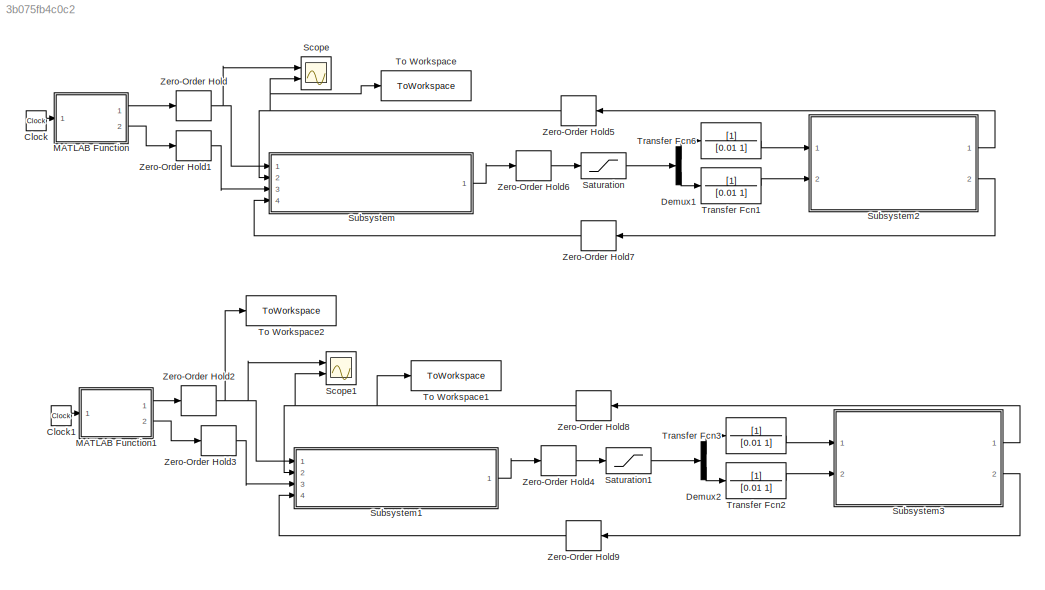
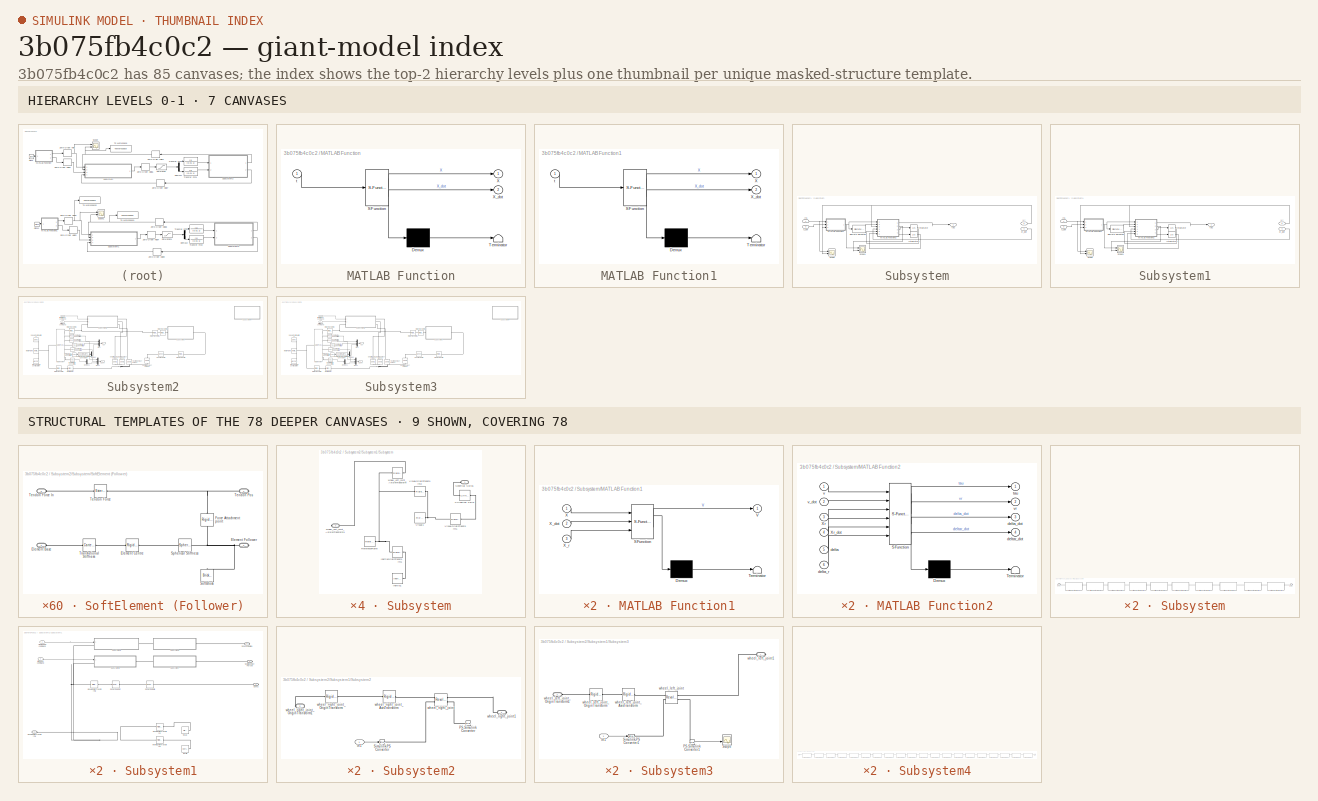
[diagram: thumbnail index - top-2 hierarchy levels (7 canvases) + 9 structural-template representatives of the remaining 78 canvases]
MODEL slx_3b075fb4c0c2
KIND model
CONFIG AbsTol = auto
CONFIG EnableMultiTasking = off
CONFIG FixedStep = 0.001
CONFIG MaxStep = auto
CONFIG MinStep = auto
CONFIG RelTol = 1e-3
CONFIG SampleTimeConstraint = Unconstrained
CONFIG SolverName = VariableStepAuto
CONFIG StartTime = 0.0
CONFIG StopTime = 50
BLOCK [Clock] Clock
BLOCK [Clock] Clock1
BLOCK [Demux] Demux1
  Outputs = 2
  Ports = [1, 2]
BLOCK [Demux] Demux2
  Outputs = 2
  Ports = [1, 2]
BLOCK [SubSystem] MATLAB Function
  ErrorFcn = Stateflow.Translate.translate
  PermitHierarchicalResolution = ExplicitOnly
  Ports = [1, 2]
  RequestExecContextInheritance = off
  SFBlockType = MATLAB Function
  TreatAsAtomicUnit = on
BLOCK [Demux] MATLAB Function/ Demux 
  Outputs = 1
  Ports = [1, 1]
BLOCK [S-Function] MATLAB Function/ SFunction 
  EnableBusSupport = on
  FunctionName = sf_sfun
  PortCounts = [1 3]
  Ports = [1, 3]
  SFcnIsStateOwnerBlock = off
  SFunctionDeploymentMode = off
  Tag = Stateflow S-Function 2
BLOCK [Terminator] MATLAB Function/ Terminator 
BLOCK [Outport] MATLAB Function/X
BLOCK [Outport] MATLAB Function/X_dot
  Port = 2
BLOCK [Inport] MATLAB Function/t
BLOCK [SubSystem] MATLAB Function1
  ErrorFcn = Stateflow.Translate.translate
  PermitHierarchicalResolution = ExplicitOnly
  Ports = [1, 2]
  RequestExecContextInheritance = off
  SFBlockType = MATLAB Function
  TreatAsAtomicUnit = on
BLOCK [Demux] MATLAB Function1/ Demux 
  Outputs = 1
  Ports = [1, 1]
BLOCK [S-Function] MATLAB Function1/ SFunction 
  EnableBusSupport = on
  FunctionName = sf_sfun
  PortCounts = [1 3]
  Ports = [1, 3]
  SFcnIsStateOwnerBlock = off
  SFunctionDeploymentMode = off
  Tag = Stateflow S-Function 4
BLOCK [Terminator] MATLAB Function1/ Terminator 
BLOCK [Outport] MATLAB Function1/X
BLOCK [Outport] MATLAB Function1/X_dot
  Port = 2
BLOCK [Inport] MATLAB Function1/t
BLOCK [Saturate] Saturation
  LowerLimit = -4.8
  UpperLimit = 4.8
BLOCK [Saturate] Saturation1
  LowerLimit = -4.8
  UpperLimit = 4.8
BLOCK [Scope] Scope
  Floating = off
  NumInputPorts = 2
  Ports = [2]
  ScopeSpecificationString = Simulink.scopes.TimeScopeBlockCfg('CurrentConfiguration', extmgr.ConfigurationSet(extmgr.Configuration('Core','General UI',true),extmgr.Configuration('Core','Source UI',true),extmgr.Configuration('Sources','WiredSimulink',true,'DataLoggingVariableName','ScopeData1'),extmgr.Configuration('Visuals','Time Domain',true,'SerializedDisplays',{struct('MinYLimReal','-0.37916','MaxYLimReal','3.41185','YLab...<+1670ch>
BLOCK [Scope] Scope1
  Floating = off
  NumInputPorts = 2
  Ports = [2]
  ScopeSpecificationString = Simulink.scopes.TimeScopeBlockCfg('CurrentConfiguration', extmgr.ConfigurationSet(extmgr.Configuration('Core','General UI',true),extmgr.Configuration('Core','Source UI',true),extmgr.Configuration('Sources','WiredSimulink',true,'DataLoggingVariableName','ScopeData2'),extmgr.Configuration('Visuals','Time Domain',true,'SerializedDisplays',{struct('MinYLimReal','-0.3747','MaxYLimReal','3.37186','YLabe...<+1657ch>
BLOCK [SubSystem] Subsystem
  Ports = [4, 1]
  RequestExecContextInheritance = off
BLOCK [Reference] Subsystem/Discrete Derivative  REF=simulink/Discrete/Discrete Derivative
  NameLocation = right
  Ports = [1, 1]
  SourceBlock = simulink/Discrete/Discrete Derivative
  SourceProductBaseCode = SL
  SourceType = Discrete Derivative
BLOCK [Inport] Subsystem/In1
BLOCK [Integrator] Subsystem/Integrator
  InitialCondition = zeros(2,2)
  Ports = [1, 1]
BLOCK [Integrator] Subsystem/Integrator1
  InitialCondition = zeros(2,2)
  Ports = [1, 1]
BLOCK [SubSystem] Subsystem/MATLAB Function1
  ErrorFcn = Stateflow.Translate.translate
  PermitHierarchicalResolution = ExplicitOnly
  Ports = [3, 1]
  RequestExecContextInheritance = off
  SFBlockType = MATLAB Function
  TreatAsAtomicUnit = on
BLOCK [Demux] Subsystem/MATLAB Function1/ Demux 
  Outputs = 1
  Ports = [1, 1]
BLOCK [S-Function] Subsystem/MATLAB Function1/ SFunction 
  EnableBusSupport = on
  FunctionName = sf_sfun
  PortCounts = [3 2]
  Ports = [3, 2]
  SFcnIsStateOwnerBlock = off
  SFunctionDeploymentMode = off
  Tag = Stateflow S-Function 1
BLOCK [Terminator] Subsystem/MATLAB Function1/ Terminator 
BLOCK [Outport] Subsystem/MATLAB Function1/V
BLOCK [Inport] Subsystem/MATLAB Function1/X
BLOCK [Inport] Subsystem/MATLAB Function1/X_dot
  Port = 2
BLOCK [Inport] Subsystem/MATLAB Function1/X_r
  Port = 3
BLOCK [SubSystem] Subsystem/MATLAB Function2
  ErrorFcn = Stateflow.Translate.translate
  PermitHierarchicalResolution = ExplicitOnly
  Ports = [6, 4]
  RequestExecContextInheritance = off
  SFBlockType = MATLAB Function
  TreatAsAtomicUnit = on
BLOCK [Demux] Subsystem/MATLAB Function2/ Demux 
  Outputs = 1
  Ports = [1, 1]
BLOCK [S-Function] Subsystem/MATLAB Function2/ SFunction 
  EnableBusSupport = on
  FunctionName = sf_sfun
  PortCounts = [6 5]
  Ports = [6, 5]
  SFcnIsStateOwnerBlock = off
  SFunctionDeploymentMode = off
  Tag = Stateflow S-Function 3
BLOCK [Terminator] Subsystem/MATLAB Function2/ Terminator 
BLOCK [Inport] Subsystem/MATLAB Function2/Xr
  Port = 3
BLOCK [Inport] Subsystem/MATLAB Function2/Xr_dot
  Port = 4
BLOCK [Inport] Subsystem/MATLAB Function2/delta
  Port = 5
BLOCK [Outport] Subsystem/MATLAB Function2/delta_dot
  Port = 3
BLOCK [Inport] Subsystem/MATLAB Function2/delta_r
  Port = 6
BLOCK [Outport] Subsystem/MATLAB Function2/deltar_dot
  Port = 4
BLOCK [Outport] Subsystem/MATLAB Function2/tau
BLOCK [Inport] Subsystem/MATLAB Function2/v
BLOCK [Inport] Subsystem/MATLAB Function2/v_dot
  Port = 2
BLOCK [Outport] Subsystem/MATLAB Function2/vr
  Port = 2
BLOCK [Scope] Subsystem/Scope
  Floating = off
  NumInputPorts = 2
  Ports = [2]
  ScopeSpecificationString = Simulink.scopes.TimeScopeBlockCfg('CurrentConfiguration', extmgr.ConfigurationSet(extmgr.Configuration('Core','General UI',true),extmgr.Configuration('Core','Source UI',true),extmgr.Configuration('Sources','WiredSimulink',true),extmgr.Configuration('Visuals','Time Domain',true,'SerializedDisplays',{struct('MinYLimReal','-0.43781','MaxYLimReal','3.65999','YLabelReal','','MinYLimMag','0.00000','MaxY...<+1568ch>
BLOCK [Scope] Subsystem/Scope1
  Floating = off
  NumInputPorts = 2
  Ports = [2]
  ScopeSpecificationString = Simulink.scopes.TimeScopeBlockCfg('CurrentConfiguration', extmgr.ConfigurationSet(extmgr.Configuration('Core','General UI',true),extmgr.Configuration('Core','Source UI',true),extmgr.Configuration('Sources','WiredSimulink',true,'DataLoggingVariableName','ScopeData1'),extmgr.Configuration('Visuals','Time Domain',true,'SerializedDisplays',{struct('MinYLimReal','-0.21859','MaxYLimReal','1.87163','YLab...<+1684ch>
BLOCK [Inport] Subsystem/X_dot
  Port = 3
BLOCK [Inport] Subsystem/X_r
  Port = 2
BLOCK [Inport] Subsystem/Xr_dot
  Port = 4
BLOCK [Outport] Subsystem/tau
BLOCK [SubSystem] Subsystem1
  Ports = [4, 1]
  RequestExecContextInheritance = off
BLOCK [Reference] Subsystem1/Discrete Derivative  REF=simulink/Discrete/Discrete Derivative
  NameLocation = right
  Ports = [1, 1]
  SourceBlock = simulink/Discrete/Discrete Derivative
  SourceProductBaseCode = SL
  SourceType = Discrete Derivative
BLOCK [Inport] Subsystem1/In1
BLOCK [Integrator] Subsystem1/Integrator
  InitialCondition = zeros(2,2)
  Ports = [1, 1]
BLOCK [Integrator] Subsystem1/Integrator1
  InitialCondition = zeros(2,2)
  Ports = [1, 1]
BLOCK [SubSystem] Subsystem1/MATLAB Function1
  ErrorFcn = Stateflow.Translate.translate
  PermitHierarchicalResolution = ExplicitOnly
  Ports = [3, 1]
  RequestExecContextInheritance = off
  SFBlockType = MATLAB Function
  TreatAsAtomicUnit = on
BLOCK [Demux] Subsystem1/MATLAB Function1/ Demux 
  Outputs = 1
  Ports = [1, 1]
BLOCK [S-Function] Subsystem1/MATLAB Function1/ SFunction 
  EnableBusSupport = on
  FunctionName = sf_sfun
  PortCounts = [3 2]
  Ports = [3, 2]
  SFcnIsStateOwnerBlock = off
  SFunctionDeploymentMode = off
  Tag = Stateflow S-Function 5
BLOCK [Terminator] Subsystem1/MATLAB Function1/ Terminator 
BLOCK [Outport] Subsystem1/MATLAB Function1/V
BLOCK [Inport] Subsystem1/MATLAB Function1/X
BLOCK [Inport] Subsystem1/MATLAB Function1/X_dot
  Port = 2
BLOCK [Inport] Subsystem1/MATLAB Function1/X_r
  Port = 3
BLOCK [SubSystem] Subsystem1/MATLAB Function2
  ErrorFcn = Stateflow.Translate.translate
  PermitHierarchicalResolution = ExplicitOnly
  Ports = [6, 4]
  RequestExecContextInheritance = off
  SFBlockType = MATLAB Function
  TreatAsAtomicUnit = on
BLOCK [Demux] Subsystem1/MATLAB Function2/ Demux 
  Outputs = 1
  Ports = [1, 1]
BLOCK [S-Function] Subsystem1/MATLAB Function2/ SFunction 
  EnableBusSupport = on
  FunctionName = sf_sfun
  PortCounts = [6 5]
  Ports = [6, 5]
  SFcnIsStateOwnerBlock = off
  SFunctionDeploymentMode = off
  Tag = Stateflow S-Function 6
BLOCK [Terminator] Subsystem1/MATLAB Function2/ Terminator 
BLOCK [Inport] Subsystem1/MATLAB Function2/Xr
  Port = 3
BLOCK [Inport] Subsystem1/MATLAB Function2/Xr_dot
  Port = 4
BLOCK [Inport] Subsystem1/MATLAB Function2/delta
  Port = 5
BLOCK [Outport] Subsystem1/MATLAB Function2/delta_dot
  Port = 3
BLOCK [Inport] Subsystem1/MATLAB Function2/delta_r
  Port = 6
BLOCK [Outport] Subsystem1/MATLAB Function2/deltar_dot
  Port = 4
BLOCK [Outport] Subsystem1/MATLAB Function2/tau
BLOCK [Inport] Subsystem1/MATLAB Function2/v
BLOCK [Inport] Subsystem1/MATLAB Function2/v_dot
  Port = 2
BLOCK [Outport] Subsystem1/MATLAB Function2/vr
  Port = 2
BLOCK [Scope] Subsystem1/Scope
  Floating = off
  NumInputPorts = 2
  Ports = [2]
  ScopeSpecificationString = Simulink.scopes.TimeScopeBlockCfg('CurrentConfiguration', extmgr.ConfigurationSet(extmgr.Configuration('Core','General UI',true),extmgr.Configuration('Core','Source UI',true),extmgr.Configuration('Sources','WiredSimulink',true),extmgr.Configuration('Visuals','Time Domain',true,'SerializedDisplays',{struct('MinYLimReal','-0.43781','MaxYLimReal','3.65999','YLabelReal','','MinYLimMag','0.00000','MaxY...<+1568ch>
BLOCK [Scope] Subsystem1/Scope1
  Floating = off
  NumInputPorts = 2
  Ports = [2]
  ScopeSpecificationString = Simulink.scopes.TimeScopeBlockCfg('CurrentConfiguration', extmgr.ConfigurationSet(extmgr.Configuration('Core','General UI',true),extmgr.Configuration('Core','Source UI',true),extmgr.Configuration('Sources','WiredSimulink',true,'DataLoggingVariableName','ScopeData1'),extmgr.Configuration('Visuals','Time Domain',true,'SerializedDisplays',{struct('MinYLimReal','-1.16225','MaxYLimReal','1.51886','YLab...<+1684ch>
BLOCK [Inport] Subsystem1/X_dot
  Port = 3
BLOCK [Inport] Subsystem1/X_r
  Port = 2
BLOCK [Inport] Subsystem1/Xr_dot
  Port = 4
BLOCK [Outport] Subsystem1/tau
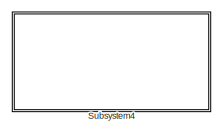
[diagram: Subsystem2 - part 1/2, top right region]
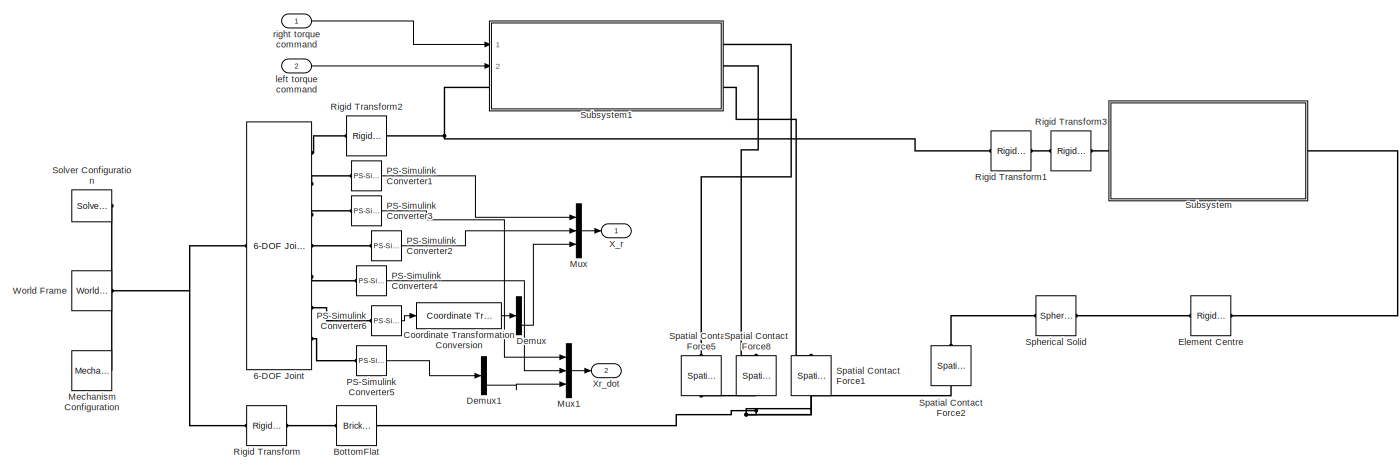
[diagram: Subsystem2 - part 2/2, most of the canvas]
BLOCK [SubSystem] Subsystem2
  Ports = [2, 2]
  RequestExecContextInheritance = off
BLOCK [Reference] Subsystem2/6-DOF Joint  REF=sm_lib/Joints/6-DOF Joint
  NameLocation = top
  Ports = [0, 0, 0, 0, 0, 1, 7]
  SourceBlock = sm_lib/Joints/6-DOF Joint
  SourceProductBaseCode = MS
  SourceType = 6-DOF Joint
BLOCK [Reference] Subsystem2/BottomFlat  REF=sm_lib/Body Elements/Brick Solid
  Ports = [0, 0, 0, 0, 0, 1, 1]
  SourceBlock = sm_lib/Body Elements/Brick Solid
  SourceProductBaseCode = MS
  SourceType = Brick Solid
BLOCK [Reference] Subsystem2/Coordinate Transformation Conversion  REF=robotcorelib/Coordinate Transformation Conversion
  Ports = [1, 1]
  SourceBlock = robotcorelib/Coordinate Transformation Conversion
  SourceProductBaseCode = NV,RO,RR,UV
  SourceType = robotics.slcore.internal.block.CoordinateTransformationConversion
BLOCK [Demux] Subsystem2/Demux
  Outputs = 3
  Ports = [1, 3]
BLOCK [Demux] Subsystem2/Demux1
  Outputs = 3
  Ports = [1, 3]
BLOCK [Reference] Subsystem2/Element Centre  REF=sm_lib/Frames and
Transforms/Rigid
Transform
  Ports = [0, 0, 0, 0, 0, 1, 1]
  SourceBlock = sm_lib/Frames and\nTransforms/Rigid\nTransform
  SourceProductBaseCode = MS
  SourceType = Rigid\nTransform
BLOCK [Reference] Subsystem2/Mechanism Configuration  REF=sm_lib/Utilities/Mechanism
Configuration
  Ports = [0, 0, 0, 0, 0, 0, 1]
  SourceBlock = sm_lib/Utilities/Mechanism\nConfiguration
  SourceProductBaseCode = MS
  SourceType = Mechanism\nConfiguration
BLOCK [Mux] Subsystem2/Mux
  DisplayOption = bar
  Inputs = 3
  Ports = [3, 1]
BLOCK [Mux] Subsystem2/Mux1
  DisplayOption = bar
  Inputs = 3
  Ports = [3, 1]
BLOCK [Reference] Subsystem2/PS-Simulink Converter1  REF=nesl_utility/PS-Simulink
Converter
  Ports = [0, 1, 0, 0, 0, 1]
  SourceBlock = nesl_utility/PS-Simulink\nConverter
  SourceProductBaseCode = PW,SS
  SourceType = PS-Simulink\nConverter
BLOCK [Reference] Subsystem2/PS-Simulink Converter2  REF=nesl_utility/PS-Simulink
Converter
  Ports = [0, 1, 0, 0, 0, 1]
  SourceBlock = nesl_utility/PS-Simulink\nConverter
  SourceProductBaseCode = PW,SS
  SourceType = PS-Simulink\nConverter
BLOCK [Reference] Subsystem2/PS-Simulink Converter3  REF=nesl_utility/PS-Simulink
Converter
  Ports = [0, 1, 0, 0, 0, 1]
  SourceBlock = nesl_utility/PS-Simulink\nConverter
  SourceProductBaseCode = PW,SS
  SourceType = PS-Simulink\nConverter
BLOCK [Reference] Subsystem2/PS-Simulink Converter4  REF=nesl_utility/PS-Simulink
Converter
  Ports = [0, 1, 0, 0, 0, 1]
  SourceBlock = nesl_utility/PS-Simulink\nConverter
  SourceProductBaseCode = PW,SS
  SourceType = PS-Simulink\nConverter
BLOCK [Reference] Subsystem2/PS-Simulink Converter5  REF=nesl_utility/PS-Simulink
Converter
  Ports = [0, 1, 0, 0, 0, 1]
  SourceBlock = nesl_utility/PS-Simulink\nConverter
  SourceProductBaseCode = PW,SS
  SourceType = PS-Simulink\nConverter
BLOCK [Reference] Subsystem2/PS-Simulink Converter6  REF=nesl_utility/PS-Simulink
Converter
  Ports = [0, 1, 0, 0, 0, 1]
  SourceBlock = nesl_utility/PS-Simulink\nConverter
  SourceProductBaseCode = PW,SS
  SourceType = PS-Simulink\nConverter
BLOCK [Reference] Subsystem2/Rigid Transform  REF=sm_lib/Frames and
Transforms/Rigid
Transform
  Ports = [0, 0, 0, 0, 0, 1, 1]
  SourceBlock = sm_lib/Frames and\nTransforms/Rigid\nTransform
  SourceProductBaseCode = MS
  SourceType = Rigid\nTransform
BLOCK [Reference] Subsystem2/Rigid Transform1  REF=sm_lib/Frames and
Transforms/Rigid
Transform
  Ports = [0, 0, 0, 0, 0, 1, 1]
  SourceBlock = sm_lib/Frames and\nTransforms/Rigid\nTransform
  SourceProductBaseCode = MS
  SourceType = Rigid\nTransform
BLOCK [Reference] Subsystem2/Rigid Transform2  REF=sm_lib/Frames and
Transforms/Rigid
Transform
  Ports = [0, 0, 0, 0, 0, 1, 1]
  SourceBlock = sm_lib/Frames and\nTransforms/Rigid\nTransform
  SourceProductBaseCode = MS
  SourceType = Rigid\nTransform
BLOCK [Reference] Subsystem2/Rigid Transform3  REF=sm_lib/Frames and
Transforms/Rigid
Transform
  Ports = [0, 0, 0, 0, 0, 1, 1]
  SourceBlock = sm_lib/Frames and\nTransforms/Rigid\nTransform
  SourceProductBaseCode = MS
  SourceType = Rigid\nTransform
BLOCK [Reference] Subsystem2/Solver Configuration  REF=nesl_utility/Solver
Configuration
  Ports = [0, 0, 0, 0, 0, 0, 1]
  SourceBlock = nesl_utility/Solver\nConfiguration
  SourceProductBaseCode = PW,SS
  SourceType = Solver\nConfiguration
BLOCK [Reference] Subsystem2/Spatial Contact Force1  REF=sm_lib/Forces and
Torques/Spatial
Contact Force
  NameLocation = right
  Ports = [0, 0, 0, 0, 0, 1, 1]
  SourceBlock = sm_lib/Forces and\nTorques/Spatial\nContact Force
  SourceProductBaseCode = MS
  SourceType = Spatial\nContact Force
BLOCK [Reference] Subsystem2/Spatial Contact Force2  REF=sm_lib/Forces and
Torques/Spatial
Contact Force
  NameLocation = right
  Ports = [0, 0, 0, 0, 0, 1, 1]
  SourceBlock = sm_lib/Forces and\nTorques/Spatial\nContact Force
  SourceProductBaseCode = MS
  SourceType = Spatial\nContact Force
BLOCK [Reference] Subsystem2/Spatial Contact Force5  REF=sm_lib/Forces and
Torques/Spatial
Contact Force
  NameLocation = right
  Ports = [0, 0, 0, 0, 0, 1, 1]
  SourceBlock = sm_lib/Forces and\nTorques/Spatial\nContact Force
  SourceProductBaseCode = MS
  SourceType = Spatial\nContact Force
BLOCK [Reference] Subsystem2/Spatial Contact Force8  REF=sm_lib/Forces and
Torques/Spatial
Contact Force
  NameLocation = right
  Ports = [0, 0, 0, 0, 0, 1, 1]
  SourceBlock = sm_lib/Forces and\nTorques/Spatial\nContact Force
  SourceProductBaseCode = MS
  SourceType = Spatial\nContact Force
BLOCK [Reference] Subsystem2/Spherical Solid  REF=sm_lib/Body Elements/Spherical Solid
  Ports = [0, 0, 0, 0, 0, 1, 1]
  SourceBlock = sm_lib/Body Elements/Spherical Solid
  SourceProductBaseCode = MS
  SourceType = Spherical Solid
BLOCK [SubSystem] Subsystem2/Subsystem
  Ports = [0, 0, 0, 0, 0, 1, 1]
  RequestExecContextInheritance = off
BLOCK [PMIOPort] Subsystem2/Subsystem/Body
  Side = Left
BLOCK [SubSystem] Subsystem2/Subsystem/SoftElement (Follower)
  Ports = [0, 0, 0, 0, 0, 2, 2]
  RequestExecContextInheritance = off
BLOCK [PMIOPort] Subsystem2/Subsystem/SoftElement (Follower)/Element Base
  Side = Left
BLOCK [Reference] Subsystem2/Subsystem/SoftElement (Follower)/Element Centre  REF=sm_lib/Frames and
Transforms/Rigid
Transform
  Ports = [0, 0, 0, 0, 0, 1, 1]
  SourceBlock = sm_lib/Frames and\nTransforms/Rigid\nTransform
  SourceProductBaseCode = MS
  SourceType = Rigid\nTransform
BLOCK [PMIOPort] Subsystem2/Subsystem/SoftElement (Follower)/Element Follower
  Port = 2
  Side = Right
BLOCK [Reference] Subsystem2/Subsystem/SoftElement (Follower)/Force Attachment point  REF=sm_lib/Frames and
Transforms/Rigid
Transform
  NameLocation = right
  Ports = [0, 0, 0, 0, 0, 1, 1]
  SourceBlock = sm_lib/Frames and\nTransforms/Rigid\nTransform
  SourceProductBaseCode = MS
  SourceType = Rigid\nTransform
BLOCK [Reference] Subsystem2/Subsystem/SoftElement (Follower)/SoftBlock  REF=sm_lib/Body Elements/Brick Solid
  NameLocation = right
  Ports = [0, 0, 0, 0, 0, 0, 1]
  SourceBlock = sm_lib/Body Elements/Brick Solid
  SourceProductBaseCode = MS
  SourceType = Brick Solid
BLOCK [Reference] Subsystem2/Subsystem/SoftElement (Follower)/Spherical Stiffness  REF=sm_lib/Joints/Spherical
Joint
  Ports = [0, 0, 0, 0, 0, 1, 1]
  SourceBlock = sm_lib/Joints/Spherical\nJoint
  SourceProductBaseCode = MS
  SourceType = Spherical\nJoint
BLOCK [Reference] Subsystem2/Subsystem/SoftElement (Follower)/Tendon Force  REF=sm_lib/Forces and
Torques/External Force
and Torque
  Ports = [0, 0, 0, 0, 0, 1, 1]
  SourceBlock = sm_lib/Forces and\nTorques/External Force\nand Torque
  SourceProductBaseCode = MS
  SourceType = External Force\nand Torque
BLOCK [PMIOPort] Subsystem2/Subsystem/SoftElement (Follower)/Tendon Force In
  Port = 3
  Side = Left
BLOCK [PMIOPort] Subsystem2/Subsystem/SoftElement (Follower)/Tendon Pos
  Port = 4
  Side = Right
BLOCK [Reference] Subsystem2/Subsystem/SoftElement (Follower)/Translational Stiffness  REF=sm_lib/Joints/Cartesian
Joint
  Ports = [0, 0, 0, 0, 0, 1, 1]
  SourceBlock = sm_lib/Joints/Cartesian\nJoint
  SourceProductBaseCode = MS
  SourceType = Cartesian\nJoint
BLOCK [SubSystem] Subsystem2/Subsystem/SoftElement (Follower)1
  Ports = [0, 0, 0, 0, 0, 2, 2]
  RequestExecContextInheritance = off
BLOCK [PMIOPort] Subsystem2/Subsystem/SoftElement (Follower)1/Element Base
  Side = Left
BLOCK [Reference] Subsystem2/Subsystem/SoftElement (Follower)1/Element Centre  REF=sm_lib/Frames and
Transforms/Rigid
Transform
  Ports = [0, 0, 0, 0, 0, 1, 1]
  SourceBlock = sm_lib/Frames and\nTransforms/Rigid\nTransform
  SourceProductBaseCode = MS
  SourceType = Rigid\nTransform
BLOCK [PMIOPort] Subsystem2/Subsystem/SoftElement (Follower)1/Element Follower
  Port = 2
  Side = Right
BLOCK [Reference] Subsystem2/Subsystem/SoftElement (Follower)1/Force Attachment point  REF=sm_lib/Frames and
Transforms/Rigid
Transform
  NameLocation = right
  Ports = [0, 0, 0, 0, 0, 1, 1]
  SourceBlock = sm_lib/Frames and\nTransforms/Rigid\nTransform
  SourceProductBaseCode = MS
  SourceType = Rigid\nTransform
BLOCK [Reference] Subsystem2/Subsystem/SoftElement (Follower)1/SoftBlock  REF=sm_lib/Body Elements/Brick Solid
  NameLocation = right
  Ports = [0, 0, 0, 0, 0, 0, 1]
  SourceBlock = sm_lib/Body Elements/Brick Solid
  SourceProductBaseCode = MS
  SourceType = Brick Solid
BLOCK [Reference] Subsystem2/Subsystem/SoftElement (Follower)1/Spherical Stiffness  REF=sm_lib/Joints/Spherical
Joint
  Ports = [0, 0, 0, 0, 0, 1, 1]
  SourceBlock = sm_lib/Joints/Spherical\nJoint
  SourceProductBaseCode = MS
  SourceType = Spherical\nJoint
BLOCK [Reference] Subsystem2/Subsystem/SoftElement (Follower)1/Tendon Force  REF=sm_lib/Forces and
Torques/External Force
and Torque
  Ports = [0, 0, 0, 0, 0, 1, 1]
  SourceBlock = sm_lib/Forces and\nTorques/External Force\nand Torque
  SourceProductBaseCode = MS
  SourceType = External Force\nand Torque
BLOCK [PMIOPort] Subsystem2/Subsystem/SoftElement (Follower)1/Tendon Force In
  Port = 3
  Side = Left
BLOCK [PMIOPort] Subsystem2/Subsystem/SoftElement (Follower)1/Tendon Pos
  Port = 4
  Side = Right
BLOCK [Reference] Subsystem2/Subsystem/SoftElement (Follower)1/Translational Stiffness  REF=sm_lib/Joints/Cartesian
Joint
  Ports = [0, 0, 0, 0, 0, 1, 1]
  SourceBlock = sm_lib/Joints/Cartesian\nJoint
  SourceProductBaseCode = MS
  SourceType = Cartesian\nJoint
BLOCK [SubSystem] Subsystem2/Subsystem/SoftElement (Follower)2
  Ports = [0, 0, 0, 0, 0, 2, 2]
  RequestExecContextInheritance = off
BLOCK [PMIOPort] Subsystem2/Subsystem/SoftElement (Follower)2/Element Base
  Side = Left
BLOCK [Reference] Subsystem2/Subsystem/SoftElement (Follower)2/Element Centre  REF=sm_lib/Frames and
Transforms/Rigid
Transform
  Ports = [0, 0, 0, 0, 0, 1, 1]
  SourceBlock = sm_lib/Frames and\nTransforms/Rigid\nTransform
  SourceProductBaseCode = MS
  SourceType = Rigid\nTransform
BLOCK [PMIOPort] Subsystem2/Subsystem/SoftElement (Follower)2/Element Follower
  Port = 2
  Side = Right
BLOCK [Reference] Subsystem2/Subsystem/SoftElement (Follower)2/Force Attachment point  REF=sm_lib/Frames and
Transforms/Rigid
Transform
  NameLocation = right
  Ports = [0, 0, 0, 0, 0, 1, 1]
  SourceBlock = sm_lib/Frames and\nTransforms/Rigid\nTransform
  SourceProductBaseCode = MS
  SourceType = Rigid\nTransform
BLOCK [Reference] Subsystem2/Subsystem/SoftElement (Follower)2/SoftBlock  REF=sm_lib/Body Elements/Brick Solid
  NameLocation = right
  Ports = [0, 0, 0, 0, 0, 0, 1]
  SourceBlock = sm_lib/Body Elements/Brick Solid
  SourceProductBaseCode = MS
  SourceType = Brick Solid
BLOCK [Reference] Subsystem2/Subsystem/SoftElement (Follower)2/Spherical Stiffness  REF=sm_lib/Joints/Spherical
Joint
  Ports = [0, 0, 0, 0, 0, 1, 1]
  SourceBlock = sm_lib/Joints/Spherical\nJoint
  SourceProductBaseCode = MS
  SourceType = Spherical\nJoint
BLOCK [Reference] Subsystem2/Subsystem/SoftElement (Follower)2/Tendon Force  REF=sm_lib/Forces and
Torques/External Force
and Torque
  Ports = [0, 0, 0, 0, 0, 1, 1]
  SourceBlock = sm_lib/Forces and\nTorques/External Force\nand Torque
  SourceProductBaseCode = MS
  SourceType = External Force\nand Torque
BLOCK [PMIOPort] Subsystem2/Subsystem/SoftElement (Follower)2/Tendon Force In
  Port = 3
  Side = Left
BLOCK [PMIOPort] Subsystem2/Subsystem/SoftElement (Follower)2/Tendon Pos
  Port = 4
  Side = Right
BLOCK [Reference] Subsystem2/Subsystem/SoftElement (Follower)2/Translational Stiffness  REF=sm_lib/Joints/Cartesian
Joint
  Ports = [0, 0, 0, 0, 0, 1, 1]
  SourceBlock = sm_lib/Joints/Cartesian\nJoint
  SourceProductBaseCode = MS
  SourceType = Cartesian\nJoint
BLOCK [SubSystem] Subsystem2/Subsystem/SoftElement (Follower)3
  Ports = [0, 0, 0, 0, 0, 2, 2]
  RequestExecContextInheritance = off
BLOCK [PMIOPort] Subsystem2/Subsystem/SoftElement (Follower)3/Element Base
  Side = Left
BLOCK [Reference] Subsystem2/Subsystem/SoftElement (Follower)3/Element Centre  REF=sm_lib/Frames and
Transforms/Rigid
Transform
  Ports = [0, 0, 0, 0, 0, 1, 1]
  SourceBlock = sm_lib/Frames and\nTransforms/Rigid\nTransform
  SourceProductBaseCode = MS
  SourceType = Rigid\nTransform
BLOCK [PMIOPort] Subsystem2/Subsystem/SoftElement (Follower)3/Element Follower
  Port = 2
  Side = Right
BLOCK [Reference] Subsystem2/Subsystem/SoftElement (Follower)3/Force Attachment point  REF=sm_lib/Frames and
Transforms/Rigid
Transform
  NameLocation = right
  Ports = [0, 0, 0, 0, 0, 1, 1]
  SourceBlock = sm_lib/Frames and\nTransforms/Rigid\nTransform
  SourceProductBaseCode = MS
  SourceType = Rigid\nTransform
BLOCK [Reference] Subsystem2/Subsystem/SoftElement (Follower)3/SoftBlock  REF=sm_lib/Body Elements/Brick Solid
  NameLocation = right
  Ports = [0, 0, 0, 0, 0, 0, 1]
  SourceBlock = sm_lib/Body Elements/Brick Solid
  SourceProductBaseCode = MS
  SourceType = Brick Solid
BLOCK [Reference] Subsystem2/Subsystem/SoftElement (Follower)3/Spherical Stiffness  REF=sm_lib/Joints/Spherical
Joint
  Ports = [0, 0, 0, 0, 0, 1, 1]
  SourceBlock = sm_lib/Joints/Spherical\nJoint
  SourceProductBaseCode = MS
  SourceType = Spherical\nJoint
BLOCK [Reference] Subsystem2/Subsystem/SoftElement (Follower)3/Tendon Force  REF=sm_lib/Forces and
Torques/External Force
and Torque
  Ports = [0, 0, 0, 0, 0, 1, 1]
  SourceBlock = sm_lib/Forces and\nTorques/External Force\nand Torque
  SourceProductBaseCode = MS
  SourceType = External Force\nand Torque
BLOCK [PMIOPort] Subsystem2/Subsystem/SoftElement (Follower)3/Tendon Force In
  Port = 3
  Side = Left
BLOCK [PMIOPort] Subsystem2/Subsystem/SoftElement (Follower)3/Tendon Pos
  Port = 4
  Side = Right
BLOCK [Reference] Subsystem2/Subsystem/SoftElement (Follower)3/Translational Stiffness  REF=sm_lib/Joints/Cartesian
Joint
  Ports = [0, 0, 0, 0, 0, 1, 1]
  SourceBlock = sm_lib/Joints/Cartesian\nJoint
  SourceProductBaseCode = MS
  SourceType = Cartesian\nJoint
BLOCK [SubSystem] Subsystem2/Subsystem/SoftElement (Follower)4
  Ports = [0, 0, 0, 0, 0, 2, 2]
  RequestExecContextInheritance = off
BLOCK [PMIOPort] Subsystem2/Subsystem/SoftElement (Follower)4/Element Base
  Side = Left
BLOCK [Reference] Subsystem2/Subsystem/SoftElement (Follower)4/Element Centre  REF=sm_lib/Frames and
Transforms/Rigid
Transform
  Ports = [0, 0, 0, 0, 0, 1, 1]
  SourceBlock = sm_lib/Frames and\nTransforms/Rigid\nTransform
  SourceProductBaseCode = MS
  SourceType = Rigid\nTransform
BLOCK [PMIOPort] Subsystem2/Subsystem/SoftElement (Follower)4/Element Follower
  Port = 2
  Side = Right
BLOCK [Reference] Subsystem2/Subsystem/SoftElement (Follower)4/Force Attachment point  REF=sm_lib/Frames and
Transforms/Rigid
Transform
  NameLocation = right
  Ports = [0, 0, 0, 0, 0, 1, 1]
  SourceBlock = sm_lib/Frames and\nTransforms/Rigid\nTransform
  SourceProductBaseCode = MS
  SourceType = Rigid\nTransform
BLOCK [Reference] Subsystem2/Subsystem/SoftElement (Follower)4/SoftBlock  REF=sm_lib/Body Elements/Brick Solid
  NameLocation = right
  Ports = [0, 0, 0, 0, 0, 0, 1]
  SourceBlock = sm_lib/Body Elements/Brick Solid
  SourceProductBaseCode = MS
  SourceType = Brick Solid
BLOCK [Reference] Subsystem2/Subsystem/SoftElement (Follower)4/Spherical Stiffness  REF=sm_lib/Joints/Spherical
Joint
  Ports = [0, 0, 0, 0, 0, 1, 1]
  SourceBlock = sm_lib/Joints/Spherical\nJoint
  SourceProductBaseCode = MS
  SourceType = Spherical\nJoint
BLOCK [Reference] Subsystem2/Subsystem/SoftElement (Follower)4/Tendon Force  REF=sm_lib/Forces and
Torques/External Force
and Torque
  Ports = [0, 0, 0, 0, 0, 1, 1]
  SourceBlock = sm_lib/Forces and\nTorques/External Force\nand Torque
  SourceProductBaseCode = MS
  SourceType = External Force\nand Torque
BLOCK [PMIOPort] Subsystem2/Subsystem/SoftElement (Follower)4/Tendon Force In
  Port = 3
  Side = Left
BLOCK [PMIOPort] Subsystem2/Subsystem/SoftElement (Follower)4/Tendon Pos
  Port = 4
  Side = Right
BLOCK [Reference] Subsystem2/Subsystem/SoftElement (Follower)4/Translational Stiffness  REF=sm_lib/Joints/Cartesian
Joint
  Ports = [0, 0, 0, 0, 0, 1, 1]
  SourceBlock = sm_lib/Joints/Cartesian\nJoint
  SourceProductBaseCode = MS
  SourceType = Cartesian\nJoint
BLOCK [SubSystem] Subsystem2/Subsystem/SoftElement (Follower)5
  Ports = [0, 0, 0, 0, 0, 2, 2]
  RequestExecContextInheritance = off
BLOCK [PMIOPort] Subsystem2/Subsystem/SoftElement (Follower)5/Element Base
  Side = Left
BLOCK [Reference] Subsystem2/Subsystem/SoftElement (Follower)5/Element Centre  REF=sm_lib/Frames and
Transforms/Rigid
Transform
  Ports = [0, 0, 0, 0, 0, 1, 1]
  SourceBlock = sm_lib/Frames and\nTransforms/Rigid\nTransform
  SourceProductBaseCode = MS
  SourceType = Rigid\nTransform
BLOCK [PMIOPort] Subsystem2/Subsystem/SoftElement (Follower)5/Element Follower
  Port = 2
  Side = Right
BLOCK [Reference] Subsystem2/Subsystem/SoftElement (Follower)5/Force Attachment point  REF=sm_lib/Frames and
Transforms/Rigid
Transform
  NameLocation = right
  Ports = [0, 0, 0, 0, 0, 1, 1]
  SourceBlock = sm_lib/Frames and\nTransforms/Rigid\nTransform
  SourceProductBaseCode = MS
  SourceType = Rigid\nTransform
BLOCK [Reference] Subsystem2/Subsystem/SoftElement (Follower)5/SoftBlock  REF=sm_lib/Body Elements/Brick Solid
  NameLocation = right
  Ports = [0, 0, 0, 0, 0, 0, 1]
  SourceBlock = sm_lib/Body Elements/Brick Solid
  SourceProductBaseCode = MS
  SourceType = Brick Solid
BLOCK [Reference] Subsystem2/Subsystem/SoftElement (Follower)5/Spherical Stiffness  REF=sm_lib/Joints/Spherical
Joint
  Ports = [0, 0, 0, 0, 0, 1, 1]
  SourceBlock = sm_lib/Joints/Spherical\nJoint
  SourceProductBaseCode = MS
  SourceType = Spherical\nJoint
BLOCK [Reference] Subsystem2/Subsystem/SoftElement (Follower)5/Tendon Force  REF=sm_lib/Forces and
Torques/External Force
and Torque
  Ports = [0, 0, 0, 0, 0, 1, 1]
  SourceBlock = sm_lib/Forces and\nTorques/External Force\nand Torque
  SourceProductBaseCode = MS
  SourceType = External Force\nand Torque
BLOCK [PMIOPort] Subsystem2/Subsystem/SoftElement (Follower)5/Tendon Force In
  Port = 3
  Side = Left
BLOCK [PMIOPort] Subsystem2/Subsystem/SoftElement (Follower)5/Tendon Pos
  Port = 4
  Side = Right
BLOCK [Reference] Subsystem2/Subsystem/SoftElement (Follower)5/Translational Stiffness  REF=sm_lib/Joints/Cartesian
Joint
  Ports = [0, 0, 0, 0, 0, 1, 1]
  SourceBlock = sm_lib/Joints/Cartesian\nJoint
  SourceProductBaseCode = MS
  SourceType = Cartesian\nJoint
BLOCK [SubSystem] Subsystem2/Subsystem/SoftElement (Follower)6
  Ports = [0, 0, 0, 0, 0, 2, 2]
  RequestExecContextInheritance = off
BLOCK [PMIOPort] Subsystem2/Subsystem/SoftElement (Follower)6/Element Base
  Side = Left
BLOCK [Reference] Subsystem2/Subsystem/SoftElement (Follower)6/Element Centre  REF=sm_lib/Frames and
Transforms/Rigid
Transform
  Ports = [0, 0, 0, 0, 0, 1, 1]
  SourceBlock = sm_lib/Frames and\nTransforms/Rigid\nTransform
  SourceProductBaseCode = MS
  SourceType = Rigid\nTransform
BLOCK [PMIOPort] Subsystem2/Subsystem/SoftElement (Follower)6/Element Follower
  Port = 2
  Side = Right
BLOCK [Reference] Subsystem2/Subsystem/SoftElement (Follower)6/Force Attachment point  REF=sm_lib/Frames and
Transforms/Rigid
Transform
  NameLocation = right
  Ports = [0, 0, 0, 0, 0, 1, 1]
  SourceBlock = sm_lib/Frames and\nTransforms/Rigid\nTransform
  SourceProductBaseCode = MS
  SourceType = Rigid\nTransform
BLOCK [Reference] Subsystem2/Subsystem/SoftElement (Follower)6/SoftBlock  REF=sm_lib/Body Elements/Brick Solid
  NameLocation = right
  Ports = [0, 0, 0, 0, 0, 0, 1]
  SourceBlock = sm_lib/Body Elements/Brick Solid
  SourceProductBaseCode = MS
  SourceType = Brick Solid
BLOCK [Reference] Subsystem2/Subsystem/SoftElement (Follower)6/Spherical Stiffness  REF=sm_lib/Joints/Spherical
Joint
  Ports = [0, 0, 0, 0, 0, 1, 1]
  SourceBlock = sm_lib/Joints/Spherical\nJoint
  SourceProductBaseCode = MS
  SourceType = Spherical\nJoint
BLOCK [Reference] Subsystem2/Subsystem/SoftElement (Follower)6/Tendon Force  REF=sm_lib/Forces and
Torques/External Force
and Torque
  Ports = [0, 0, 0, 0, 0, 1, 1]
  SourceBlock = sm_lib/Forces and\nTorques/External Force\nand Torque
  SourceProductBaseCode = MS
  SourceType = External Force\nand Torque
BLOCK [PMIOPort] Subsystem2/Subsystem/SoftElement (Follower)6/Tendon Force In
  Port = 3
  Side = Left
BLOCK [PMIOPort] Subsystem2/Subsystem/SoftElement (Follower)6/Tendon Pos
  Port = 4
  Side = Right
BLOCK [Reference] Subsystem2/Subsystem/SoftElement (Follower)6/Translational Stiffness  REF=sm_lib/Joints/Cartesian
Joint
  Ports = [0, 0, 0, 0, 0, 1, 1]
  SourceBlock = sm_lib/Joints/Cartesian\nJoint
  SourceProductBaseCode = MS
  SourceType = Cartesian\nJoint
BLOCK [SubSystem] Subsystem2/Subsystem/SoftElement (Follower)7
  Ports = [0, 0, 0, 0, 0, 2, 2]
  RequestExecContextInheritance = off
BLOCK [PMIOPort] Subsystem2/Subsystem/SoftElement (Follower)7/Element Base
  Side = Left
BLOCK [Reference] Subsystem2/Subsystem/SoftElement (Follower)7/Element Centre  REF=sm_lib/Frames and
Transforms/Rigid
Transform
  Ports = [0, 0, 0, 0, 0, 1, 1]
  SourceBlock = sm_lib/Frames and\nTransforms/Rigid\nTransform
  SourceProductBaseCode = MS
  SourceType = Rigid\nTransform
BLOCK [PMIOPort] Subsystem2/Subsystem/SoftElement (Follower)7/Element Follower
  Port = 2
  Side = Right
BLOCK [Reference] Subsystem2/Subsystem/SoftElement (Follower)7/Force Attachment point  REF=sm_lib/Frames and
Transforms/Rigid
Transform
  NameLocation = right
  Ports = [0, 0, 0, 0, 0, 1, 1]
  SourceBlock = sm_lib/Frames and\nTransforms/Rigid\nTransform
  SourceProductBaseCode = MS
  SourceType = Rigid\nTransform
BLOCK [Reference] Subsystem2/Subsystem/SoftElement (Follower)7/SoftBlock  REF=sm_lib/Body Elements/Brick Solid
  NameLocation = right
  Ports = [0, 0, 0, 0, 0, 0, 1]
  SourceBlock = sm_lib/Body Elements/Brick Solid
  SourceProductBaseCode = MS
  SourceType = Brick Solid
BLOCK [Reference] Subsystem2/Subsystem/SoftElement (Follower)7/Spherical Stiffness  REF=sm_lib/Joints/Spherical
Joint
  Ports = [0, 0, 0, 0, 0, 1, 1]
  SourceBlock = sm_lib/Joints/Spherical\nJoint
  SourceProductBaseCode = MS
  SourceType = Spherical\nJoint
BLOCK [Reference] Subsystem2/Subsystem/SoftElement (Follower)7/Tendon Force  REF=sm_lib/Forces and
Torques/External Force
and Torque
  Ports = [0, 0, 0, 0, 0, 1, 1]
  SourceBlock = sm_lib/Forces and\nTorques/External Force\nand Torque
  SourceProductBaseCode = MS
  SourceType = External Force\nand Torque
BLOCK [PMIOPort] Subsystem2/Subsystem/SoftElement (Follower)7/Tendon Force In
  Port = 3
  Side = Left
BLOCK [PMIOPort] Subsystem2/Subsystem/SoftElement (Follower)7/Tendon Pos
  Port = 4
  Side = Right
BLOCK [Reference] Subsystem2/Subsystem/SoftElement (Follower)7/Translational Stiffness  REF=sm_lib/Joints/Cartesian
Joint
  Ports = [0, 0, 0, 0, 0, 1, 1]
  SourceBlock = sm_lib/Joints/Cartesian\nJoint
  SourceProductBaseCode = MS
  SourceType = Cartesian\nJoint
BLOCK [SubSystem] Subsystem2/Subsystem/SoftElement (Follower)8
  Ports = [0, 0, 0, 0, 0, 2, 2]
  RequestExecContextInheritance = off
BLOCK [PMIOPort] Subsystem2/Subsystem/SoftElement (Follower)8/Element Base
  Side = Left
BLOCK [Reference] Subsystem2/Subsystem/SoftElement (Follower)8/Element Centre  REF=sm_lib/Frames and
Transforms/Rigid
Transform
  Ports = [0, 0, 0, 0, 0, 1, 1]
  SourceBlock = sm_lib/Frames and\nTransforms/Rigid\nTransform
  SourceProductBaseCode = MS
  SourceType = Rigid\nTransform
BLOCK [PMIOPort] Subsystem2/Subsystem/SoftElement (Follower)8/Element Follower
  Port = 2
  Side = Right
BLOCK [Reference] Subsystem2/Subsystem/SoftElement (Follower)8/Force Attachment point  REF=sm_lib/Frames and
Transforms/Rigid
Transform
  NameLocation = right
  Ports = [0, 0, 0, 0, 0, 1, 1]
  SourceBlock = sm_lib/Frames and\nTransforms/Rigid\nTransform
  SourceProductBaseCode = MS
  SourceType = Rigid\nTransform
BLOCK [Reference] Subsystem2/Subsystem/SoftElement (Follower)8/SoftBlock  REF=sm_lib/Body Elements/Brick Solid
  NameLocation = right
  Ports = [0, 0, 0, 0, 0, 0, 1]
  SourceBlock = sm_lib/Body Elements/Brick Solid
  SourceProductBaseCode = MS
  SourceType = Brick Solid
BLOCK [Reference] Subsystem2/Subsystem/SoftElement (Follower)8/Spherical Stiffness  REF=sm_lib/Joints/Spherical
Joint
  Ports = [0, 0, 0, 0, 0, 1, 1]
  SourceBlock = sm_lib/Joints/Spherical\nJoint
  SourceProductBaseCode = MS
  SourceType = Spherical\nJoint
BLOCK [Reference] Subsystem2/Subsystem/SoftElement (Follower)8/Tendon Force  REF=sm_lib/Forces and
Torques/External Force
and Torque
  Ports = [0, 0, 0, 0, 0, 1, 1]
  SourceBlock = sm_lib/Forces and\nTorques/External Force\nand Torque
  SourceProductBaseCode = MS
  SourceType = External Force\nand Torque
BLOCK [PMIOPort] Subsystem2/Subsystem/SoftElement (Follower)8/Tendon Force In
  Port = 3
  Side = Left
BLOCK [PMIOPort] Subsystem2/Subsystem/SoftElement (Follower)8/Tendon Pos
  Port = 4
  Side = Right
BLOCK [Reference] Subsystem2/Subsystem/SoftElement (Follower)8/Translational Stiffness  REF=sm_lib/Joints/Cartesian
Joint
  Ports = [0, 0, 0, 0, 0, 1, 1]
  SourceBlock = sm_lib/Joints/Cartesian\nJoint
  SourceProductBaseCode = MS
  SourceType = Cartesian\nJoint
BLOCK [SubSystem] Subsystem2/Subsystem/SoftElement (Follower)9
  Ports = [0, 0, 0, 0, 0, 2, 2]
  RequestExecContextInheritance = off
BLOCK [PMIOPort] Subsystem2/Subsystem/SoftElement (Follower)9/Element Base
  Side = Left
BLOCK [Reference] Subsystem2/Subsystem/SoftElement (Follower)9/Element Centre  REF=sm_lib/Frames and
Transforms/Rigid
Transform
  Ports = [0, 0, 0, 0, 0, 1, 1]
  SourceBlock = sm_lib/Frames and\nTransforms/Rigid\nTransform
  SourceProductBaseCode = MS
  SourceType = Rigid\nTransform
BLOCK [PMIOPort] Subsystem2/Subsystem/SoftElement (Follower)9/Element Follower
  Port = 2
  Side = Right
BLOCK [Reference] Subsystem2/Subsystem/SoftElement (Follower)9/Force Attachment point  REF=sm_lib/Frames and
Transforms/Rigid
Transform
  NameLocation = right
  Ports = [0, 0, 0, 0, 0, 1, 1]
  SourceBlock = sm_lib/Frames and\nTransforms/Rigid\nTransform
  SourceProductBaseCode = MS
  SourceType = Rigid\nTransform
BLOCK [Reference] Subsystem2/Subsystem/SoftElement (Follower)9/SoftBlock  REF=sm_lib/Body Elements/Brick Solid
  NameLocation = right
  Ports = [0, 0, 0, 0, 0, 0, 1]
  SourceBlock = sm_lib/Body Elements/Brick Solid
  SourceProductBaseCode = MS
  SourceType = Brick Solid
BLOCK [Reference] Subsystem2/Subsystem/SoftElement (Follower)9/Spherical Stiffness  REF=sm_lib/Joints/Spherical
Joint
  Ports = [0, 0, 0, 0, 0, 1, 1]
  SourceBlock = sm_lib/Joints/Spherical\nJoint
  SourceProductBaseCode = MS
  SourceType = Spherical\nJoint
BLOCK [Reference] Subsystem2/Subsystem/SoftElement (Follower)9/Tendon Force  REF=sm_lib/Forces and
Torques/External Force
and Torque
  Ports = [0, 0, 0, 0, 0, 1, 1]
  SourceBlock = sm_lib/Forces and\nTorques/External Force\nand Torque
  SourceProductBaseCode = MS
  SourceType = External Force\nand Torque
BLOCK [PMIOPort] Subsystem2/Subsystem/SoftElement (Follower)9/Tendon Force In
  Port = 3
  Side = Left
BLOCK [PMIOPort] Subsystem2/Subsystem/SoftElement (Follower)9/Tendon Pos
  Port = 4
  Side = Right
BLOCK [Reference] Subsystem2/Subsystem/SoftElement (Follower)9/Translational Stiffness  REF=sm_lib/Joints/Cartesian
Joint
  Ports = [0, 0, 0, 0, 0, 1, 1]
  SourceBlock = sm_lib/Joints/Cartesian\nJoint
  SourceProductBaseCode = MS
  SourceType = Cartesian\nJoint
BLOCK [PMIOPort] Subsystem2/Subsystem/body
  Port = 2
  Side = Right
BLOCK [SubSystem] Subsystem2/Subsystem1
  Ports = [2, 0, 0, 0, 0, 1, 3]
  RequestExecContextInheritance = off
BLOCK [PMIOPort] Subsystem2/Subsystem1/Conn2
  Port = 2
  Side = Right
BLOCK [Reference] Subsystem2/Subsystem1/Inertia  REF=sm_lib/Body Elements/Inertia
  Ports = [0, 0, 0, 0, 0, 0, 1]
  SourceBlock = sm_lib/Body Elements/Inertia
  SourceProductBaseCode = MS
  SourceType = Inertia
BLOCK [Reference] Subsystem2/Subsystem1/InertiaOriginTransform  REF=sm_lib/Frames and
Transforms/Rigid
Transform
  Ports = [0, 0, 0, 0, 0, 1, 1]
  SourceBlock = sm_lib/Frames and\nTransforms/Rigid\nTransform
  SourceProductBaseCode = MS
  SourceType = Rigid\nTransform
BLOCK [PMIOPort] Subsystem2/Subsystem1/Spatial Contact Force8
  Port = 3
  Side = Right
BLOCK [Reference] Subsystem2/Subsystem1/Spherical Joint  REF=sm_lib/Joints/Spherical
Joint
  Ports = [0, 0, 0, 0, 0, 1, 1]
  SourceBlock = sm_lib/Joints/Spherical\nJoint
  SourceProductBaseCode = MS
  SourceType = Spherical\nJoint
BLOCK [Reference] Subsystem2/Subsystem1/Spherical Solid  REF=sm_lib/Body Elements/Spherical Solid
  Ports = [0, 0, 0, 0, 0, 1, 1]
  SourceBlock = sm_lib/Body Elements/Spherical Solid
  SourceProductBaseCode = MS
  SourceType = Spherical Solid
BLOCK [PMIOPort] Subsystem2/Subsystem1/Spherical Solid1
  Port = 4
  Side = Right
BLOCK [SubSystem] Subsystem2/Subsystem1/Subsystem
  Ports = [0, 0, 0, 0, 0, 1, 1]
  RequestExecContextInheritance = off
BLOCK [Reference] Subsystem2/Subsystem1/Subsystem/Cylindrical Solid  REF=sm_lib/Body Elements/Cylindrical Solid
  Ports = [0, 0, 0, 0, 0, 1, 1]
  SourceBlock = sm_lib/Body Elements/Cylindrical Solid
  SourceProductBaseCode = MS
  SourceType = Cylindrical Solid
BLOCK [Reference] Subsystem2/Subsystem1/Subsystem/Inertia1  REF=sm_lib/Body Elements/Inertia
  Ports = [0, 0, 0, 0, 0, 0, 1]
  SourceBlock = sm_lib/Body Elements/Inertia
  SourceProductBaseCode = MS
  SourceType = Inertia
BLOCK [Reference] Subsystem2/Subsystem1/Subsystem/InertiaOriginTransform1  REF=sm_lib/Frames and
Transforms/Rigid
Transform
  Ports = [0, 0, 0, 0, 0, 1, 1]
  SourceBlock = sm_lib/Frames and\nTransforms/Rigid\nTransform
  SourceProductBaseCode = MS
  SourceType = Rigid\nTransform
BLOCK [Reference] Subsystem2/Subsystem1/Subsystem/ReferenceFrame  REF=sm_lib/Frames and
Transforms/Reference
Frame
  Ports = [0, 0, 0, 0, 0, 0, 1]
  SourceBlock = sm_lib/Frames and\nTransforms/Reference\nFrame
  SourceProductBaseCode = MS
  SourceType = Reference\nFrame
BLOCK [PMIOPort] Subsystem2/Subsystem1/Subsystem/Spherical Solid1
  Side = Left
BLOCK [Reference] Subsystem2/Subsystem1/Subsystem/Visual1  REF=sm_lib/Body Elements/File Solid
  Commented = on
  Ports = [0, 0, 0, 0, 0, 1, 1]
  SourceBlock = sm_lib/Body Elements/File Solid
  SourceProductBaseCode = MS
  SourceType = File Solid
BLOCK [Reference] Subsystem2/Subsystem1/Subsystem/VisualOriginTransform1  REF=sm_lib/Frames and
Transforms/Rigid
Transform
  Ports = [0, 0, 0, 0, 0, 1, 1]
  SourceBlock = sm_lib/Frames and\nTransforms/Rigid\nTransform
  SourceProductBaseCode = MS
  SourceType = Rigid\nTransform
BLOCK [Reference] Subsystem2/Subsystem1/Subsystem/VisualOriginTransform2  REF=sm_lib/Frames and
Transforms/Rigid
Transform
  Ports = [0, 0, 0, 0, 0, 1, 1]
  SourceBlock = sm_lib/Frames and\nTransforms/Rigid\nTransform
  SourceProductBaseCode = MS
  SourceType = Rigid\nTransform
BLOCK [Reference] Subsystem2/Subsystem1/Subsystem/wheel_left_joint_AxisInvTransform  REF=sm_lib/Frames and
Transforms/Rigid
Transform
  Ports = [0, 0, 0, 0, 0, 1, 1]
  SourceBlock = sm_lib/Frames and\nTransforms/Rigid\nTransform
  SourceProductBaseCode = MS
  SourceType = Rigid\nTransform
BLOCK [PMIOPort] Subsystem2/Subsystem1/Subsystem/wheel_left_joint_AxisInvTransform1
  Port = 2
  Side = Right
BLOCK [SubSystem] Subsystem2/Subsystem1/Subsystem1
  Ports = [0, 0, 0, 0, 0, 1, 1]
  RequestExecContextInheritance = off
BLOCK [Reference] Subsystem2/Subsystem1/Subsystem1/Cylindrical Solid  REF=sm_lib/Body Elements/Cylindrical Solid
  Ports = [0, 0, 0, 0, 0, 1, 1]
  SourceBlock = sm_lib/Body Elements/Cylindrical Solid
  SourceProductBaseCode = MS
  SourceType = Cylindrical Solid
BLOCK [Reference] Subsystem2/Subsystem1/Subsystem1/Inertia1  REF=sm_lib/Body Elements/Inertia
  Ports = [0, 0, 0, 0, 0, 0, 1]
  SourceBlock = sm_lib/Body Elements/Inertia
  SourceProductBaseCode = MS
  SourceType = Inertia
BLOCK [Reference] Subsystem2/Subsystem1/Subsystem1/InertiaOriginTransform1  REF=sm_lib/Frames and
Transforms/Rigid
Transform
  Ports = [0, 0, 0, 0, 0, 1, 1]
  SourceBlock = sm_lib/Frames and\nTransforms/Rigid\nTransform
  SourceProductBaseCode = MS
  SourceType = Rigid\nTransform
BLOCK [Reference] Subsystem2/Subsystem1/Subsystem1/ReferenceFrame  REF=sm_lib/Frames and
Transforms/Reference
Frame
  Ports = [0, 0, 0, 0, 0, 0, 1]
  SourceBlock = sm_lib/Frames and\nTransforms/Reference\nFrame
  SourceProductBaseCode = MS
  SourceType = Reference\nFrame
BLOCK [PMIOPort] Subsystem2/Subsystem1/Subsystem1/Spherical Solid1
  Side = Left
BLOCK [Reference] Subsystem2/Subsystem1/Subsystem1/Visual1  REF=sm_lib/Body Elements/File Solid
  Commented = on
  Ports = [0, 0, 0, 0, 0, 1, 1]
  SourceBlock = sm_lib/Body Elements/File Solid
  SourceProductBaseCode = MS
  SourceType = File Solid
BLOCK [Reference] Subsystem2/Subsystem1/Subsystem1/VisualOriginTransform1  REF=sm_lib/Frames and
Transforms/Rigid
Transform
  Ports = [0, 0, 0, 0, 0, 1, 1]
  SourceBlock = sm_lib/Frames and\nTransforms/Rigid\nTransform
  SourceProductBaseCode = MS
  SourceType = Rigid\nTransform
BLOCK [Reference] Subsystem2/Subsystem1/Subsystem1/VisualOriginTransform2  REF=sm_lib/Frames and
Transforms/Rigid
Transform
  Ports = [0, 0, 0, 0, 0, 1, 1]
  SourceBlock = sm_lib/Frames and\nTransforms/Rigid\nTransform
  SourceProductBaseCode = MS
  SourceType = Rigid\nTransform
BLOCK [Reference] Subsystem2/Subsystem1/Subsystem1/wheel_right_joint_AxisInvTransform  REF=sm_lib/Frames and
Transforms/Rigid
Transform
  Ports = [0, 0, 0, 0, 0, 1, 1]
  SourceBlock = sm_lib/Frames and\nTransforms/Rigid\nTransform
  SourceProductBaseCode = MS
  SourceType = Rigid\nTransform
BLOCK [PMIOPort] Subsystem2/Subsystem1/Subsystem1/wheel_right_joint_AxisInvTransform1
  Port = 2
  Side = Right
BLOCK [SubSystem] Subsystem2/Subsystem1/Subsystem2
  Ports = [1, 0, 0, 0, 0, 1, 1]
  RequestExecContextInheritance = off
BLOCK [Inport] Subsystem2/Subsystem1/Subsystem2/In1
BLOCK [Reference] Subsystem2/Subsystem1/Subsystem2/PS-Simulink Converter  REF=nesl_utility/PS-Simulink
Converter
  Ports = [0, 1, 0, 0, 0, 1]
  SourceBlock = nesl_utility/PS-Simulink\nConverter
  SourceProductBaseCode = PW,SS
  SourceType = PS-Simulink\nConverter
BLOCK [Reference] Subsystem2/Subsystem1/Subsystem2/Simulink-PS Converter  REF=nesl_utility/Simulink-PS
Converter
  Ports = [1, 0, 0, 0, 0, 0, 1]
  SourceBlock = nesl_utility/Simulink-PS\nConverter
  SourceProductBaseCode = PW,SS
  SourceType = Simulink-PS\nConverter
BLOCK [Reference] Subsystem2/Subsystem1/Subsystem2/wheel_right_joint  REF=sm_lib/Joints/Revolute Joint
  Ports = [0, 0, 0, 0, 0, 2, 2]
  SourceBlock = sm_lib/Joints/Revolute Joint
  SourceProductBaseCode = MS
  SourceType = Revolute Joint
BLOCK [PMIOPort] Subsystem2/Subsystem1/Subsystem2/wheel_right_joint1
  Side = Right
BLOCK [Reference] Subsystem2/Subsystem1/Subsystem2/wheel_right_joint_AxisTransform  REF=sm_lib/Frames and
Transforms/Rigid
Transform
  Ports = [0, 0, 0, 0, 0, 1, 1]
  SourceBlock = sm_lib/Frames and\nTransforms/Rigid\nTransform
  SourceProductBaseCode = MS
  SourceType = Rigid\nTransform
BLOCK [Reference] Subsystem2/Subsystem1/Subsystem2/wheel_right_joint_OriginTransform  REF=sm_lib/Frames and
Transforms/Rigid
Transform
  Ports = [0, 0, 0, 0, 0, 1, 1]
  SourceBlock = sm_lib/Frames and\nTransforms/Rigid\nTransform
  SourceProductBaseCode = MS
  SourceType = Rigid\nTransform
BLOCK [PMIOPort] Subsystem2/Subsystem1/Subsystem2/wheel_right_joint_OriginTransform1
  Port = 2
  Side = Left
BLOCK [SubSystem] Subsystem2/Subsystem1/Subsystem3
  Ports = [1, 0, 0, 0, 0, 1, 1]
  RequestExecContextInheritance = off
BLOCK [Inport] Subsystem2/Subsystem1/Subsystem3/In1
BLOCK [Reference] Subsystem2/Subsystem1/Subsystem3/PS-Simulink Converter1  REF=nesl_utility/PS-Simulink
Converter
  Ports = [0, 1, 0, 0, 0, 1]
  SourceBlock = nesl_utility/PS-Simulink\nConverter
  SourceProductBaseCode = PW,SS
  SourceType = PS-Simulink\nConverter
BLOCK [Scope] Subsystem2/Subsystem1/Subsystem3/Scope
  Floating = off
  NumInputPorts = 2
  Ports = [2]
  ScopeSpecificationString = Simulink.scopes.TimeScopeBlockCfg('CurrentConfiguration', extmgr.ConfigurationSet(extmgr.Configuration('Core','General UI',true),extmgr.Configuration('Core','Source UI',true),extmgr.Configuration('Sources','WiredSimulink',true,'DataLoggingVariableName','ScopeData1'),extmgr.Configuration('Visuals','Time Domain',true,'SerializedDisplays',{struct('MinYLimReal','-298.82035','MaxYLimReal','40.34188','Y...<+1475ch>
BLOCK [Reference] Subsystem2/Subsystem1/Subsystem3/Simulink-PS Converter1  REF=nesl_utility/Simulink-PS
Converter
  Ports = [1, 0, 0, 0, 0, 0, 1]
  SourceBlock = nesl_utility/Simulink-PS\nConverter
  SourceProductBaseCode = PW,SS
  SourceType = Simulink-PS\nConverter
BLOCK [Reference] Subsystem2/Subsystem1/Subsystem3/wheel_left_joint  REF=sm_lib/Joints/Revolute Joint
  Ports = [0, 0, 0, 0, 0, 2, 2]
  SourceBlock = sm_lib/Joints/Revolute Joint
  SourceProductBaseCode = MS
  SourceType = Revolute Joint
BLOCK [PMIOPort] Subsystem2/Subsystem1/Subsystem3/wheel_left_joint1
  Side = Right
BLOCK [Reference] Subsystem2/Subsystem1/Subsystem3/wheel_left_joint_AxisTransform  REF=sm_lib/Frames and
Transforms/Rigid
Transform
  Ports = [0, 0, 0, 0, 0, 1, 1]
  SourceBlock = sm_lib/Frames and\nTransforms/Rigid\nTransform
  SourceProductBaseCode = MS
  SourceType = Rigid\nTransform
BLOCK [Reference] Subsystem2/Subsystem1/Subsystem3/wheel_left_joint_OriginTransform  REF=sm_lib/Frames and
Transforms/Rigid
Transform
  Ports = [0, 0, 0, 0, 0, 1, 1]
  SourceBlock = sm_lib/Frames and\nTransforms/Rigid\nTransform
  SourceProductBaseCode = MS
  SourceType = Rigid\nTransform
BLOCK [PMIOPort] Subsystem2/Subsystem1/Subsystem3/wheel_left_joint_OriginTransform1
  Port = 2
  Side = Left
BLOCK [Reference] Subsystem2/Subsystem1/Visual  REF=sm_lib/Body Elements/File Solid
  Ports = [0, 0, 0, 0, 0, 1, 1]
  SourceBlock = sm_lib/Body Elements/File Solid
  SourceProductBaseCode = MS
  SourceType = File Solid
BLOCK [Reference] Subsystem2/Subsystem1/VisualOriginTransform  REF=sm_lib/Frames and
Transforms/Rigid
Transform
  Ports = [0, 0, 0, 0, 0, 1, 1]
  SourceBlock = sm_lib/Frames and\nTransforms/Rigid\nTransform
  SourceProductBaseCode = MS
  SourceType = Rigid\nTransform
BLOCK [PMIOPort] Subsystem2/Subsystem1/VisualOriginTransform1
  Side = Left
BLOCK [Reference] Subsystem2/Subsystem1/VisualOriginTransform2  REF=sm_lib/Frames and
Transforms/Rigid
Transform
  Ports = [0, 0, 0, 0, 0, 1, 1]
  SourceBlock = sm_lib/Frames and\nTransforms/Rigid\nTransform
  SourceProductBaseCode = MS
  SourceType = Rigid\nTransform
BLOCK [Inport] Subsystem2/Subsystem1/left speed command
  Port = 2
BLOCK [Inport] Subsystem2/Subsystem1/right speed command
BLOCK [SubSystem] Subsystem2/Subsystem4
  Commented = on
  Ports = [0, 0, 0, 0, 0, 1, 1]
  RequestExecContextInheritance = off
BLOCK [PMIOPort] Subsystem2/Subsystem4/Body
  Side = Left
BLOCK [SubSystem] Subsystem2/Subsystem4/SoftElement (Follower)
  Ports = [0, 0, 0, 0, 0, 2, 2]
  RequestExecContextInheritance = off
BLOCK [PMIOPort] Subsystem2/Subsystem4/SoftElement (Follower)/Element Base
  Side = Left
BLOCK [Reference] Subsystem2/Subsystem4/SoftElement (Follower)/Element Centre  REF=sm_lib/Frames and
Transforms/Rigid
Transform
  Ports = [0, 0, 0, 0, 0, 1, 1]
  SourceBlock = sm_lib/Frames and\nTransforms/Rigid\nTransform
  SourceProductBaseCode = MS
  SourceType = Rigid\nTransform
BLOCK [PMIOPort] Subsystem2/Subsystem4/SoftElement (Follower)/Element Follower
  Port = 2
  Side = Right
BLOCK [Reference] Subsystem2/Subsystem4/SoftElement (Follower)/Force Attachment point  REF=sm_lib/Frames and
Transforms/Rigid
Transform
  NameLocation = right
  Ports = [0, 0, 0, 0, 0, 1, 1]
  SourceBlock = sm_lib/Frames and\nTransforms/Rigid\nTransform
  SourceProductBaseCode = MS
  SourceType = Rigid\nTransform
BLOCK [Reference] Subsystem2/Subsystem4/SoftElement (Follower)/SoftBlock  REF=sm_lib/Body Elements/Brick Solid
  NameLocation = right
  Ports = [0, 0, 0, 0, 0, 0, 1]
  SourceBlock = sm_lib/Body Elements/Brick Solid
  SourceProductBaseCode = MS
  SourceType = Brick Solid
BLOCK [Reference] Subsystem2/Subsystem4/SoftElement (Follower)/Spherical Stiffness  REF=sm_lib/Joints/Spherical
Joint
  Ports = [0, 0, 0, 0, 0, 1, 1]
  SourceBlock = sm_lib/Joints/Spherical\nJoint
  SourceProductBaseCode = MS
  SourceType = Spherical\nJoint
BLOCK [Reference] Subsystem2/Subsystem4/SoftElement (Follower)/Tendon Force  REF=sm_lib/Forces and
Torques/External Force
and Torque
  Ports = [0, 0, 0, 0, 0, 1, 1]
  SourceBlock = sm_lib/Forces and\nTorques/External Force\nand Torque
  SourceProductBaseCode = MS
  SourceType = External Force\nand Torque
BLOCK [PMIOPort] Subsystem2/Subsystem4/SoftElement (Follower)/Tendon Force In
  Port = 3
  Side = Left
BLOCK [PMIOPort] Subsystem2/Subsystem4/SoftElement (Follower)/Tendon Pos
  Port = 4
  Side = Right
BLOCK [Reference] Subsystem2/Subsystem4/SoftElement (Follower)/Translational Stiffness  REF=sm_lib/Joints/Cartesian
Joint
  Ports = [0, 0, 0, 0, 0, 1, 1]
  SourceBlock = sm_lib/Joints/Cartesian\nJoint
  SourceProductBaseCode = MS
  SourceType = Cartesian\nJoint
BLOCK [SubSystem] Subsystem2/Subsystem4/SoftElement (Follower)1
  Ports = [0, 0, 0, 0, 0, 2, 2]
  RequestExecContextInheritance = off
BLOCK [PMIOPort] Subsystem2/Subsystem4/SoftElement (Follower)1/Element Base
  Side = Left
BLOCK [Reference] Subsystem2/Subsystem4/SoftElement (Follower)1/Element Centre  REF=sm_lib/Frames and
Transforms/Rigid
Transform
  Ports = [0, 0, 0, 0, 0, 1, 1]
  SourceBlock = sm_lib/Frames and\nTransforms/Rigid\nTransform
  SourceProductBaseCode = MS
  SourceType = Rigid\nTransform
BLOCK [PMIOPort] Subsystem2/Subsystem4/SoftElement (Follower)1/Element Follower
  Port = 2
  Side = Right
BLOCK [Reference] Subsystem2/Subsystem4/SoftElement (Follower)1/Force Attachment point  REF=sm_lib/Frames and
Transforms/Rigid
Transform
  NameLocation = right
  Ports = [0, 0, 0, 0, 0, 1, 1]
  SourceBlock = sm_lib/Frames and\nTransforms/Rigid\nTransform
  SourceProductBaseCode = MS
  SourceType = Rigid\nTransform
BLOCK [Reference] Subsystem2/Subsystem4/SoftElement (Follower)1/SoftBlock  REF=sm_lib/Body Elements/Brick Solid
  NameLocation = right
  Ports = [0, 0, 0, 0, 0, 0, 1]
  SourceBlock = sm_lib/Body Elements/Brick Solid
  SourceProductBaseCode = MS
  SourceType = Brick Solid
BLOCK [Reference] Subsystem2/Subsystem4/SoftElement (Follower)1/Spherical Stiffness  REF=sm_lib/Joints/Spherical
Joint
  Ports = [0, 0, 0, 0, 0, 1, 1]
  SourceBlock = sm_lib/Joints/Spherical\nJoint
  SourceProductBaseCode = MS
  SourceType = Spherical\nJoint
BLOCK [Reference] Subsystem2/Subsystem4/SoftElement (Follower)1/Tendon Force  REF=sm_lib/Forces and
Torques/External Force
and Torque
  Ports = [0, 0, 0, 0, 0, 1, 1]
  SourceBlock = sm_lib/Forces and\nTorques/External Force\nand Torque
  SourceProductBaseCode = MS
  SourceType = External Force\nand Torque
BLOCK [PMIOPort] Subsystem2/Subsystem4/SoftElement (Follower)1/Tendon Force In
  Port = 3
  Side = Left
BLOCK [PMIOPort] Subsystem2/Subsystem4/SoftElement (Follower)1/Tendon Pos
  Port = 4
  Side = Right
BLOCK [Reference] Subsystem2/Subsystem4/SoftElement (Follower)1/Translational Stiffness  REF=sm_lib/Joints/Cartesian
Joint
  Ports = [0, 0, 0, 0, 0, 1, 1]
  SourceBlock = sm_lib/Joints/Cartesian\nJoint
  SourceProductBaseCode = MS
  SourceType = Cartesian\nJoint
BLOCK [SubSystem] Subsystem2/Subsystem4/SoftElement (Follower)10
  Ports = [0, 0, 0, 0, 0, 2, 2]
  RequestExecContextInheritance = off
BLOCK [PMIOPort] Subsystem2/Subsystem4/SoftElement (Follower)10/Element Base
  Side = Left
BLOCK [Reference] Subsystem2/Subsystem4/SoftElement (Follower)10/Element Centre  REF=sm_lib/Frames and
Transforms/Rigid
Transform
  Ports = [0, 0, 0, 0, 0, 1, 1]
  SourceBlock = sm_lib/Frames and\nTransforms/Rigid\nTransform
  SourceProductBaseCode = MS
  SourceType = Rigid\nTransform
BLOCK [PMIOPort] Subsystem2/Subsystem4/SoftElement (Follower)10/Element Follower
  Port = 2
  Side = Right
BLOCK [Reference] Subsystem2/Subsystem4/SoftElement (Follower)10/Force Attachment point  REF=sm_lib/Frames and
Transforms/Rigid
Transform
  NameLocation = right
  Ports = [0, 0, 0, 0, 0, 1, 1]
  SourceBlock = sm_lib/Frames and\nTransforms/Rigid\nTransform
  SourceProductBaseCode = MS
  SourceType = Rigid\nTransform
BLOCK [Reference] Subsystem2/Subsystem4/SoftElement (Follower)10/SoftBlock  REF=sm_lib/Body Elements/Brick Solid
  NameLocation = right
  Ports = [0, 0, 0, 0, 0, 0, 1]
  SourceBlock = sm_lib/Body Elements/Brick Solid
  SourceProductBaseCode = MS
  SourceType = Brick Solid
BLOCK [Reference] Subsystem2/Subsystem4/SoftElement (Follower)10/Spherical Stiffness  REF=sm_lib/Joints/Spherical
Joint
  Ports = [0, 0, 0, 0, 0, 1, 1]
  SourceBlock = sm_lib/Joints/Spherical\nJoint
  SourceProductBaseCode = MS
  SourceType = Spherical\nJoint
BLOCK [Reference] Subsystem2/Subsystem4/SoftElement (Follower)10/Tendon Force  REF=sm_lib/Forces and
Torques/External Force
and Torque
  Ports = [0, 0, 0, 0, 0, 1, 1]
  SourceBlock = sm_lib/Forces and\nTorques/External Force\nand Torque
  SourceProductBaseCode = MS
  SourceType = External Force\nand Torque
BLOCK [PMIOPort] Subsystem2/Subsystem4/SoftElement (Follower)10/Tendon Force In
  Port = 3
  Side = Left
BLOCK [PMIOPort] Subsystem2/Subsystem4/SoftElement (Follower)10/Tendon Pos
  Port = 4
  Side = Right
BLOCK [Reference] Subsystem2/Subsystem4/SoftElement (Follower)10/Translational Stiffness  REF=sm_lib/Joints/Cartesian
Joint
  Ports = [0, 0, 0, 0, 0, 1, 1]
  SourceBlock = sm_lib/Joints/Cartesian\nJoint
  SourceProductBaseCode = MS
  SourceType = Cartesian\nJoint
BLOCK [SubSystem] Subsystem2/Subsystem4/SoftElement (Follower)11
  Ports = [0, 0, 0, 0, 0, 2, 2]
  RequestExecContextInheritance = off
BLOCK [PMIOPort] Subsystem2/Subsystem4/SoftElement (Follower)11/Element Base
  Side = Left
BLOCK [Reference] Subsystem2/Subsystem4/SoftElement (Follower)11/Element Centre  REF=sm_lib/Frames and
Transforms/Rigid
Transform
  Ports = [0, 0, 0, 0, 0, 1, 1]
  SourceBlock = sm_lib/Frames and\nTransforms/Rigid\nTransform
  SourceProductBaseCode = MS
  SourceType = Rigid\nTransform
BLOCK [PMIOPort] Subsystem2/Subsystem4/SoftElement (Follower)11/Element Follower
  Port = 2
  Side = Right
BLOCK [Reference] Subsystem2/Subsystem4/SoftElement (Follower)11/Force Attachment point  REF=sm_lib/Frames and
Transforms/Rigid
Transform
  NameLocation = right
  Ports = [0, 0, 0, 0, 0, 1, 1]
  SourceBlock = sm_lib/Frames and\nTransforms/Rigid\nTransform
  SourceProductBaseCode = MS
  SourceType = Rigid\nTransform
BLOCK [Reference] Subsystem2/Subsystem4/SoftElement (Follower)11/SoftBlock  REF=sm_lib/Body Elements/Brick Solid
  NameLocation = right
  Ports = [0, 0, 0, 0, 0, 0, 1]
  SourceBlock = sm_lib/Body Elements/Brick Solid
  SourceProductBaseCode = MS
  SourceType = Brick Solid
BLOCK [Reference] Subsystem2/Subsystem4/SoftElement (Follower)11/Spherical Stiffness  REF=sm_lib/Joints/Spherical
Joint
  Ports = [0, 0, 0, 0, 0, 1, 1]
  SourceBlock = sm_lib/Joints/Spherical\nJoint
  SourceProductBaseCode = MS
  SourceType = Spherical\nJoint
BLOCK [Reference] Subsystem2/Subsystem4/SoftElement (Follower)11/Tendon Force  REF=sm_lib/Forces and
Torques/External Force
and Torque
  Ports = [0, 0, 0, 0, 0, 1, 1]
  SourceBlock = sm_lib/Forces and\nTorques/External Force\nand Torque
  SourceProductBaseCode = MS
  SourceType = External Force\nand Torque
BLOCK [PMIOPort] Subsystem2/Subsystem4/SoftElement (Follower)11/Tendon Force In
  Port = 3
  Side = Left
BLOCK [PMIOPort] Subsystem2/Subsystem4/SoftElement (Follower)11/Tendon Pos
  Port = 4
  Side = Right
BLOCK [Reference] Subsystem2/Subsystem4/SoftElement (Follower)11/Translational Stiffness  REF=sm_lib/Joints/Cartesian
Joint
  Ports = [0, 0, 0, 0, 0, 1, 1]
  SourceBlock = sm_lib/Joints/Cartesian\nJoint
  SourceProductBaseCode = MS
  SourceType = Cartesian\nJoint
BLOCK [SubSystem] Subsystem2/Subsystem4/SoftElement (Follower)12
  Ports = [0, 0, 0, 0, 0, 2, 2]
  RequestExecContextInheritance = off
BLOCK [PMIOPort] Subsystem2/Subsystem4/SoftElement (Follower)12/Element Base
  Side = Left
BLOCK [Reference] Subsystem2/Subsystem4/SoftElement (Follower)12/Element Centre  REF=sm_lib/Frames and
Transforms/Rigid
Transform
  Ports = [0, 0, 0, 0, 0, 1, 1]
  SourceBlock = sm_lib/Frames and\nTransforms/Rigid\nTransform
  SourceProductBaseCode = MS
  SourceType = Rigid\nTransform
BLOCK [PMIOPort] Subsystem2/Subsystem4/SoftElement (Follower)12/Element Follower
  Port = 2
  Side = Right
BLOCK [Reference] Subsystem2/Subsystem4/SoftElement (Follower)12/Force Attachment point  REF=sm_lib/Frames and
Transforms/Rigid
Transform
  NameLocation = right
  Ports = [0, 0, 0, 0, 0, 1, 1]
  SourceBlock = sm_lib/Frames and\nTransforms/Rigid\nTransform
  SourceProductBaseCode = MS
  SourceType = Rigid\nTransform
BLOCK [Reference] Subsystem2/Subsystem4/SoftElement (Follower)12/SoftBlock  REF=sm_lib/Body Elements/Brick Solid
  NameLocation = right
  Ports = [0, 0, 0, 0, 0, 0, 1]
  SourceBlock = sm_lib/Body Elements/Brick Solid
  SourceProductBaseCode = MS
  SourceType = Brick Solid
BLOCK [Reference] Subsystem2/Subsystem4/SoftElement (Follower)12/Spherical Stiffness  REF=sm_lib/Joints/Spherical
Joint
  Ports = [0, 0, 0, 0, 0, 1, 1]
  SourceBlock = sm_lib/Joints/Spherical\nJoint
  SourceProductBaseCode = MS
  SourceType = Spherical\nJoint
BLOCK [Reference] Subsystem2/Subsystem4/SoftElement (Follower)12/Tendon Force  REF=sm_lib/Forces and
Torques/External Force
and Torque
  Ports = [0, 0, 0, 0, 0, 1, 1]
  SourceBlock = sm_lib/Forces and\nTorques/External Force\nand Torque
  SourceProductBaseCode = MS
  SourceType = External Force\nand Torque
BLOCK [PMIOPort] Subsystem2/Subsystem4/SoftElement (Follower)12/Tendon Force In
  Port = 3
  Side = Left
BLOCK [PMIOPort] Subsystem2/Subsystem4/SoftElement (Follower)12/Tendon Pos
  Port = 4
  Side = Right
BLOCK [Reference] Subsystem2/Subsystem4/SoftElement (Follower)12/Translational Stiffness  REF=sm_lib/Joints/Cartesian
Joint
  Ports = [0, 0, 0, 0, 0, 1, 1]
  SourceBlock = sm_lib/Joints/Cartesian\nJoint
  SourceProductBaseCode = MS
  SourceType = Cartesian\nJoint
BLOCK [SubSystem] Subsystem2/Subsystem4/SoftElement (Follower)13
  Ports = [0, 0, 0, 0, 0, 2, 2]
  RequestExecContextInheritance = off
BLOCK [PMIOPort] Subsystem2/Subsystem4/SoftElement (Follower)13/Element Base
  Side = Left
BLOCK [Reference] Subsystem2/Subsystem4/SoftElement (Follower)13/Element Centre  REF=sm_lib/Frames and
Transforms/Rigid
Transform
  Ports = [0, 0, 0, 0, 0, 1, 1]
  SourceBlock = sm_lib/Frames and\nTransforms/Rigid\nTransform
  SourceProductBaseCode = MS
  SourceType = Rigid\nTransform
BLOCK [PMIOPort] Subsystem2/Subsystem4/SoftElement (Follower)13/Element Follower
  Port = 2
  Side = Right
BLOCK [Reference] Subsystem2/Subsystem4/SoftElement (Follower)13/Force Attachment point  REF=sm_lib/Frames and
Transforms/Rigid
Transform
  NameLocation = right
  Ports = [0, 0, 0, 0, 0, 1, 1]
  SourceBlock = sm_lib/Frames and\nTransforms/Rigid\nTransform
  SourceProductBaseCode = MS
  SourceType = Rigid\nTransform
BLOCK [Reference] Subsystem2/Subsystem4/SoftElement (Follower)13/SoftBlock  REF=sm_lib/Body Elements/Brick Solid
  NameLocation = right
  Ports = [0, 0, 0, 0, 0, 0, 1]
  SourceBlock = sm_lib/Body Elements/Brick Solid
  SourceProductBaseCode = MS
  SourceType = Brick Solid
BLOCK [Reference] Subsystem2/Subsystem4/SoftElement (Follower)13/Spherical Stiffness  REF=sm_lib/Joints/Spherical
Joint
  Ports = [0, 0, 0, 0, 0, 1, 1]
  SourceBlock = sm_lib/Joints/Spherical\nJoint
  SourceProductBaseCode = MS
  SourceType = Spherical\nJoint
BLOCK [Reference] Subsystem2/Subsystem4/SoftElement (Follower)13/Tendon Force  REF=sm_lib/Forces and
Torques/External Force
and Torque
  Ports = [0, 0, 0, 0, 0, 1, 1]
  SourceBlock = sm_lib/Forces and\nTorques/External Force\nand Torque
  SourceProductBaseCode = MS
  SourceType = External Force\nand Torque
BLOCK [PMIOPort] Subsystem2/Subsystem4/SoftElement (Follower)13/Tendon Force In
  Port = 3
  Side = Left
BLOCK [PMIOPort] Subsystem2/Subsystem4/SoftElement (Follower)13/Tendon Pos
  Port = 4
  Side = Right
BLOCK [Reference] Subsystem2/Subsystem4/SoftElement (Follower)13/Translational Stiffness  REF=sm_lib/Joints/Cartesian
Joint
  Ports = [0, 0, 0, 0, 0, 1, 1]
  SourceBlock = sm_lib/Joints/Cartesian\nJoint
  SourceProductBaseCode = MS
  SourceType = Cartesian\nJoint
BLOCK [SubSystem] Subsystem2/Subsystem4/SoftElement (Follower)14
  Ports = [0, 0, 0, 0, 0, 2, 2]
  RequestExecContextInheritance = off
BLOCK [PMIOPort] Subsystem2/Subsystem4/SoftElement (Follower)14/Element Base
  Side = Left
BLOCK [Reference] Subsystem2/Subsystem4/SoftElement (Follower)14/Element Centre  REF=sm_lib/Frames and
Transforms/Rigid
Transform
  Ports = [0, 0, 0, 0, 0, 1, 1]
  SourceBlock = sm_lib/Frames and\nTransforms/Rigid\nTransform
  SourceProductBaseCode = MS
  SourceType = Rigid\nTransform
BLOCK [PMIOPort] Subsystem2/Subsystem4/SoftElement (Follower)14/Element Follower
  Port = 2
  Side = Right
BLOCK [Reference] Subsystem2/Subsystem4/SoftElement (Follower)14/Force Attachment point  REF=sm_lib/Frames and
Transforms/Rigid
Transform
  NameLocation = right
  Ports = [0, 0, 0, 0, 0, 1, 1]
  SourceBlock = sm_lib/Frames and\nTransforms/Rigid\nTransform
  SourceProductBaseCode = MS
  SourceType = Rigid\nTransform
BLOCK [Reference] Subsystem2/Subsystem4/SoftElement (Follower)14/SoftBlock  REF=sm_lib/Body Elements/Brick Solid
  NameLocation = right
  Ports = [0, 0, 0, 0, 0, 0, 1]
  SourceBlock = sm_lib/Body Elements/Brick Solid
  SourceProductBaseCode = MS
  SourceType = Brick Solid
BLOCK [Reference] Subsystem2/Subsystem4/SoftElement (Follower)14/Spherical Stiffness  REF=sm_lib/Joints/Spherical
Joint
  Ports = [0, 0, 0, 0, 0, 1, 1]
  SourceBlock = sm_lib/Joints/Spherical\nJoint
  SourceProductBaseCode = MS
  SourceType = Spherical\nJoint
BLOCK [Reference] Subsystem2/Subsystem4/SoftElement (Follower)14/Tendon Force  REF=sm_lib/Forces and
Torques/External Force
and Torque
  Ports = [0, 0, 0, 0, 0, 1, 1]
  SourceBlock = sm_lib/Forces and\nTorques/External Force\nand Torque
  SourceProductBaseCode = MS
  SourceType = External Force\nand Torque
BLOCK [PMIOPort] Subsystem2/Subsystem4/SoftElement (Follower)14/Tendon Force In
  Port = 3
  Side = Left
BLOCK [PMIOPort] Subsystem2/Subsystem4/SoftElement (Follower)14/Tendon Pos
  Port = 4
  Side = Right
BLOCK [Reference] Subsystem2/Subsystem4/SoftElement (Follower)14/Translational Stiffness  REF=sm_lib/Joints/Cartesian
Joint
  Ports = [0, 0, 0, 0, 0, 1, 1]
  SourceBlock = sm_lib/Joints/Cartesian\nJoint
  SourceProductBaseCode = MS
  SourceType = Cartesian\nJoint
BLOCK [SubSystem] Subsystem2/Subsystem4/SoftElement (Follower)15
  Ports = [0, 0, 0, 0, 0, 2, 2]
  RequestExecContextInheritance = off
BLOCK [PMIOPort] Subsystem2/Subsystem4/SoftElement (Follower)15/Element Base
  Side = Left
BLOCK [Reference] Subsystem2/Subsystem4/SoftElement (Follower)15/Element Centre  REF=sm_lib/Frames and
Transforms/Rigid
Transform
  Ports = [0, 0, 0, 0, 0, 1, 1]
  SourceBlock = sm_lib/Frames and\nTransforms/Rigid\nTransform
  SourceProductBaseCode = MS
  SourceType = Rigid\nTransform
BLOCK [PMIOPort] Subsystem2/Subsystem4/SoftElement (Follower)15/Element Follower
  Port = 2
  Side = Right
BLOCK [Reference] Subsystem2/Subsystem4/SoftElement (Follower)15/Force Attachment point  REF=sm_lib/Frames and
Transforms/Rigid
Transform
  NameLocation = right
  Ports = [0, 0, 0, 0, 0, 1, 1]
  SourceBlock = sm_lib/Frames and\nTransforms/Rigid\nTransform
  SourceProductBaseCode = MS
  SourceType = Rigid\nTransform
BLOCK [Reference] Subsystem2/Subsystem4/SoftElement (Follower)15/SoftBlock  REF=sm_lib/Body Elements/Brick Solid
  NameLocation = right
  Ports = [0, 0, 0, 0, 0, 0, 1]
  SourceBlock = sm_lib/Body Elements/Brick Solid
  SourceProductBaseCode = MS
  SourceType = Brick Solid
BLOCK [Reference] Subsystem2/Subsystem4/SoftElement (Follower)15/Spherical Stiffness  REF=sm_lib/Joints/Spherical
Joint
  Ports = [0, 0, 0, 0, 0, 1, 1]
  SourceBlock = sm_lib/Joints/Spherical\nJoint
  SourceProductBaseCode = MS
  SourceType = Spherical\nJoint
BLOCK [Reference] Subsystem2/Subsystem4/SoftElement (Follower)15/Tendon Force  REF=sm_lib/Forces and
Torques/External Force
and Torque
  Ports = [0, 0, 0, 0, 0, 1, 1]
  SourceBlock = sm_lib/Forces and\nTorques/External Force\nand Torque
  SourceProductBaseCode = MS
  SourceType = External Force\nand Torque
BLOCK [PMIOPort] Subsystem2/Subsystem4/SoftElement (Follower)15/Tendon Force In
  Port = 3
  Side = Left
BLOCK [PMIOPort] Subsystem2/Subsystem4/SoftElement (Follower)15/Tendon Pos
  Port = 4
  Side = Right
BLOCK [Reference] Subsystem2/Subsystem4/SoftElement (Follower)15/Translational Stiffness  REF=sm_lib/Joints/Cartesian
Joint
  Ports = [0, 0, 0, 0, 0, 1, 1]
  SourceBlock = sm_lib/Joints/Cartesian\nJoint
  SourceProductBaseCode = MS
  SourceType = Cartesian\nJoint
BLOCK [SubSystem] Subsystem2/Subsystem4/SoftElement (Follower)16
  Ports = [0, 0, 0, 0, 0, 2, 2]
  RequestExecContextInheritance = off
BLOCK [PMIOPort] Subsystem2/Subsystem4/SoftElement (Follower)16/Element Base
  Side = Left
BLOCK [Reference] Subsystem2/Subsystem4/SoftElement (Follower)16/Element Centre  REF=sm_lib/Frames and
Transforms/Rigid
Transform
  Ports = [0, 0, 0, 0, 0, 1, 1]
  SourceBlock = sm_lib/Frames and\nTransforms/Rigid\nTransform
  SourceProductBaseCode = MS
  SourceType = Rigid\nTransform
BLOCK [PMIOPort] Subsystem2/Subsystem4/SoftElement (Follower)16/Element Follower
  Port = 2
  Side = Right
BLOCK [Reference] Subsystem2/Subsystem4/SoftElement (Follower)16/Force Attachment point  REF=sm_lib/Frames and
Transforms/Rigid
Transform
  NameLocation = right
  Ports = [0, 0, 0, 0, 0, 1, 1]
  SourceBlock = sm_lib/Frames and\nTransforms/Rigid\nTransform
  SourceProductBaseCode = MS
  SourceType = Rigid\nTransform
BLOCK [Reference] Subsystem2/Subsystem4/SoftElement (Follower)16/SoftBlock  REF=sm_lib/Body Elements/Brick Solid
  NameLocation = right
  Ports = [0, 0, 0, 0, 0, 0, 1]
  SourceBlock = sm_lib/Body Elements/Brick Solid
  SourceProductBaseCode = MS
  SourceType = Brick Solid
BLOCK [Reference] Subsystem2/Subsystem4/SoftElement (Follower)16/Spherical Stiffness  REF=sm_lib/Joints/Spherical
Joint
  Ports = [0, 0, 0, 0, 0, 1, 1]
  SourceBlock = sm_lib/Joints/Spherical\nJoint
  SourceProductBaseCode = MS
  SourceType = Spherical\nJoint
BLOCK [Reference] Subsystem2/Subsystem4/SoftElement (Follower)16/Tendon Force  REF=sm_lib/Forces and
Torques/External Force
and Torque
  Ports = [0, 0, 0, 0, 0, 1, 1]
  SourceBlock = sm_lib/Forces and\nTorques/External Force\nand Torque
  SourceProductBaseCode = MS
  SourceType = External Force\nand Torque
BLOCK [PMIOPort] Subsystem2/Subsystem4/SoftElement (Follower)16/Tendon Force In
  Port = 3
  Side = Left
BLOCK [PMIOPort] Subsystem2/Subsystem4/SoftElement (Follower)16/Tendon Pos
  Port = 4
  Side = Right
BLOCK [Reference] Subsystem2/Subsystem4/SoftElement (Follower)16/Translational Stiffness  REF=sm_lib/Joints/Cartesian
Joint
  Ports = [0, 0, 0, 0, 0, 1, 1]
  SourceBlock = sm_lib/Joints/Cartesian\nJoint
  SourceProductBaseCode = MS
  SourceType = Cartesian\nJoint
BLOCK [SubSystem] Subsystem2/Subsystem4/SoftElement (Follower)17
  Ports = [0, 0, 0, 0, 0, 2, 2]
  RequestExecContextInheritance = off
BLOCK [PMIOPort] Subsystem2/Subsystem4/SoftElement (Follower)17/Element Base
  Side = Left
BLOCK [Reference] Subsystem2/Subsystem4/SoftElement (Follower)17/Element Centre  REF=sm_lib/Frames and
Transforms/Rigid
Transform
  Ports = [0, 0, 0, 0, 0, 1, 1]
  SourceBlock = sm_lib/Frames and\nTransforms/Rigid\nTransform
  SourceProductBaseCode = MS
  SourceType = Rigid\nTransform
BLOCK [PMIOPort] Subsystem2/Subsystem4/SoftElement (Follower)17/Element Follower
  Port = 2
  Side = Right
BLOCK [Reference] Subsystem2/Subsystem4/SoftElement (Follower)17/Force Attachment point  REF=sm_lib/Frames and
Transforms/Rigid
Transform
  NameLocation = right
  Ports = [0, 0, 0, 0, 0, 1, 1]
  SourceBlock = sm_lib/Frames and\nTransforms/Rigid\nTransform
  SourceProductBaseCode = MS
  SourceType = Rigid\nTransform
BLOCK [Reference] Subsystem2/Subsystem4/SoftElement (Follower)17/SoftBlock  REF=sm_lib/Body Elements/Brick Solid
  NameLocation = right
  Ports = [0, 0, 0, 0, 0, 0, 1]
  SourceBlock = sm_lib/Body Elements/Brick Solid
  SourceProductBaseCode = MS
  SourceType = Brick Solid
BLOCK [Reference] Subsystem2/Subsystem4/SoftElement (Follower)17/Spherical Stiffness  REF=sm_lib/Joints/Spherical
Joint
  Ports = [0, 0, 0, 0, 0, 1, 1]
  SourceBlock = sm_lib/Joints/Spherical\nJoint
  SourceProductBaseCode = MS
  SourceType = Spherical\nJoint
BLOCK [Reference] Subsystem2/Subsystem4/SoftElement (Follower)17/Tendon Force  REF=sm_lib/Forces and
Torques/External Force
and Torque
  Ports = [0, 0, 0, 0, 0, 1, 1]
  SourceBlock = sm_lib/Forces and\nTorques/External Force\nand Torque
  SourceProductBaseCode = MS
  SourceType = External Force\nand Torque
BLOCK [PMIOPort] Subsystem2/Subsystem4/SoftElement (Follower)17/Tendon Force In
  Port = 3
  Side = Left
BLOCK [PMIOPort] Subsystem2/Subsystem4/SoftElement (Follower)17/Tendon Pos
  Port = 4
  Side = Right
BLOCK [Reference] Subsystem2/Subsystem4/SoftElement (Follower)17/Translational Stiffness  REF=sm_lib/Joints/Cartesian
Joint
  Ports = [0, 0, 0, 0, 0, 1, 1]
  SourceBlock = sm_lib/Joints/Cartesian\nJoint
  SourceProductBaseCode = MS
  SourceType = Cartesian\nJoint
BLOCK [SubSystem] Subsystem2/Subsystem4/SoftElement (Follower)18
  Ports = [0, 0, 0, 0, 0, 2, 2]
  RequestExecContextInheritance = off
BLOCK [PMIOPort] Subsystem2/Subsystem4/SoftElement (Follower)18/Element Base
  Side = Left
BLOCK [Reference] Subsystem2/Subsystem4/SoftElement (Follower)18/Element Centre  REF=sm_lib/Frames and
Transforms/Rigid
Transform
  Ports = [0, 0, 0, 0, 0, 1, 1]
  SourceBlock = sm_lib/Frames and\nTransforms/Rigid\nTransform
  SourceProductBaseCode = MS
  SourceType = Rigid\nTransform
BLOCK [PMIOPort] Subsystem2/Subsystem4/SoftElement (Follower)18/Element Follower
  Port = 2
  Side = Right
BLOCK [Reference] Subsystem2/Subsystem4/SoftElement (Follower)18/Force Attachment point  REF=sm_lib/Frames and
Transforms/Rigid
Transform
  NameLocation = right
  Ports = [0, 0, 0, 0, 0, 1, 1]
  SourceBlock = sm_lib/Frames and\nTransforms/Rigid\nTransform
  SourceProductBaseCode = MS
  SourceType = Rigid\nTransform
BLOCK [Reference] Subsystem2/Subsystem4/SoftElement (Follower)18/SoftBlock  REF=sm_lib/Body Elements/Brick Solid
  NameLocation = right
  Ports = [0, 0, 0, 0, 0, 0, 1]
  SourceBlock = sm_lib/Body Elements/Brick Solid
  SourceProductBaseCode = MS
  SourceType = Brick Solid
BLOCK [Reference] Subsystem2/Subsystem4/SoftElement (Follower)18/Spherical Stiffness  REF=sm_lib/Joints/Spherical
Joint
  Ports = [0, 0, 0, 0, 0, 1, 1]
  SourceBlock = sm_lib/Joints/Spherical\nJoint
  SourceProductBaseCode = MS
  SourceType = Spherical\nJoint
BLOCK [Reference] Subsystem2/Subsystem4/SoftElement (Follower)18/Tendon Force  REF=sm_lib/Forces and
Torques/External Force
and Torque
  Ports = [0, 0, 0, 0, 0, 1, 1]
  SourceBlock = sm_lib/Forces and\nTorques/External Force\nand Torque
  SourceProductBaseCode = MS
  SourceType = External Force\nand Torque
BLOCK [PMIOPort] Subsystem2/Subsystem4/SoftElement (Follower)18/Tendon Force In
  Port = 3
  Side = Left
BLOCK [PMIOPort] Subsystem2/Subsystem4/SoftElement (Follower)18/Tendon Pos
  Port = 4
  Side = Right
BLOCK [Reference] Subsystem2/Subsystem4/SoftElement (Follower)18/Translational Stiffness  REF=sm_lib/Joints/Cartesian
Joint
  Ports = [0, 0, 0, 0, 0, 1, 1]
  SourceBlock = sm_lib/Joints/Cartesian\nJoint
  SourceProductBaseCode = MS
  SourceType = Cartesian\nJoint
BLOCK [SubSystem] Subsystem2/Subsystem4/SoftElement (Follower)19
  Ports = [0, 0, 0, 0, 0, 2, 2]
  RequestExecContextInheritance = off
BLOCK [PMIOPort] Subsystem2/Subsystem4/SoftElement (Follower)19/Element Base
  Side = Left
BLOCK [Reference] Subsystem2/Subsystem4/SoftElement (Follower)19/Element Centre  REF=sm_lib/Frames and
Transforms/Rigid
Transform
  Ports = [0, 0, 0, 0, 0, 1, 1]
  SourceBlock = sm_lib/Frames and\nTransforms/Rigid\nTransform
  SourceProductBaseCode = MS
  SourceType = Rigid\nTransform
BLOCK [PMIOPort] Subsystem2/Subsystem4/SoftElement (Follower)19/Element Follower
  Port = 2
  Side = Right
BLOCK [Reference] Subsystem2/Subsystem4/SoftElement (Follower)19/Force Attachment point  REF=sm_lib/Frames and
Transforms/Rigid
Transform
  NameLocation = right
  Ports = [0, 0, 0, 0, 0, 1, 1]
  SourceBlock = sm_lib/Frames and\nTransforms/Rigid\nTransform
  SourceProductBaseCode = MS
  SourceType = Rigid\nTransform
BLOCK [Reference] Subsystem2/Subsystem4/SoftElement (Follower)19/SoftBlock  REF=sm_lib/Body Elements/Brick Solid
  NameLocation = right
  Ports = [0, 0, 0, 0, 0, 0, 1]
  SourceBlock = sm_lib/Body Elements/Brick Solid
  SourceProductBaseCode = MS
  SourceType = Brick Solid
BLOCK [Reference] Subsystem2/Subsystem4/SoftElement (Follower)19/Spherical Stiffness  REF=sm_lib/Joints/Spherical
Joint
  Ports = [0, 0, 0, 0, 0, 1, 1]
  SourceBlock = sm_lib/Joints/Spherical\nJoint
  SourceProductBaseCode = MS
  SourceType = Spherical\nJoint
BLOCK [Reference] Subsystem2/Subsystem4/SoftElement (Follower)19/Tendon Force  REF=sm_lib/Forces and
Torques/External Force
and Torque
  Ports = [0, 0, 0, 0, 0, 1, 1]
  SourceBlock = sm_lib/Forces and\nTorques/External Force\nand Torque
  SourceProductBaseCode = MS
  SourceType = External Force\nand Torque
BLOCK [PMIOPort] Subsystem2/Subsystem4/SoftElement (Follower)19/Tendon Force In
  Port = 3
  Side = Left
BLOCK [PMIOPort] Subsystem2/Subsystem4/SoftElement (Follower)19/Tendon Pos
  Port = 4
  Side = Right
BLOCK [Reference] Subsystem2/Subsystem4/SoftElement (Follower)19/Translational Stiffness  REF=sm_lib/Joints/Cartesian
Joint
  Ports = [0, 0, 0, 0, 0, 1, 1]
  SourceBlock = sm_lib/Joints/Cartesian\nJoint
  SourceProductBaseCode = MS
  SourceType = Cartesian\nJoint
BLOCK [SubSystem] Subsystem2/Subsystem4/SoftElement (Follower)2
  Ports = [0, 0, 0, 0, 0, 2, 2]
  RequestExecContextInheritance = off
BLOCK [PMIOPort] Subsystem2/Subsystem4/SoftElement (Follower)2/Element Base
  Side = Left
BLOCK [Reference] Subsystem2/Subsystem4/SoftElement (Follower)2/Element Centre  REF=sm_lib/Frames and
Transforms/Rigid
Transform
  Ports = [0, 0, 0, 0, 0, 1, 1]
  SourceBlock = sm_lib/Frames and\nTransforms/Rigid\nTransform
  SourceProductBaseCode = MS
  SourceType = Rigid\nTransform
BLOCK [PMIOPort] Subsystem2/Subsystem4/SoftElement (Follower)2/Element Follower
  Port = 2
  Side = Right
BLOCK [Reference] Subsystem2/Subsystem4/SoftElement (Follower)2/Force Attachment point  REF=sm_lib/Frames and
Transforms/Rigid
Transform
  NameLocation = right
  Ports = [0, 0, 0, 0, 0, 1, 1]
  SourceBlock = sm_lib/Frames and\nTransforms/Rigid\nTransform
  SourceProductBaseCode = MS
  SourceType = Rigid\nTransform
BLOCK [Reference] Subsystem2/Subsystem4/SoftElement (Follower)2/SoftBlock  REF=sm_lib/Body Elements/Brick Solid
  NameLocation = right
  Ports = [0, 0, 0, 0, 0, 0, 1]
  SourceBlock = sm_lib/Body Elements/Brick Solid
  SourceProductBaseCode = MS
  SourceType = Brick Solid
BLOCK [Reference] Subsystem2/Subsystem4/SoftElement (Follower)2/Spherical Stiffness  REF=sm_lib/Joints/Spherical
Joint
  Ports = [0, 0, 0, 0, 0, 1, 1]
  SourceBlock = sm_lib/Joints/Spherical\nJoint
  SourceProductBaseCode = MS
  SourceType = Spherical\nJoint
BLOCK [Reference] Subsystem2/Subsystem4/SoftElement (Follower)2/Tendon Force  REF=sm_lib/Forces and
Torques/External Force
and Torque
  Ports = [0, 0, 0, 0, 0, 1, 1]
  SourceBlock = sm_lib/Forces and\nTorques/External Force\nand Torque
  SourceProductBaseCode = MS
  SourceType = External Force\nand Torque
BLOCK [PMIOPort] Subsystem2/Subsystem4/SoftElement (Follower)2/Tendon Force In
  Port = 3
  Side = Left
BLOCK [PMIOPort] Subsystem2/Subsystem4/SoftElement (Follower)2/Tendon Pos
  Port = 4
  Side = Right
BLOCK [Reference] Subsystem2/Subsystem4/SoftElement (Follower)2/Translational Stiffness  REF=sm_lib/Joints/Cartesian
Joint
  Ports = [0, 0, 0, 0, 0, 1, 1]
  SourceBlock = sm_lib/Joints/Cartesian\nJoint
  SourceProductBaseCode = MS
  SourceType = Cartesian\nJoint
BLOCK [SubSystem] Subsystem2/Subsystem4/SoftElement (Follower)3
  Ports = [0, 0, 0, 0, 0, 2, 2]
  RequestExecContextInheritance = off
BLOCK [PMIOPort] Subsystem2/Subsystem4/SoftElement (Follower)3/Element Base
  Side = Left
BLOCK [Reference] Subsystem2/Subsystem4/SoftElement (Follower)3/Element Centre  REF=sm_lib/Frames and
Transforms/Rigid
Transform
  Ports = [0, 0, 0, 0, 0, 1, 1]
  SourceBlock = sm_lib/Frames and\nTransforms/Rigid\nTransform
  SourceProductBaseCode = MS
  SourceType = Rigid\nTransform
BLOCK [PMIOPort] Subsystem2/Subsystem4/SoftElement (Follower)3/Element Follower
  Port = 2
  Side = Right
BLOCK [Reference] Subsystem2/Subsystem4/SoftElement (Follower)3/Force Attachment point  REF=sm_lib/Frames and
Transforms/Rigid
Transform
  NameLocation = right
  Ports = [0, 0, 0, 0, 0, 1, 1]
  SourceBlock = sm_lib/Frames and\nTransforms/Rigid\nTransform
  SourceProductBaseCode = MS
  SourceType = Rigid\nTransform
BLOCK [Reference] Subsystem2/Subsystem4/SoftElement (Follower)3/SoftBlock  REF=sm_lib/Body Elements/Brick Solid
  NameLocation = right
  Ports = [0, 0, 0, 0, 0, 0, 1]
  SourceBlock = sm_lib/Body Elements/Brick Solid
  SourceProductBaseCode = MS
  SourceType = Brick Solid
BLOCK [Reference] Subsystem2/Subsystem4/SoftElement (Follower)3/Spherical Stiffness  REF=sm_lib/Joints/Spherical
Joint
  Ports = [0, 0, 0, 0, 0, 1, 1]
  SourceBlock = sm_lib/Joints/Spherical\nJoint
  SourceProductBaseCode = MS
  SourceType = Spherical\nJoint
BLOCK [Reference] Subsystem2/Subsystem4/SoftElement (Follower)3/Tendon Force  REF=sm_lib/Forces and
Torques/External Force
and Torque
  Ports = [0, 0, 0, 0, 0, 1, 1]
  SourceBlock = sm_lib/Forces and\nTorques/External Force\nand Torque
  SourceProductBaseCode = MS
  SourceType = External Force\nand Torque
BLOCK [PMIOPort] Subsystem2/Subsystem4/SoftElement (Follower)3/Tendon Force In
  Port = 3
  Side = Left
BLOCK [PMIOPort] Subsystem2/Subsystem4/SoftElement (Follower)3/Tendon Pos
  Port = 4
  Side = Right
BLOCK [Reference] Subsystem2/Subsystem4/SoftElement (Follower)3/Translational Stiffness  REF=sm_lib/Joints/Cartesian
Joint
  Ports = [0, 0, 0, 0, 0, 1, 1]
  SourceBlock = sm_lib/Joints/Cartesian\nJoint
  SourceProductBaseCode = MS
  SourceType = Cartesian\nJoint
BLOCK [SubSystem] Subsystem2/Subsystem4/SoftElement (Follower)4
  Ports = [0, 0, 0, 0, 0, 2, 2]
  RequestExecContextInheritance = off
BLOCK [PMIOPort] Subsystem2/Subsystem4/SoftElement (Follower)4/Element Base
  Side = Left
BLOCK [Reference] Subsystem2/Subsystem4/SoftElement (Follower)4/Element Centre  REF=sm_lib/Frames and
Transforms/Rigid
Transform
  Ports = [0, 0, 0, 0, 0, 1, 1]
  SourceBlock = sm_lib/Frames and\nTransforms/Rigid\nTransform
  SourceProductBaseCode = MS
  SourceType = Rigid\nTransform
BLOCK [PMIOPort] Subsystem2/Subsystem4/SoftElement (Follower)4/Element Follower
  Port = 2
  Side = Right
BLOCK [Reference] Subsystem2/Subsystem4/SoftElement (Follower)4/Force Attachment point  REF=sm_lib/Frames and
Transforms/Rigid
Transform
  NameLocation = right
  Ports = [0, 0, 0, 0, 0, 1, 1]
  SourceBlock = sm_lib/Frames and\nTransforms/Rigid\nTransform
  SourceProductBaseCode = MS
  SourceType = Rigid\nTransform
BLOCK [Reference] Subsystem2/Subsystem4/SoftElement (Follower)4/SoftBlock  REF=sm_lib/Body Elements/Brick Solid
  NameLocation = right
  Ports = [0, 0, 0, 0, 0, 0, 1]
  SourceBlock = sm_lib/Body Elements/Brick Solid
  SourceProductBaseCode = MS
  SourceType = Brick Solid
BLOCK [Reference] Subsystem2/Subsystem4/SoftElement (Follower)4/Spherical Stiffness  REF=sm_lib/Joints/Spherical
Joint
  Ports = [0, 0, 0, 0, 0, 1, 1]
  SourceBlock = sm_lib/Joints/Spherical\nJoint
  SourceProductBaseCode = MS
  SourceType = Spherical\nJoint
BLOCK [Reference] Subsystem2/Subsystem4/SoftElement (Follower)4/Tendon Force  REF=sm_lib/Forces and
Torques/External Force
and Torque
  Ports = [0, 0, 0, 0, 0, 1, 1]
  SourceBlock = sm_lib/Forces and\nTorques/External Force\nand Torque
  SourceProductBaseCode = MS
  SourceType = External Force\nand Torque
BLOCK [PMIOPort] Subsystem2/Subsystem4/SoftElement (Follower)4/Tendon Force In
  Port = 3
  Side = Left
BLOCK [PMIOPort] Subsystem2/Subsystem4/SoftElement (Follower)4/Tendon Pos
  Port = 4
  Side = Right
BLOCK [Reference] Subsystem2/Subsystem4/SoftElement (Follower)4/Translational Stiffness  REF=sm_lib/Joints/Cartesian
Joint
  Ports = [0, 0, 0, 0, 0, 1, 1]
  SourceBlock = sm_lib/Joints/Cartesian\nJoint
  SourceProductBaseCode = MS
  SourceType = Cartesian\nJoint
BLOCK [SubSystem] Subsystem2/Subsystem4/SoftElement (Follower)5
  Ports = [0, 0, 0, 0, 0, 2, 2]
  RequestExecContextInheritance = off
BLOCK [PMIOPort] Subsystem2/Subsystem4/SoftElement (Follower)5/Element Base
  Side = Left
BLOCK [Reference] Subsystem2/Subsystem4/SoftElement (Follower)5/Element Centre  REF=sm_lib/Frames and
Transforms/Rigid
Transform
  Ports = [0, 0, 0, 0, 0, 1, 1]
  SourceBlock = sm_lib/Frames and\nTransforms/Rigid\nTransform
  SourceProductBaseCode = MS
  SourceType = Rigid\nTransform
BLOCK [PMIOPort] Subsystem2/Subsystem4/SoftElement (Follower)5/Element Follower
  Port = 2
  Side = Right
BLOCK [Reference] Subsystem2/Subsystem4/SoftElement (Follower)5/Force Attachment point  REF=sm_lib/Frames and
Transforms/Rigid
Transform
  NameLocation = right
  Ports = [0, 0, 0, 0, 0, 1, 1]
  SourceBlock = sm_lib/Frames and\nTransforms/Rigid\nTransform
  SourceProductBaseCode = MS
  SourceType = Rigid\nTransform
BLOCK [Reference] Subsystem2/Subsystem4/SoftElement (Follower)5/SoftBlock  REF=sm_lib/Body Elements/Brick Solid
  NameLocation = right
  Ports = [0, 0, 0, 0, 0, 0, 1]
  SourceBlock = sm_lib/Body Elements/Brick Solid
  SourceProductBaseCode = MS
  SourceType = Brick Solid
BLOCK [Reference] Subsystem2/Subsystem4/SoftElement (Follower)5/Spherical Stiffness  REF=sm_lib/Joints/Spherical
Joint
  Ports = [0, 0, 0, 0, 0, 1, 1]
  SourceBlock = sm_lib/Joints/Spherical\nJoint
  SourceProductBaseCode = MS
  SourceType = Spherical\nJoint
BLOCK [Reference] Subsystem2/Subsystem4/SoftElement (Follower)5/Tendon Force  REF=sm_lib/Forces and
Torques/External Force
and Torque
  Ports = [0, 0, 0, 0, 0, 1, 1]
  SourceBlock = sm_lib/Forces and\nTorques/External Force\nand Torque
  SourceProductBaseCode = MS
  SourceType = External Force\nand Torque
BLOCK [PMIOPort] Subsystem2/Subsystem4/SoftElement (Follower)5/Tendon Force In
  Port = 3
  Side = Left
BLOCK [PMIOPort] Subsystem2/Subsystem4/SoftElement (Follower)5/Tendon Pos
  Port = 4
  Side = Right
BLOCK [Reference] Subsystem2/Subsystem4/SoftElement (Follower)5/Translational Stiffness  REF=sm_lib/Joints/Cartesian
Joint
  Ports = [0, 0, 0, 0, 0, 1, 1]
  SourceBlock = sm_lib/Joints/Cartesian\nJoint
  SourceProductBaseCode = MS
  SourceType = Cartesian\nJoint
BLOCK [SubSystem] Subsystem2/Subsystem4/SoftElement (Follower)6
  Ports = [0, 0, 0, 0, 0, 2, 2]
  RequestExecContextInheritance = off
BLOCK [PMIOPort] Subsystem2/Subsystem4/SoftElement (Follower)6/Element Base
  Side = Left
BLOCK [Reference] Subsystem2/Subsystem4/SoftElement (Follower)6/Element Centre  REF=sm_lib/Frames and
Transforms/Rigid
Transform
  Ports = [0, 0, 0, 0, 0, 1, 1]
  SourceBlock = sm_lib/Frames and\nTransforms/Rigid\nTransform
  SourceProductBaseCode = MS
  SourceType = Rigid\nTransform
BLOCK [PMIOPort] Subsystem2/Subsystem4/SoftElement (Follower)6/Element Follower
  Port = 2
  Side = Right
BLOCK [Reference] Subsystem2/Subsystem4/SoftElement (Follower)6/Force Attachment point  REF=sm_lib/Frames and
Transforms/Rigid
Transform
  NameLocation = right
  Ports = [0, 0, 0, 0, 0, 1, 1]
  SourceBlock = sm_lib/Frames and\nTransforms/Rigid\nTransform
  SourceProductBaseCode = MS
  SourceType = Rigid\nTransform
BLOCK [Reference] Subsystem2/Subsystem4/SoftElement (Follower)6/SoftBlock  REF=sm_lib/Body Elements/Brick Solid
  NameLocation = right
  Ports = [0, 0, 0, 0, 0, 0, 1]
  SourceBlock = sm_lib/Body Elements/Brick Solid
  SourceProductBaseCode = MS
  SourceType = Brick Solid
BLOCK [Reference] Subsystem2/Subsystem4/SoftElement (Follower)6/Spherical Stiffness  REF=sm_lib/Joints/Spherical
Joint
  Ports = [0, 0, 0, 0, 0, 1, 1]
  SourceBlock = sm_lib/Joints/Spherical\nJoint
  SourceProductBaseCode = MS
  SourceType = Spherical\nJoint
BLOCK [Reference] Subsystem2/Subsystem4/SoftElement (Follower)6/Tendon Force  REF=sm_lib/Forces and
Torques/External Force
and Torque
  Ports = [0, 0, 0, 0, 0, 1, 1]
  SourceBlock = sm_lib/Forces and\nTorques/External Force\nand Torque
  SourceProductBaseCode = MS
  SourceType = External Force\nand Torque
BLOCK [PMIOPort] Subsystem2/Subsystem4/SoftElement (Follower)6/Tendon Force In
  Port = 3
  Side = Left
BLOCK [PMIOPort] Subsystem2/Subsystem4/SoftElement (Follower)6/Tendon Pos
  Port = 4
  Side = Right
BLOCK [Reference] Subsystem2/Subsystem4/SoftElement (Follower)6/Translational Stiffness  REF=sm_lib/Joints/Cartesian
Joint
  Ports = [0, 0, 0, 0, 0, 1, 1]
  SourceBlock = sm_lib/Joints/Cartesian\nJoint
  SourceProductBaseCode = MS
  SourceType = Cartesian\nJoint
BLOCK [SubSystem] Subsystem2/Subsystem4/SoftElement (Follower)7
  Ports = [0, 0, 0, 0, 0, 2, 2]
  RequestExecContextInheritance = off
BLOCK [PMIOPort] Subsystem2/Subsystem4/SoftElement (Follower)7/Element Base
  Side = Left
BLOCK [Reference] Subsystem2/Subsystem4/SoftElement (Follower)7/Element Centre  REF=sm_lib/Frames and
Transforms/Rigid
Transform
  Ports = [0, 0, 0, 0, 0, 1, 1]
  SourceBlock = sm_lib/Frames and\nTransforms/Rigid\nTransform
  SourceProductBaseCode = MS
  SourceType = Rigid\nTransform
BLOCK [PMIOPort] Subsystem2/Subsystem4/SoftElement (Follower)7/Element Follower
  Port = 2
  Side = Right
BLOCK [Reference] Subsystem2/Subsystem4/SoftElement (Follower)7/Force Attachment point  REF=sm_lib/Frames and
Transforms/Rigid
Transform
  NameLocation = right
  Ports = [0, 0, 0, 0, 0, 1, 1]
  SourceBlock = sm_lib/Frames and\nTransforms/Rigid\nTransform
  SourceProductBaseCode = MS
  SourceType = Rigid\nTransform
BLOCK [Reference] Subsystem2/Subsystem4/SoftElement (Follower)7/SoftBlock  REF=sm_lib/Body Elements/Brick Solid
  NameLocation = right
  Ports = [0, 0, 0, 0, 0, 0, 1]
  SourceBlock = sm_lib/Body Elements/Brick Solid
  SourceProductBaseCode = MS
  SourceType = Brick Solid
BLOCK [Reference] Subsystem2/Subsystem4/SoftElement (Follower)7/Spherical Stiffness  REF=sm_lib/Joints/Spherical
Joint
  Ports = [0, 0, 0, 0, 0, 1, 1]
  SourceBlock = sm_lib/Joints/Spherical\nJoint
  SourceProductBaseCode = MS
  SourceType = Spherical\nJoint
BLOCK [Reference] Subsystem2/Subsystem4/SoftElement (Follower)7/Tendon Force  REF=sm_lib/Forces and
Torques/External Force
and Torque
  Ports = [0, 0, 0, 0, 0, 1, 1]
  SourceBlock = sm_lib/Forces and\nTorques/External Force\nand Torque
  SourceProductBaseCode = MS
  SourceType = External Force\nand Torque
BLOCK [PMIOPort] Subsystem2/Subsystem4/SoftElement (Follower)7/Tendon Force In
  Port = 3
  Side = Left
BLOCK [PMIOPort] Subsystem2/Subsystem4/SoftElement (Follower)7/Tendon Pos
  Port = 4
  Side = Right
BLOCK [Reference] Subsystem2/Subsystem4/SoftElement (Follower)7/Translational Stiffness  REF=sm_lib/Joints/Cartesian
Joint
  Ports = [0, 0, 0, 0, 0, 1, 1]
  SourceBlock = sm_lib/Joints/Cartesian\nJoint
  SourceProductBaseCode = MS
  SourceType = Cartesian\nJoint
BLOCK [SubSystem] Subsystem2/Subsystem4/SoftElement (Follower)8
  Ports = [0, 0, 0, 0, 0, 2, 2]
  RequestExecContextInheritance = off
BLOCK [PMIOPort] Subsystem2/Subsystem4/SoftElement (Follower)8/Element Base
  Side = Left
BLOCK [Reference] Subsystem2/Subsystem4/SoftElement (Follower)8/Element Centre  REF=sm_lib/Frames and
Transforms/Rigid
Transform
  Ports = [0, 0, 0, 0, 0, 1, 1]
  SourceBlock = sm_lib/Frames and\nTransforms/Rigid\nTransform
  SourceProductBaseCode = MS
  SourceType = Rigid\nTransform
BLOCK [PMIOPort] Subsystem2/Subsystem4/SoftElement (Follower)8/Element Follower
  Port = 2
  Side = Right
BLOCK [Reference] Subsystem2/Subsystem4/SoftElement (Follower)8/Force Attachment point  REF=sm_lib/Frames and
Transforms/Rigid
Transform
  NameLocation = right
  Ports = [0, 0, 0, 0, 0, 1, 1]
  SourceBlock = sm_lib/Frames and\nTransforms/Rigid\nTransform
  SourceProductBaseCode = MS
  SourceType = Rigid\nTransform
BLOCK [Reference] Subsystem2/Subsystem4/SoftElement (Follower)8/SoftBlock  REF=sm_lib/Body Elements/Brick Solid
  NameLocation = right
  Ports = [0, 0, 0, 0, 0, 0, 1]
  SourceBlock = sm_lib/Body Elements/Brick Solid
  SourceProductBaseCode = MS
  SourceType = Brick Solid
BLOCK [Reference] Subsystem2/Subsystem4/SoftElement (Follower)8/Spherical Stiffness  REF=sm_lib/Joints/Spherical
Joint
  Ports = [0, 0, 0, 0, 0, 1, 1]
  SourceBlock = sm_lib/Joints/Spherical\nJoint
  SourceProductBaseCode = MS
  SourceType = Spherical\nJoint
BLOCK [Reference] Subsystem2/Subsystem4/SoftElement (Follower)8/Tendon Force  REF=sm_lib/Forces and
Torques/External Force
and Torque
  Ports = [0, 0, 0, 0, 0, 1, 1]
  SourceBlock = sm_lib/Forces and\nTorques/External Force\nand Torque
  SourceProductBaseCode = MS
  SourceType = External Force\nand Torque
BLOCK [PMIOPort] Subsystem2/Subsystem4/SoftElement (Follower)8/Tendon Force In
  Port = 3
  Side = Left
BLOCK [PMIOPort] Subsystem2/Subsystem4/SoftElement (Follower)8/Tendon Pos
  Port = 4
  Side = Right
BLOCK [Reference] Subsystem2/Subsystem4/SoftElement (Follower)8/Translational Stiffness  REF=sm_lib/Joints/Cartesian
Joint
  Ports = [0, 0, 0, 0, 0, 1, 1]
  SourceBlock = sm_lib/Joints/Cartesian\nJoint
  SourceProductBaseCode = MS
  SourceType = Cartesian\nJoint
BLOCK [SubSystem] Subsystem2/Subsystem4/SoftElement (Follower)9
  Ports = [0, 0, 0, 0, 0, 2, 2]
  RequestExecContextInheritance = off
BLOCK [PMIOPort] Subsystem2/Subsystem4/SoftElement (Follower)9/Element Base
  Side = Left
BLOCK [Reference] Subsystem2/Subsystem4/SoftElement (Follower)9/Element Centre  REF=sm_lib/Frames and
Transforms/Rigid
Transform
  Ports = [0, 0, 0, 0, 0, 1, 1]
  SourceBlock = sm_lib/Frames and\nTransforms/Rigid\nTransform
  SourceProductBaseCode = MS
  SourceType = Rigid\nTransform
BLOCK [PMIOPort] Subsystem2/Subsystem4/SoftElement (Follower)9/Element Follower
  Port = 2
  Side = Right
BLOCK [Reference] Subsystem2/Subsystem4/SoftElement (Follower)9/Force Attachment point  REF=sm_lib/Frames and
Transforms/Rigid
Transform
  NameLocation = right
  Ports = [0, 0, 0, 0, 0, 1, 1]
  SourceBlock = sm_lib/Frames and\nTransforms/Rigid\nTransform
  SourceProductBaseCode = MS
  SourceType = Rigid\nTransform
BLOCK [Reference] Subsystem2/Subsystem4/SoftElement (Follower)9/SoftBlock  REF=sm_lib/Body Elements/Brick Solid
  NameLocation = right
  Ports = [0, 0, 0, 0, 0, 0, 1]
  SourceBlock = sm_lib/Body Elements/Brick Solid
  SourceProductBaseCode = MS
  SourceType = Brick Solid
BLOCK [Reference] Subsystem2/Subsystem4/SoftElement (Follower)9/Spherical Stiffness  REF=sm_lib/Joints/Spherical
Joint
  Ports = [0, 0, 0, 0, 0, 1, 1]
  SourceBlock = sm_lib/Joints/Spherical\nJoint
  SourceProductBaseCode = MS
  SourceType = Spherical\nJoint
BLOCK [Reference] Subsystem2/Subsystem4/SoftElement (Follower)9/Tendon Force  REF=sm_lib/Forces and
Torques/External Force
and Torque
  Ports = [0, 0, 0, 0, 0, 1, 1]
  SourceBlock = sm_lib/Forces and\nTorques/External Force\nand Torque
  SourceProductBaseCode = MS
  SourceType = External Force\nand Torque
BLOCK [PMIOPort] Subsystem2/Subsystem4/SoftElement (Follower)9/Tendon Force In
  Port = 3
  Side = Left
BLOCK [PMIOPort] Subsystem2/Subsystem4/SoftElement (Follower)9/Tendon Pos
  Port = 4
  Side = Right
BLOCK [Reference] Subsystem2/Subsystem4/SoftElement (Follower)9/Translational Stiffness  REF=sm_lib/Joints/Cartesian
Joint
  Ports = [0, 0, 0, 0, 0, 1, 1]
  SourceBlock = sm_lib/Joints/Cartesian\nJoint
  SourceProductBaseCode = MS
  SourceType = Cartesian\nJoint
BLOCK [PMIOPort] Subsystem2/Subsystem4/body
  Port = 2
  Side = Right
BLOCK [Reference] Subsystem2/World Frame  REF=sm_lib/Frames and
Transforms/World Frame
  Ports = [0, 0, 0, 0, 0, 0, 1]
  SourceBlock = sm_lib/Frames and\nTransforms/World Frame
  SourceProductBaseCode = MS
  SourceType = World Frame
BLOCK [Outport] Subsystem2/X_r
BLOCK [Outport] Subsystem2/Xr_dot
  Port = 2
BLOCK [Inport] Subsystem2/left torque command
  Port = 2
BLOCK [Inport] Subsystem2/right torque command
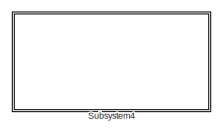
[diagram: Subsystem3 - part 1/2, top right region]
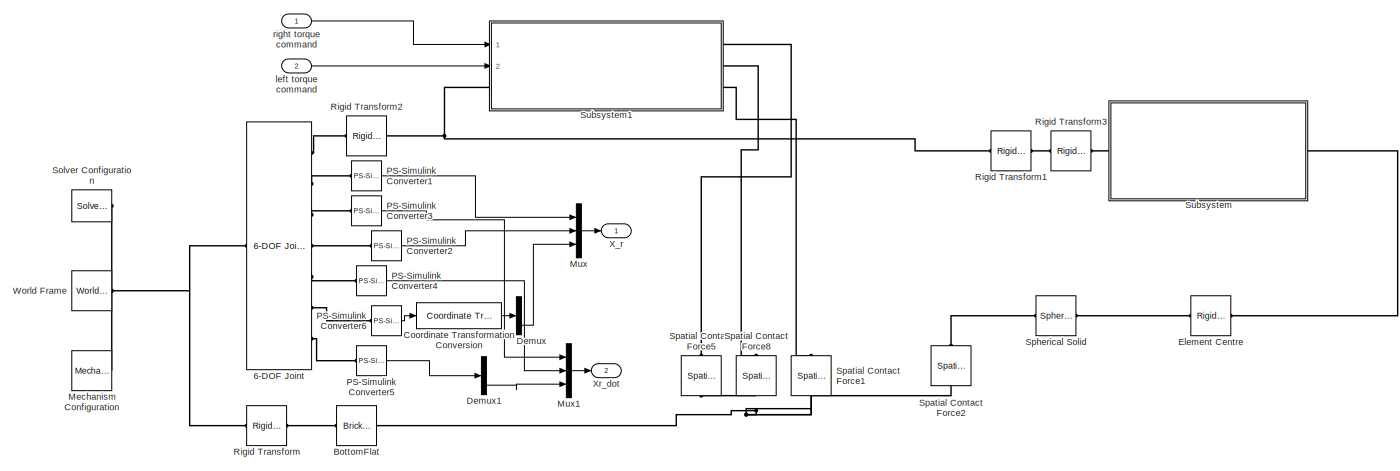
[diagram: Subsystem3 - part 2/2, most of the canvas]
BLOCK [SubSystem] Subsystem3
  Ports = [2, 2]
  RequestExecContextInheritance = off
BLOCK [Reference] Subsystem3/6-DOF Joint  REF=sm_lib/Joints/6-DOF Joint
  NameLocation = top
  Ports = [0, 0, 0, 0, 0, 1, 7]
  SourceBlock = sm_lib/Joints/6-DOF Joint
  SourceProductBaseCode = MS
  SourceType = 6-DOF Joint
BLOCK [Reference] Subsystem3/BottomFlat  REF=sm_lib/Body Elements/Brick Solid
  Ports = [0, 0, 0, 0, 0, 1, 1]
  SourceBlock = sm_lib/Body Elements/Brick Solid
  SourceProductBaseCode = MS
  SourceType = Brick Solid
BLOCK [Reference] Subsystem3/Coordinate Transformation Conversion  REF=robotcorelib/Coordinate Transformation Conversion
  Ports = [1, 1]
  SourceBlock = robotcorelib/Coordinate Transformation Conversion
  SourceProductBaseCode = NV,RO,RR,UV
  SourceType = robotics.slcore.internal.block.CoordinateTransformationConversion
BLOCK [Demux] Subsystem3/Demux
  Outputs = 3
  Ports = [1, 3]
BLOCK [Demux] Subsystem3/Demux1
  Outputs = 3
  Ports = [1, 3]
BLOCK [Reference] Subsystem3/Element Centre  REF=sm_lib/Frames and
Transforms/Rigid
Transform
  Ports = [0, 0, 0, 0, 0, 1, 1]
  SourceBlock = sm_lib/Frames and\nTransforms/Rigid\nTransform
  SourceProductBaseCode = MS
  SourceType = Rigid\nTransform
BLOCK [Reference] Subsystem3/Mechanism Configuration  REF=sm_lib/Utilities/Mechanism
Configuration
  Ports = [0, 0, 0, 0, 0, 0, 1]
  SourceBlock = sm_lib/Utilities/Mechanism\nConfiguration
  SourceProductBaseCode = MS
  SourceType = Mechanism\nConfiguration
BLOCK [Mux] Subsystem3/Mux
  DisplayOption = bar
  Inputs = 3
  Ports = [3, 1]
BLOCK [Mux] Subsystem3/Mux1
  DisplayOption = bar
  Inputs = 3
  Ports = [3, 1]
BLOCK [Reference] Subsystem3/PS-Simulink Converter1  REF=nesl_utility/PS-Simulink
Converter
  Ports = [0, 1, 0, 0, 0, 1]
  SourceBlock = nesl_utility/PS-Simulink\nConverter
  SourceProductBaseCode = PW,SS
  SourceType = PS-Simulink\nConverter
BLOCK [Reference] Subsystem3/PS-Simulink Converter2  REF=nesl_utility/PS-Simulink
Converter
  Ports = [0, 1, 0, 0, 0, 1]
  SourceBlock = nesl_utility/PS-Simulink\nConverter
  SourceProductBaseCode = PW,SS
  SourceType = PS-Simulink\nConverter
BLOCK [Reference] Subsystem3/PS-Simulink Converter3  REF=nesl_utility/PS-Simulink
Converter
  Ports = [0, 1, 0, 0, 0, 1]
  SourceBlock = nesl_utility/PS-Simulink\nConverter
  SourceProductBaseCode = PW,SS
  SourceType = PS-Simulink\nConverter
BLOCK [Reference] Subsystem3/PS-Simulink Converter4  REF=nesl_utility/PS-Simulink
Converter
  Ports = [0, 1, 0, 0, 0, 1]
  SourceBlock = nesl_utility/PS-Simulink\nConverter
  SourceProductBaseCode = PW,SS
  SourceType = PS-Simulink\nConverter
BLOCK [Reference] Subsystem3/PS-Simulink Converter5  REF=nesl_utility/PS-Simulink
Converter
  Ports = [0, 1, 0, 0, 0, 1]
  SourceBlock = nesl_utility/PS-Simulink\nConverter
  SourceProductBaseCode = PW,SS
  SourceType = PS-Simulink\nConverter
BLOCK [Reference] Subsystem3/PS-Simulink Converter6  REF=nesl_utility/PS-Simulink
Converter
  Ports = [0, 1, 0, 0, 0, 1]
  SourceBlock = nesl_utility/PS-Simulink\nConverter
  SourceProductBaseCode = PW,SS
  SourceType = PS-Simulink\nConverter
BLOCK [Reference] Subsystem3/Rigid Transform  REF=sm_lib/Frames and
Transforms/Rigid
Transform
  Ports = [0, 0, 0, 0, 0, 1, 1]
  SourceBlock = sm_lib/Frames and\nTransforms/Rigid\nTransform
  SourceProductBaseCode = MS
  SourceType = Rigid\nTransform
BLOCK [Reference] Subsystem3/Rigid Transform1  REF=sm_lib/Frames and
Transforms/Rigid
Transform
  Ports = [0, 0, 0, 0, 0, 1, 1]
  SourceBlock = sm_lib/Frames and\nTransforms/Rigid\nTransform
  SourceProductBaseCode = MS
  SourceType = Rigid\nTransform
BLOCK [Reference] Subsystem3/Rigid Transform2  REF=sm_lib/Frames and
Transforms/Rigid
Transform
  Ports = [0, 0, 0, 0, 0, 1, 1]
  SourceBlock = sm_lib/Frames and\nTransforms/Rigid\nTransform
  SourceProductBaseCode = MS
  SourceType = Rigid\nTransform
BLOCK [Reference] Subsystem3/Rigid Transform3  REF=sm_lib/Frames and
Transforms/Rigid
Transform
  Ports = [0, 0, 0, 0, 0, 1, 1]
  SourceBlock = sm_lib/Frames and\nTransforms/Rigid\nTransform
  SourceProductBaseCode = MS
  SourceType = Rigid\nTransform
BLOCK [Reference] Subsystem3/Solver Configuration  REF=nesl_utility/Solver
Configuration
  Ports = [0, 0, 0, 0, 0, 0, 1]
  SourceBlock = nesl_utility/Solver\nConfiguration
  SourceProductBaseCode = PW,SS
  SourceType = Solver\nConfiguration
BLOCK [Reference] Subsystem3/Spatial Contact Force1  REF=sm_lib/Forces and
Torques/Spatial
Contact Force
  NameLocation = right
  Ports = [0, 0, 0, 0, 0, 1, 1]
  SourceBlock = sm_lib/Forces and\nTorques/Spatial\nContact Force
  SourceProductBaseCode = MS
  SourceType = Spatial\nContact Force
BLOCK [Reference] Subsystem3/Spatial Contact Force2  REF=sm_lib/Forces and
Torques/Spatial
Contact Force
  NameLocation = right
  Ports = [0, 0, 0, 0, 0, 1, 1]
  SourceBlock = sm_lib/Forces and\nTorques/Spatial\nContact Force
  SourceProductBaseCode = MS
  SourceType = Spatial\nContact Force
BLOCK [Reference] Subsystem3/Spatial Contact Force5  REF=sm_lib/Forces and
Torques/Spatial
Contact Force
  NameLocation = right
  Ports = [0, 0, 0, 0, 0, 1, 1]
  SourceBlock = sm_lib/Forces and\nTorques/Spatial\nContact Force
  SourceProductBaseCode = MS
  SourceType = Spatial\nContact Force
BLOCK [Reference] Subsystem3/Spatial Contact Force8  REF=sm_lib/Forces and
Torques/Spatial
Contact Force
  NameLocation = right
  Ports = [0, 0, 0, 0, 0, 1, 1]
  SourceBlock = sm_lib/Forces and\nTorques/Spatial\nContact Force
  SourceProductBaseCode = MS
  SourceType = Spatial\nContact Force
BLOCK [Reference] Subsystem3/Spherical Solid  REF=sm_lib/Body Elements/Spherical Solid
  Ports = [0, 0, 0, 0, 0, 1, 1]
  SourceBlock = sm_lib/Body Elements/Spherical Solid
  SourceProductBaseCode = MS
  SourceType = Spherical Solid
BLOCK [SubSystem] Subsystem3/Subsystem
  Ports = [0, 0, 0, 0, 0, 1, 1]
  RequestExecContextInheritance = off
BLOCK [PMIOPort] Subsystem3/Subsystem/Body
  Side = Left
BLOCK [SubSystem] Subsystem3/Subsystem/SoftElement (Follower)
  Ports = [0, 0, 0, 0, 0, 2, 2]
  RequestExecContextInheritance = off
BLOCK [PMIOPort] Subsystem3/Subsystem/SoftElement (Follower)/Element Base
  Side = Left
BLOCK [Reference] Subsystem3/Subsystem/SoftElement (Follower)/Element Centre  REF=sm_lib/Frames and
Transforms/Rigid
Transform
  Ports = [0, 0, 0, 0, 0, 1, 1]
  SourceBlock = sm_lib/Frames and\nTransforms/Rigid\nTransform
  SourceProductBaseCode = MS
  SourceType = Rigid\nTransform
BLOCK [PMIOPort] Subsystem3/Subsystem/SoftElement (Follower)/Element Follower
  Port = 2
  Side = Right
BLOCK [Reference] Subsystem3/Subsystem/SoftElement (Follower)/Force Attachment point  REF=sm_lib/Frames and
Transforms/Rigid
Transform
  NameLocation = right
  Ports = [0, 0, 0, 0, 0, 1, 1]
  SourceBlock = sm_lib/Frames and\nTransforms/Rigid\nTransform
  SourceProductBaseCode = MS
  SourceType = Rigid\nTransform
BLOCK [Reference] Subsystem3/Subsystem/SoftElement (Follower)/SoftBlock  REF=sm_lib/Body Elements/Brick Solid
  NameLocation = right
  Ports = [0, 0, 0, 0, 0, 0, 1]
  SourceBlock = sm_lib/Body Elements/Brick Solid
  SourceProductBaseCode = MS
  SourceType = Brick Solid
BLOCK [Reference] Subsystem3/Subsystem/SoftElement (Follower)/Spherical Stiffness  REF=sm_lib/Joints/Spherical
Joint
  Ports = [0, 0, 0, 0, 0, 1, 1]
  SourceBlock = sm_lib/Joints/Spherical\nJoint
  SourceProductBaseCode = MS
  SourceType = Spherical\nJoint
BLOCK [Reference] Subsystem3/Subsystem/SoftElement (Follower)/Tendon Force  REF=sm_lib/Forces and
Torques/External Force
and Torque
  Ports = [0, 0, 0, 0, 0, 1, 1]
  SourceBlock = sm_lib/Forces and\nTorques/External Force\nand Torque
  SourceProductBaseCode = MS
  SourceType = External Force\nand Torque
BLOCK [PMIOPort] Subsystem3/Subsystem/SoftElement (Follower)/Tendon Force In
  Port = 3
  Side = Left
BLOCK [PMIOPort] Subsystem3/Subsystem/SoftElement (Follower)/Tendon Pos
  Port = 4
  Side = Right
BLOCK [Reference] Subsystem3/Subsystem/SoftElement (Follower)/Translational Stiffness  REF=sm_lib/Joints/Cartesian
Joint
  Ports = [0, 0, 0, 0, 0, 1, 1]
  SourceBlock = sm_lib/Joints/Cartesian\nJoint
  SourceProductBaseCode = MS
  SourceType = Cartesian\nJoint
BLOCK [SubSystem] Subsystem3/Subsystem/SoftElement (Follower)1
  Ports = [0, 0, 0, 0, 0, 2, 2]
  RequestExecContextInheritance = off
BLOCK [PMIOPort] Subsystem3/Subsystem/SoftElement (Follower)1/Element Base
  Side = Left
BLOCK [Reference] Subsystem3/Subsystem/SoftElement (Follower)1/Element Centre  REF=sm_lib/Frames and
Transforms/Rigid
Transform
  Ports = [0, 0, 0, 0, 0, 1, 1]
  SourceBlock = sm_lib/Frames and\nTransforms/Rigid\nTransform
  SourceProductBaseCode = MS
  SourceType = Rigid\nTransform
BLOCK [PMIOPort] Subsystem3/Subsystem/SoftElement (Follower)1/Element Follower
  Port = 2
  Side = Right
BLOCK [Reference] Subsystem3/Subsystem/SoftElement (Follower)1/Force Attachment point  REF=sm_lib/Frames and
Transforms/Rigid
Transform
  NameLocation = right
  Ports = [0, 0, 0, 0, 0, 1, 1]
  SourceBlock = sm_lib/Frames and\nTransforms/Rigid\nTransform
  SourceProductBaseCode = MS
  SourceType = Rigid\nTransform
BLOCK [Reference] Subsystem3/Subsystem/SoftElement (Follower)1/SoftBlock  REF=sm_lib/Body Elements/Brick Solid
  NameLocation = right
  Ports = [0, 0, 0, 0, 0, 0, 1]
  SourceBlock = sm_lib/Body Elements/Brick Solid
  SourceProductBaseCode = MS
  SourceType = Brick Solid
BLOCK [Reference] Subsystem3/Subsystem/SoftElement (Follower)1/Spherical Stiffness  REF=sm_lib/Joints/Spherical
Joint
  Ports = [0, 0, 0, 0, 0, 1, 1]
  SourceBlock = sm_lib/Joints/Spherical\nJoint
  SourceProductBaseCode = MS
  SourceType = Spherical\nJoint
BLOCK [Reference] Subsystem3/Subsystem/SoftElement (Follower)1/Tendon Force  REF=sm_lib/Forces and
Torques/External Force
and Torque
  Ports = [0, 0, 0, 0, 0, 1, 1]
  SourceBlock = sm_lib/Forces and\nTorques/External Force\nand Torque
  SourceProductBaseCode = MS
  SourceType = External Force\nand Torque
BLOCK [PMIOPort] Subsystem3/Subsystem/SoftElement (Follower)1/Tendon Force In
  Port = 3
  Side = Left
BLOCK [PMIOPort] Subsystem3/Subsystem/SoftElement (Follower)1/Tendon Pos
  Port = 4
  Side = Right
BLOCK [Reference] Subsystem3/Subsystem/SoftElement (Follower)1/Translational Stiffness  REF=sm_lib/Joints/Cartesian
Joint
  Ports = [0, 0, 0, 0, 0, 1, 1]
  SourceBlock = sm_lib/Joints/Cartesian\nJoint
  SourceProductBaseCode = MS
  SourceType = Cartesian\nJoint
BLOCK [SubSystem] Subsystem3/Subsystem/SoftElement (Follower)2
  Ports = [0, 0, 0, 0, 0, 2, 2]
  RequestExecContextInheritance = off
BLOCK [PMIOPort] Subsystem3/Subsystem/SoftElement (Follower)2/Element Base
  Side = Left
BLOCK [Reference] Subsystem3/Subsystem/SoftElement (Follower)2/Element Centre  REF=sm_lib/Frames and
Transforms/Rigid
Transform
  Ports = [0, 0, 0, 0, 0, 1, 1]
  SourceBlock = sm_lib/Frames and\nTransforms/Rigid\nTransform
  SourceProductBaseCode = MS
  SourceType = Rigid\nTransform
BLOCK [PMIOPort] Subsystem3/Subsystem/SoftElement (Follower)2/Element Follower
  Port = 2
  Side = Right
BLOCK [Reference] Subsystem3/Subsystem/SoftElement (Follower)2/Force Attachment point  REF=sm_lib/Frames and
Transforms/Rigid
Transform
  NameLocation = right
  Ports = [0, 0, 0, 0, 0, 1, 1]
  SourceBlock = sm_lib/Frames and\nTransforms/Rigid\nTransform
  SourceProductBaseCode = MS
  SourceType = Rigid\nTransform
BLOCK [Reference] Subsystem3/Subsystem/SoftElement (Follower)2/SoftBlock  REF=sm_lib/Body Elements/Brick Solid
  NameLocation = right
  Ports = [0, 0, 0, 0, 0, 0, 1]
  SourceBlock = sm_lib/Body Elements/Brick Solid
  SourceProductBaseCode = MS
  SourceType = Brick Solid
BLOCK [Reference] Subsystem3/Subsystem/SoftElement (Follower)2/Spherical Stiffness  REF=sm_lib/Joints/Spherical
Joint
  Ports = [0, 0, 0, 0, 0, 1, 1]
  SourceBlock = sm_lib/Joints/Spherical\nJoint
  SourceProductBaseCode = MS
  SourceType = Spherical\nJoint
BLOCK [Reference] Subsystem3/Subsystem/SoftElement (Follower)2/Tendon Force  REF=sm_lib/Forces and
Torques/External Force
and Torque
  Ports = [0, 0, 0, 0, 0, 1, 1]
  SourceBlock = sm_lib/Forces and\nTorques/External Force\nand Torque
  SourceProductBaseCode = MS
  SourceType = External Force\nand Torque
BLOCK [PMIOPort] Subsystem3/Subsystem/SoftElement (Follower)2/Tendon Force In
  Port = 3
  Side = Left
BLOCK [PMIOPort] Subsystem3/Subsystem/SoftElement (Follower)2/Tendon Pos
  Port = 4
  Side = Right
BLOCK [Reference] Subsystem3/Subsystem/SoftElement (Follower)2/Translational Stiffness  REF=sm_lib/Joints/Cartesian
Joint
  Ports = [0, 0, 0, 0, 0, 1, 1]
  SourceBlock = sm_lib/Joints/Cartesian\nJoint
  SourceProductBaseCode = MS
  SourceType = Cartesian\nJoint
BLOCK [SubSystem] Subsystem3/Subsystem/SoftElement (Follower)3
  Ports = [0, 0, 0, 0, 0, 2, 2]
  RequestExecContextInheritance = off
BLOCK [PMIOPort] Subsystem3/Subsystem/SoftElement (Follower)3/Element Base
  Side = Left
BLOCK [Reference] Subsystem3/Subsystem/SoftElement (Follower)3/Element Centre  REF=sm_lib/Frames and
Transforms/Rigid
Transform
  Ports = [0, 0, 0, 0, 0, 1, 1]
  SourceBlock = sm_lib/Frames and\nTransforms/Rigid\nTransform
  SourceProductBaseCode = MS
  SourceType = Rigid\nTransform
BLOCK [PMIOPort] Subsystem3/Subsystem/SoftElement (Follower)3/Element Follower
  Port = 2
  Side = Right
BLOCK [Reference] Subsystem3/Subsystem/SoftElement (Follower)3/Force Attachment point  REF=sm_lib/Frames and
Transforms/Rigid
Transform
  NameLocation = right
  Ports = [0, 0, 0, 0, 0, 1, 1]
  SourceBlock = sm_lib/Frames and\nTransforms/Rigid\nTransform
  SourceProductBaseCode = MS
  SourceType = Rigid\nTransform
BLOCK [Reference] Subsystem3/Subsystem/SoftElement (Follower)3/SoftBlock  REF=sm_lib/Body Elements/Brick Solid
  NameLocation = right
  Ports = [0, 0, 0, 0, 0, 0, 1]
  SourceBlock = sm_lib/Body Elements/Brick Solid
  SourceProductBaseCode = MS
  SourceType = Brick Solid
BLOCK [Reference] Subsystem3/Subsystem/SoftElement (Follower)3/Spherical Stiffness  REF=sm_lib/Joints/Spherical
Joint
  Ports = [0, 0, 0, 0, 0, 1, 1]
  SourceBlock = sm_lib/Joints/Spherical\nJoint
  SourceProductBaseCode = MS
  SourceType = Spherical\nJoint
BLOCK [Reference] Subsystem3/Subsystem/SoftElement (Follower)3/Tendon Force  REF=sm_lib/Forces and
Torques/External Force
and Torque
  Ports = [0, 0, 0, 0, 0, 1, 1]
  SourceBlock = sm_lib/Forces and\nTorques/External Force\nand Torque
  SourceProductBaseCode = MS
  SourceType = External Force\nand Torque
BLOCK [PMIOPort] Subsystem3/Subsystem/SoftElement (Follower)3/Tendon Force In
  Port = 3
  Side = Left
BLOCK [PMIOPort] Subsystem3/Subsystem/SoftElement (Follower)3/Tendon Pos
  Port = 4
  Side = Right
BLOCK [Reference] Subsystem3/Subsystem/SoftElement (Follower)3/Translational Stiffness  REF=sm_lib/Joints/Cartesian
Joint
  Ports = [0, 0, 0, 0, 0, 1, 1]
  SourceBlock = sm_lib/Joints/Cartesian\nJoint
  SourceProductBaseCode = MS
  SourceType = Cartesian\nJoint
BLOCK [SubSystem] Subsystem3/Subsystem/SoftElement (Follower)4
  Ports = [0, 0, 0, 0, 0, 2, 2]
  RequestExecContextInheritance = off
BLOCK [PMIOPort] Subsystem3/Subsystem/SoftElement (Follower)4/Element Base
  Side = Left
BLOCK [Reference] Subsystem3/Subsystem/SoftElement (Follower)4/Element Centre  REF=sm_lib/Frames and
Transforms/Rigid
Transform
  Ports = [0, 0, 0, 0, 0, 1, 1]
  SourceBlock = sm_lib/Frames and\nTransforms/Rigid\nTransform
  SourceProductBaseCode = MS
  SourceType = Rigid\nTransform
BLOCK [PMIOPort] Subsystem3/Subsystem/SoftElement (Follower)4/Element Follower
  Port = 2
  Side = Right
BLOCK [Reference] Subsystem3/Subsystem/SoftElement (Follower)4/Force Attachment point  REF=sm_lib/Frames and
Transforms/Rigid
Transform
  NameLocation = right
  Ports = [0, 0, 0, 0, 0, 1, 1]
  SourceBlock = sm_lib/Frames and\nTransforms/Rigid\nTransform
  SourceProductBaseCode = MS
  SourceType = Rigid\nTransform
BLOCK [Reference] Subsystem3/Subsystem/SoftElement (Follower)4/SoftBlock  REF=sm_lib/Body Elements/Brick Solid
  NameLocation = right
  Ports = [0, 0, 0, 0, 0, 0, 1]
  SourceBlock = sm_lib/Body Elements/Brick Solid
  SourceProductBaseCode = MS
  SourceType = Brick Solid
BLOCK [Reference] Subsystem3/Subsystem/SoftElement (Follower)4/Spherical Stiffness  REF=sm_lib/Joints/Spherical
Joint
  Ports = [0, 0, 0, 0, 0, 1, 1]
  SourceBlock = sm_lib/Joints/Spherical\nJoint
  SourceProductBaseCode = MS
  SourceType = Spherical\nJoint
BLOCK [Reference] Subsystem3/Subsystem/SoftElement (Follower)4/Tendon Force  REF=sm_lib/Forces and
Torques/External Force
and Torque
  Ports = [0, 0, 0, 0, 0, 1, 1]
  SourceBlock = sm_lib/Forces and\nTorques/External Force\nand Torque
  SourceProductBaseCode = MS
  SourceType = External Force\nand Torque
BLOCK [PMIOPort] Subsystem3/Subsystem/SoftElement (Follower)4/Tendon Force In
  Port = 3
  Side = Left
BLOCK [PMIOPort] Subsystem3/Subsystem/SoftElement (Follower)4/Tendon Pos
  Port = 4
  Side = Right
BLOCK [Reference] Subsystem3/Subsystem/SoftElement (Follower)4/Translational Stiffness  REF=sm_lib/Joints/Cartesian
Joint
  Ports = [0, 0, 0, 0, 0, 1, 1]
  SourceBlock = sm_lib/Joints/Cartesian\nJoint
  SourceProductBaseCode = MS
  SourceType = Cartesian\nJoint
BLOCK [SubSystem] Subsystem3/Subsystem/SoftElement (Follower)5
  Ports = [0, 0, 0, 0, 0, 2, 2]
  RequestExecContextInheritance = off
BLOCK [PMIOPort] Subsystem3/Subsystem/SoftElement (Follower)5/Element Base
  Side = Left
BLOCK [Reference] Subsystem3/Subsystem/SoftElement (Follower)5/Element Centre  REF=sm_lib/Frames and
Transforms/Rigid
Transform
  Ports = [0, 0, 0, 0, 0, 1, 1]
  SourceBlock = sm_lib/Frames and\nTransforms/Rigid\nTransform
  SourceProductBaseCode = MS
  SourceType = Rigid\nTransform
BLOCK [PMIOPort] Subsystem3/Subsystem/SoftElement (Follower)5/Element Follower
  Port = 2
  Side = Right
BLOCK [Reference] Subsystem3/Subsystem/SoftElement (Follower)5/Force Attachment point  REF=sm_lib/Frames and
Transforms/Rigid
Transform
  NameLocation = right
  Ports = [0, 0, 0, 0, 0, 1, 1]
  SourceBlock = sm_lib/Frames and\nTransforms/Rigid\nTransform
  SourceProductBaseCode = MS
  SourceType = Rigid\nTransform
BLOCK [Reference] Subsystem3/Subsystem/SoftElement (Follower)5/SoftBlock  REF=sm_lib/Body Elements/Brick Solid
  NameLocation = right
  Ports = [0, 0, 0, 0, 0, 0, 1]
  SourceBlock = sm_lib/Body Elements/Brick Solid
  SourceProductBaseCode = MS
  SourceType = Brick Solid
BLOCK [Reference] Subsystem3/Subsystem/SoftElement (Follower)5/Spherical Stiffness  REF=sm_lib/Joints/Spherical
Joint
  Ports = [0, 0, 0, 0, 0, 1, 1]
  SourceBlock = sm_lib/Joints/Spherical\nJoint
  SourceProductBaseCode = MS
  SourceType = Spherical\nJoint
BLOCK [Reference] Subsystem3/Subsystem/SoftElement (Follower)5/Tendon Force  REF=sm_lib/Forces and
Torques/External Force
and Torque
  Ports = [0, 0, 0, 0, 0, 1, 1]
  SourceBlock = sm_lib/Forces and\nTorques/External Force\nand Torque
  SourceProductBaseCode = MS
  SourceType = External Force\nand Torque
BLOCK [PMIOPort] Subsystem3/Subsystem/SoftElement (Follower)5/Tendon Force In
  Port = 3
  Side = Left
BLOCK [PMIOPort] Subsystem3/Subsystem/SoftElement (Follower)5/Tendon Pos
  Port = 4
  Side = Right
BLOCK [Reference] Subsystem3/Subsystem/SoftElement (Follower)5/Translational Stiffness  REF=sm_lib/Joints/Cartesian
Joint
  Ports = [0, 0, 0, 0, 0, 1, 1]
  SourceBlock = sm_lib/Joints/Cartesian\nJoint
  SourceProductBaseCode = MS
  SourceType = Cartesian\nJoint
BLOCK [SubSystem] Subsystem3/Subsystem/SoftElement (Follower)6
  Ports = [0, 0, 0, 0, 0, 2, 2]
  RequestExecContextInheritance = off
BLOCK [PMIOPort] Subsystem3/Subsystem/SoftElement (Follower)6/Element Base
  Side = Left
BLOCK [Reference] Subsystem3/Subsystem/SoftElement (Follower)6/Element Centre  REF=sm_lib/Frames and
Transforms/Rigid
Transform
  Ports = [0, 0, 0, 0, 0, 1, 1]
  SourceBlock = sm_lib/Frames and\nTransforms/Rigid\nTransform
  SourceProductBaseCode = MS
  SourceType = Rigid\nTransform
BLOCK [PMIOPort] Subsystem3/Subsystem/SoftElement (Follower)6/Element Follower
  Port = 2
  Side = Right
BLOCK [Reference] Subsystem3/Subsystem/SoftElement (Follower)6/Force Attachment point  REF=sm_lib/Frames and
Transforms/Rigid
Transform
  NameLocation = right
  Ports = [0, 0, 0, 0, 0, 1, 1]
  SourceBlock = sm_lib/Frames and\nTransforms/Rigid\nTransform
  SourceProductBaseCode = MS
  SourceType = Rigid\nTransform
BLOCK [Reference] Subsystem3/Subsystem/SoftElement (Follower)6/SoftBlock  REF=sm_lib/Body Elements/Brick Solid
  NameLocation = right
  Ports = [0, 0, 0, 0, 0, 0, 1]
  SourceBlock = sm_lib/Body Elements/Brick Solid
  SourceProductBaseCode = MS
  SourceType = Brick Solid
BLOCK [Reference] Subsystem3/Subsystem/SoftElement (Follower)6/Spherical Stiffness  REF=sm_lib/Joints/Spherical
Joint
  Ports = [0, 0, 0, 0, 0, 1, 1]
  SourceBlock = sm_lib/Joints/Spherical\nJoint
  SourceProductBaseCode = MS
  SourceType = Spherical\nJoint
BLOCK [Reference] Subsystem3/Subsystem/SoftElement (Follower)6/Tendon Force  REF=sm_lib/Forces and
Torques/External Force
and Torque
  Ports = [0, 0, 0, 0, 0, 1, 1]
  SourceBlock = sm_lib/Forces and\nTorques/External Force\nand Torque
  SourceProductBaseCode = MS
  SourceType = External Force\nand Torque
BLOCK [PMIOPort] Subsystem3/Subsystem/SoftElement (Follower)6/Tendon Force In
  Port = 3
  Side = Left
BLOCK [PMIOPort] Subsystem3/Subsystem/SoftElement (Follower)6/Tendon Pos
  Port = 4
  Side = Right
BLOCK [Reference] Subsystem3/Subsystem/SoftElement (Follower)6/Translational Stiffness  REF=sm_lib/Joints/Cartesian
Joint
  Ports = [0, 0, 0, 0, 0, 1, 1]
  SourceBlock = sm_lib/Joints/Cartesian\nJoint
  SourceProductBaseCode = MS
  SourceType = Cartesian\nJoint
BLOCK [SubSystem] Subsystem3/Subsystem/SoftElement (Follower)7
  Ports = [0, 0, 0, 0, 0, 2, 2]
  RequestExecContextInheritance = off
BLOCK [PMIOPort] Subsystem3/Subsystem/SoftElement (Follower)7/Element Base
  Side = Left
BLOCK [Reference] Subsystem3/Subsystem/SoftElement (Follower)7/Element Centre  REF=sm_lib/Frames and
Transforms/Rigid
Transform
  Ports = [0, 0, 0, 0, 0, 1, 1]
  SourceBlock = sm_lib/Frames and\nTransforms/Rigid\nTransform
  SourceProductBaseCode = MS
  SourceType = Rigid\nTransform
BLOCK [PMIOPort] Subsystem3/Subsystem/SoftElement (Follower)7/Element Follower
  Port = 2
  Side = Right
BLOCK [Reference] Subsystem3/Subsystem/SoftElement (Follower)7/Force Attachment point  REF=sm_lib/Frames and
Transforms/Rigid
Transform
  NameLocation = right
  Ports = [0, 0, 0, 0, 0, 1, 1]
  SourceBlock = sm_lib/Frames and\nTransforms/Rigid\nTransform
  SourceProductBaseCode = MS
  SourceType = Rigid\nTransform
BLOCK [Reference] Subsystem3/Subsystem/SoftElement (Follower)7/SoftBlock  REF=sm_lib/Body Elements/Brick Solid
  NameLocation = right
  Ports = [0, 0, 0, 0, 0, 0, 1]
  SourceBlock = sm_lib/Body Elements/Brick Solid
  SourceProductBaseCode = MS
  SourceType = Brick Solid
BLOCK [Reference] Subsystem3/Subsystem/SoftElement (Follower)7/Spherical Stiffness  REF=sm_lib/Joints/Spherical
Joint
  Ports = [0, 0, 0, 0, 0, 1, 1]
  SourceBlock = sm_lib/Joints/Spherical\nJoint
  SourceProductBaseCode = MS
  SourceType = Spherical\nJoint
BLOCK [Reference] Subsystem3/Subsystem/SoftElement (Follower)7/Tendon Force  REF=sm_lib/Forces and
Torques/External Force
and Torque
  Ports = [0, 0, 0, 0, 0, 1, 1]
  SourceBlock = sm_lib/Forces and\nTorques/External Force\nand Torque
  SourceProductBaseCode = MS
  SourceType = External Force\nand Torque
BLOCK [PMIOPort] Subsystem3/Subsystem/SoftElement (Follower)7/Tendon Force In
  Port = 3
  Side = Left
BLOCK [PMIOPort] Subsystem3/Subsystem/SoftElement (Follower)7/Tendon Pos
  Port = 4
  Side = Right
BLOCK [Reference] Subsystem3/Subsystem/SoftElement (Follower)7/Translational Stiffness  REF=sm_lib/Joints/Cartesian
Joint
  Ports = [0, 0, 0, 0, 0, 1, 1]
  SourceBlock = sm_lib/Joints/Cartesian\nJoint
  SourceProductBaseCode = MS
  SourceType = Cartesian\nJoint
BLOCK [SubSystem] Subsystem3/Subsystem/SoftElement (Follower)8
  Ports = [0, 0, 0, 0, 0, 2, 2]
  RequestExecContextInheritance = off
BLOCK [PMIOPort] Subsystem3/Subsystem/SoftElement (Follower)8/Element Base
  Side = Left
BLOCK [Reference] Subsystem3/Subsystem/SoftElement (Follower)8/Element Centre  REF=sm_lib/Frames and
Transforms/Rigid
Transform
  Ports = [0, 0, 0, 0, 0, 1, 1]
  SourceBlock = sm_lib/Frames and\nTransforms/Rigid\nTransform
  SourceProductBaseCode = MS
  SourceType = Rigid\nTransform
BLOCK [PMIOPort] Subsystem3/Subsystem/SoftElement (Follower)8/Element Follower
  Port = 2
  Side = Right
BLOCK [Reference] Subsystem3/Subsystem/SoftElement (Follower)8/Force Attachment point  REF=sm_lib/Frames and
Transforms/Rigid
Transform
  NameLocation = right
  Ports = [0, 0, 0, 0, 0, 1, 1]
  SourceBlock = sm_lib/Frames and\nTransforms/Rigid\nTransform
  SourceProductBaseCode = MS
  SourceType = Rigid\nTransform
BLOCK [Reference] Subsystem3/Subsystem/SoftElement (Follower)8/SoftBlock  REF=sm_lib/Body Elements/Brick Solid
  NameLocation = right
  Ports = [0, 0, 0, 0, 0, 0, 1]
  SourceBlock = sm_lib/Body Elements/Brick Solid
  SourceProductBaseCode = MS
  SourceType = Brick Solid
BLOCK [Reference] Subsystem3/Subsystem/SoftElement (Follower)8/Spherical Stiffness  REF=sm_lib/Joints/Spherical
Joint
  Ports = [0, 0, 0, 0, 0, 1, 1]
  SourceBlock = sm_lib/Joints/Spherical\nJoint
  SourceProductBaseCode = MS
  SourceType = Spherical\nJoint
BLOCK [Reference] Subsystem3/Subsystem/SoftElement (Follower)8/Tendon Force  REF=sm_lib/Forces and
Torques/External Force
and Torque
  Ports = [0, 0, 0, 0, 0, 1, 1]
  SourceBlock = sm_lib/Forces and\nTorques/External Force\nand Torque
  SourceProductBaseCode = MS
  SourceType = External Force\nand Torque
BLOCK [PMIOPort] Subsystem3/Subsystem/SoftElement (Follower)8/Tendon Force In
  Port = 3
  Side = Left
BLOCK [PMIOPort] Subsystem3/Subsystem/SoftElement (Follower)8/Tendon Pos
  Port = 4
  Side = Right
BLOCK [Reference] Subsystem3/Subsystem/SoftElement (Follower)8/Translational Stiffness  REF=sm_lib/Joints/Cartesian
Joint
  Ports = [0, 0, 0, 0, 0, 1, 1]
  SourceBlock = sm_lib/Joints/Cartesian\nJoint
  SourceProductBaseCode = MS
  SourceType = Cartesian\nJoint
BLOCK [SubSystem] Subsystem3/Subsystem/SoftElement (Follower)9
  Ports = [0, 0, 0, 0, 0, 2, 2]
  RequestExecContextInheritance = off
BLOCK [PMIOPort] Subsystem3/Subsystem/SoftElement (Follower)9/Element Base
  Side = Left
BLOCK [Reference] Subsystem3/Subsystem/SoftElement (Follower)9/Element Centre  REF=sm_lib/Frames and
Transforms/Rigid
Transform
  Ports = [0, 0, 0, 0, 0, 1, 1]
  SourceBlock = sm_lib/Frames and\nTransforms/Rigid\nTransform
  SourceProductBaseCode = MS
  SourceType = Rigid\nTransform
BLOCK [PMIOPort] Subsystem3/Subsystem/SoftElement (Follower)9/Element Follower
  Port = 2
  Side = Right
BLOCK [Reference] Subsystem3/Subsystem/SoftElement (Follower)9/Force Attachment point  REF=sm_lib/Frames and
Transforms/Rigid
Transform
  NameLocation = right
  Ports = [0, 0, 0, 0, 0, 1, 1]
  SourceBlock = sm_lib/Frames and\nTransforms/Rigid\nTransform
  SourceProductBaseCode = MS
  SourceType = Rigid\nTransform
BLOCK [Reference] Subsystem3/Subsystem/SoftElement (Follower)9/SoftBlock  REF=sm_lib/Body Elements/Brick Solid
  NameLocation = right
  Ports = [0, 0, 0, 0, 0, 0, 1]
  SourceBlock = sm_lib/Body Elements/Brick Solid
  SourceProductBaseCode = MS
  SourceType = Brick Solid
BLOCK [Reference] Subsystem3/Subsystem/SoftElement (Follower)9/Spherical Stiffness  REF=sm_lib/Joints/Spherical
Joint
  Ports = [0, 0, 0, 0, 0, 1, 1]
  SourceBlock = sm_lib/Joints/Spherical\nJoint
  SourceProductBaseCode = MS
  SourceType = Spherical\nJoint
BLOCK [Reference] Subsystem3/Subsystem/SoftElement (Follower)9/Tendon Force  REF=sm_lib/Forces and
Torques/External Force
and Torque
  Ports = [0, 0, 0, 0, 0, 1, 1]
  SourceBlock = sm_lib/Forces and\nTorques/External Force\nand Torque
  SourceProductBaseCode = MS
  SourceType = External Force\nand Torque
BLOCK [PMIOPort] Subsystem3/Subsystem/SoftElement (Follower)9/Tendon Force In
  Port = 3
  Side = Left
BLOCK [PMIOPort] Subsystem3/Subsystem/SoftElement (Follower)9/Tendon Pos
  Port = 4
  Side = Right
BLOCK [Reference] Subsystem3/Subsystem/SoftElement (Follower)9/Translational Stiffness  REF=sm_lib/Joints/Cartesian
Joint
  Ports = [0, 0, 0, 0, 0, 1, 1]
  SourceBlock = sm_lib/Joints/Cartesian\nJoint
  SourceProductBaseCode = MS
  SourceType = Cartesian\nJoint
BLOCK [PMIOPort] Subsystem3/Subsystem/body
  Port = 2
  Side = Right
BLOCK [SubSystem] Subsystem3/Subsystem1
  Ports = [2, 0, 0, 0, 0, 1, 3]
  RequestExecContextInheritance = off
BLOCK [PMIOPort] Subsystem3/Subsystem1/Conn2
  Port = 2
  Side = Right
BLOCK [Reference] Subsystem3/Subsystem1/Inertia  REF=sm_lib/Body Elements/Inertia
  Ports = [0, 0, 0, 0, 0, 0, 1]
  SourceBlock = sm_lib/Body Elements/Inertia
  SourceProductBaseCode = MS
  SourceType = Inertia
BLOCK [Reference] Subsystem3/Subsystem1/InertiaOriginTransform  REF=sm_lib/Frames and
Transforms/Rigid
Transform
  Ports = [0, 0, 0, 0, 0, 1, 1]
  SourceBlock = sm_lib/Frames and\nTransforms/Rigid\nTransform
  SourceProductBaseCode = MS
  SourceType = Rigid\nTransform
BLOCK [PMIOPort] Subsystem3/Subsystem1/Spatial Contact Force8
  Port = 3
  Side = Right
BLOCK [Reference] Subsystem3/Subsystem1/Spherical Joint  REF=sm_lib/Joints/Spherical
Joint
  Ports = [0, 0, 0, 0, 0, 1, 1]
  SourceBlock = sm_lib/Joints/Spherical\nJoint
  SourceProductBaseCode = MS
  SourceType = Spherical\nJoint
BLOCK [Reference] Subsystem3/Subsystem1/Spherical Solid  REF=sm_lib/Body Elements/Spherical Solid
  Ports = [0, 0, 0, 0, 0, 1, 1]
  SourceBlock = sm_lib/Body Elements/Spherical Solid
  SourceProductBaseCode = MS
  SourceType = Spherical Solid
BLOCK [PMIOPort] Subsystem3/Subsystem1/Spherical Solid1
  Port = 4
  Side = Right
BLOCK [SubSystem] Subsystem3/Subsystem1/Subsystem
  Ports = [0, 0, 0, 0, 0, 1, 1]
  RequestExecContextInheritance = off
BLOCK [Reference] Subsystem3/Subsystem1/Subsystem/Cylindrical Solid  REF=sm_lib/Body Elements/Cylindrical Solid
  Ports = [0, 0, 0, 0, 0, 1, 1]
  SourceBlock = sm_lib/Body Elements/Cylindrical Solid
  SourceProductBaseCode = MS
  SourceType = Cylindrical Solid
BLOCK [Reference] Subsystem3/Subsystem1/Subsystem/Inertia1  REF=sm_lib/Body Elements/Inertia
  Ports = [0, 0, 0, 0, 0, 0, 1]
  SourceBlock = sm_lib/Body Elements/Inertia
  SourceProductBaseCode = MS
  SourceType = Inertia
BLOCK [Reference] Subsystem3/Subsystem1/Subsystem/InertiaOriginTransform1  REF=sm_lib/Frames and
Transforms/Rigid
Transform
  Ports = [0, 0, 0, 0, 0, 1, 1]
  SourceBlock = sm_lib/Frames and\nTransforms/Rigid\nTransform
  SourceProductBaseCode = MS
  SourceType = Rigid\nTransform
BLOCK [Reference] Subsystem3/Subsystem1/Subsystem/ReferenceFrame  REF=sm_lib/Frames and
Transforms/Reference
Frame
  Ports = [0, 0, 0, 0, 0, 0, 1]
  SourceBlock = sm_lib/Frames and\nTransforms/Reference\nFrame
  SourceProductBaseCode = MS
  SourceType = Reference\nFrame
BLOCK [PMIOPort] Subsystem3/Subsystem1/Subsystem/Spherical Solid1
  Side = Left
BLOCK [Reference] Subsystem3/Subsystem1/Subsystem/Visual1  REF=sm_lib/Body Elements/File Solid
  Commented = on
  Ports = [0, 0, 0, 0, 0, 1, 1]
  SourceBlock = sm_lib/Body Elements/File Solid
  SourceProductBaseCode = MS
  SourceType = File Solid
BLOCK [Reference] Subsystem3/Subsystem1/Subsystem/VisualOriginTransform1  REF=sm_lib/Frames and
Transforms/Rigid
Transform
  Ports = [0, 0, 0, 0, 0, 1, 1]
  SourceBlock = sm_lib/Frames and\nTransforms/Rigid\nTransform
  SourceProductBaseCode = MS
  SourceType = Rigid\nTransform
BLOCK [Reference] Subsystem3/Subsystem1/Subsystem/VisualOriginTransform2  REF=sm_lib/Frames and
Transforms/Rigid
Transform
  Ports = [0, 0, 0, 0, 0, 1, 1]
  SourceBlock = sm_lib/Frames and\nTransforms/Rigid\nTransform
  SourceProductBaseCode = MS
  SourceType = Rigid\nTransform
BLOCK [Reference] Subsystem3/Subsystem1/Subsystem/wheel_left_joint_AxisInvTransform  REF=sm_lib/Frames and
Transforms/Rigid
Transform
  Ports = [0, 0, 0, 0, 0, 1, 1]
  SourceBlock = sm_lib/Frames and\nTransforms/Rigid\nTransform
  SourceProductBaseCode = MS
  SourceType = Rigid\nTransform
BLOCK [PMIOPort] Subsystem3/Subsystem1/Subsystem/wheel_left_joint_AxisInvTransform1
  Port = 2
  Side = Right
BLOCK [SubSystem] Subsystem3/Subsystem1/Subsystem1
  Ports = [0, 0, 0, 0, 0, 1, 1]
  RequestExecContextInheritance = off
BLOCK [Reference] Subsystem3/Subsystem1/Subsystem1/Cylindrical Solid  REF=sm_lib/Body Elements/Cylindrical Solid
  Ports = [0, 0, 0, 0, 0, 1, 1]
  SourceBlock = sm_lib/Body Elements/Cylindrical Solid
  SourceProductBaseCode = MS
  SourceType = Cylindrical Solid
BLOCK [Reference] Subsystem3/Subsystem1/Subsystem1/Inertia1  REF=sm_lib/Body Elements/Inertia
  Ports = [0, 0, 0, 0, 0, 0, 1]
  SourceBlock = sm_lib/Body Elements/Inertia
  SourceProductBaseCode = MS
  SourceType = Inertia
BLOCK [Reference] Subsystem3/Subsystem1/Subsystem1/InertiaOriginTransform1  REF=sm_lib/Frames and
Transforms/Rigid
Transform
  Ports = [0, 0, 0, 0, 0, 1, 1]
  SourceBlock = sm_lib/Frames and\nTransforms/Rigid\nTransform
  SourceProductBaseCode = MS
  SourceType = Rigid\nTransform
BLOCK [Reference] Subsystem3/Subsystem1/Subsystem1/ReferenceFrame  REF=sm_lib/Frames and
Transforms/Reference
Frame
  Ports = [0, 0, 0, 0, 0, 0, 1]
  SourceBlock = sm_lib/Frames and\nTransforms/Reference\nFrame
  SourceProductBaseCode = MS
  SourceType = Reference\nFrame
BLOCK [PMIOPort] Subsystem3/Subsystem1/Subsystem1/Spherical Solid1
  Side = Left
BLOCK [Reference] Subsystem3/Subsystem1/Subsystem1/Visual1  REF=sm_lib/Body Elements/File Solid
  Commented = on
  Ports = [0, 0, 0, 0, 0, 1, 1]
  SourceBlock = sm_lib/Body Elements/File Solid
  SourceProductBaseCode = MS
  SourceType = File Solid
BLOCK [Reference] Subsystem3/Subsystem1/Subsystem1/VisualOriginTransform1  REF=sm_lib/Frames and
Transforms/Rigid
Transform
  Ports = [0, 0, 0, 0, 0, 1, 1]
  SourceBlock = sm_lib/Frames and\nTransforms/Rigid\nTransform
  SourceProductBaseCode = MS
  SourceType = Rigid\nTransform
BLOCK [Reference] Subsystem3/Subsystem1/Subsystem1/VisualOriginTransform2  REF=sm_lib/Frames and
Transforms/Rigid
Transform
  Ports = [0, 0, 0, 0, 0, 1, 1]
  SourceBlock = sm_lib/Frames and\nTransforms/Rigid\nTransform
  SourceProductBaseCode = MS
  SourceType = Rigid\nTransform
BLOCK [Reference] Subsystem3/Subsystem1/Subsystem1/wheel_right_joint_AxisInvTransform  REF=sm_lib/Frames and
Transforms/Rigid
Transform
  Ports = [0, 0, 0, 0, 0, 1, 1]
  SourceBlock = sm_lib/Frames and\nTransforms/Rigid\nTransform
  SourceProductBaseCode = MS
  SourceType = Rigid\nTransform
BLOCK [PMIOPort] Subsystem3/Subsystem1/Subsystem1/wheel_right_joint_AxisInvTransform1
  Port = 2
  Side = Right
BLOCK [SubSystem] Subsystem3/Subsystem1/Subsystem2
  Ports = [1, 0, 0, 0, 0, 1, 1]
  RequestExecContextInheritance = off
BLOCK [Inport] Subsystem3/Subsystem1/Subsystem2/In1
BLOCK [Reference] Subsystem3/Subsystem1/Subsystem2/PS-Simulink Converter  REF=nesl_utility/PS-Simulink
Converter
  Ports = [0, 1, 0, 0, 0, 1]
  SourceBlock = nesl_utility/PS-Simulink\nConverter
  SourceProductBaseCode = PW,SS
  SourceType = PS-Simulink\nConverter
BLOCK [Reference] Subsystem3/Subsystem1/Subsystem2/Simulink-PS Converter  REF=nesl_utility/Simulink-PS
Converter
  Ports = [1, 0, 0, 0, 0, 0, 1]
  SourceBlock = nesl_utility/Simulink-PS\nConverter
  SourceProductBaseCode = PW,SS
  SourceType = Simulink-PS\nConverter
BLOCK [Reference] Subsystem3/Subsystem1/Subsystem2/wheel_right_joint  REF=sm_lib/Joints/Revolute Joint
  Ports = [0, 0, 0, 0, 0, 2, 2]
  SourceBlock = sm_lib/Joints/Revolute Joint
  SourceProductBaseCode = MS
  SourceType = Revolute Joint
BLOCK [PMIOPort] Subsystem3/Subsystem1/Subsystem2/wheel_right_joint1
  Side = Right
BLOCK [Reference] Subsystem3/Subsystem1/Subsystem2/wheel_right_joint_AxisTransform  REF=sm_lib/Frames and
Transforms/Rigid
Transform
  Ports = [0, 0, 0, 0, 0, 1, 1]
  SourceBlock = sm_lib/Frames and\nTransforms/Rigid\nTransform
  SourceProductBaseCode = MS
  SourceType = Rigid\nTransform
BLOCK [Reference] Subsystem3/Subsystem1/Subsystem2/wheel_right_joint_OriginTransform  REF=sm_lib/Frames and
Transforms/Rigid
Transform
  Ports = [0, 0, 0, 0, 0, 1, 1]
  SourceBlock = sm_lib/Frames and\nTransforms/Rigid\nTransform
  SourceProductBaseCode = MS
  SourceType = Rigid\nTransform
BLOCK [PMIOPort] Subsystem3/Subsystem1/Subsystem2/wheel_right_joint_OriginTransform1
  Port = 2
  Side = Left
BLOCK [SubSystem] Subsystem3/Subsystem1/Subsystem3
  Ports = [1, 0, 0, 0, 0, 1, 1]
  RequestExecContextInheritance = off
BLOCK [Inport] Subsystem3/Subsystem1/Subsystem3/In1
BLOCK [Reference] Subsystem3/Subsystem1/Subsystem3/PS-Simulink Converter1  REF=nesl_utility/PS-Simulink
Converter
  Ports = [0, 1, 0, 0, 0, 1]
  SourceBlock = nesl_utility/PS-Simulink\nConverter
  SourceProductBaseCode = PW,SS
  SourceType = PS-Simulink\nConverter
BLOCK [Scope] Subsystem3/Subsystem1/Subsystem3/Scope
  Floating = off
  NumInputPorts = 2
  Ports = [2]
  ScopeSpecificationString = Simulink.scopes.TimeScopeBlockCfg('CurrentConfiguration', extmgr.ConfigurationSet(extmgr.Configuration('Core','General UI',true),extmgr.Configuration('Core','Source UI',true),extmgr.Configuration('Sources','WiredSimulink',true,'DataLoggingVariableName','ScopeData1'),extmgr.Configuration('Visuals','Time Domain',true,'SerializedDisplays',{struct('MinYLimReal','-298.82035','MaxYLimReal','40.34188','Y...<+1475ch>
BLOCK [Reference] Subsystem3/Subsystem1/Subsystem3/Simulink-PS Converter1  REF=nesl_utility/Simulink-PS
Converter
  Ports = [1, 0, 0, 0, 0, 0, 1]
  SourceBlock = nesl_utility/Simulink-PS\nConverter
  SourceProductBaseCode = PW,SS
  SourceType = Simulink-PS\nConverter
BLOCK [Reference] Subsystem3/Subsystem1/Subsystem3/wheel_left_joint  REF=sm_lib/Joints/Revolute Joint
  Ports = [0, 0, 0, 0, 0, 2, 2]
  SourceBlock = sm_lib/Joints/Revolute Joint
  SourceProductBaseCode = MS
  SourceType = Revolute Joint
BLOCK [PMIOPort] Subsystem3/Subsystem1/Subsystem3/wheel_left_joint1
  Side = Right
BLOCK [Reference] Subsystem3/Subsystem1/Subsystem3/wheel_left_joint_AxisTransform  REF=sm_lib/Frames and
Transforms/Rigid
Transform
  Ports = [0, 0, 0, 0, 0, 1, 1]
  SourceBlock = sm_lib/Frames and\nTransforms/Rigid\nTransform
  SourceProductBaseCode = MS
  SourceType = Rigid\nTransform
BLOCK [Reference] Subsystem3/Subsystem1/Subsystem3/wheel_left_joint_OriginTransform  REF=sm_lib/Frames and
Transforms/Rigid
Transform
  Ports = [0, 0, 0, 0, 0, 1, 1]
  SourceBlock = sm_lib/Frames and\nTransforms/Rigid\nTransform
  SourceProductBaseCode = MS
  SourceType = Rigid\nTransform
BLOCK [PMIOPort] Subsystem3/Subsystem1/Subsystem3/wheel_left_joint_OriginTransform1
  Port = 2
  Side = Left
BLOCK [Reference] Subsystem3/Subsystem1/Visual  REF=sm_lib/Body Elements/File Solid
  Ports = [0, 0, 0, 0, 0, 1, 1]
  SourceBlock = sm_lib/Body Elements/File Solid
  SourceProductBaseCode = MS
  SourceType = File Solid
BLOCK [Reference] Subsystem3/Subsystem1/VisualOriginTransform  REF=sm_lib/Frames and
Transforms/Rigid
Transform
  Ports = [0, 0, 0, 0, 0, 1, 1]
  SourceBlock = sm_lib/Frames and\nTransforms/Rigid\nTransform
  SourceProductBaseCode = MS
  SourceType = Rigid\nTransform
BLOCK [PMIOPort] Subsystem3/Subsystem1/VisualOriginTransform1
  Side = Left
BLOCK [Reference] Subsystem3/Subsystem1/VisualOriginTransform2  REF=sm_lib/Frames and
Transforms/Rigid
Transform
  Ports = [0, 0, 0, 0, 0, 1, 1]
  SourceBlock = sm_lib/Frames and\nTransforms/Rigid\nTransform
  SourceProductBaseCode = MS
  SourceType = Rigid\nTransform
BLOCK [Inport] Subsystem3/Subsystem1/left speed command
  Port = 2
BLOCK [Inport] Subsystem3/Subsystem1/right speed command
BLOCK [SubSystem] Subsystem3/Subsystem4
  Commented = on
  Ports = [0, 0, 0, 0, 0, 1, 1]
  RequestExecContextInheritance = off
BLOCK [PMIOPort] Subsystem3/Subsystem4/Body
  Side = Left
BLOCK [SubSystem] Subsystem3/Subsystem4/SoftElement (Follower)
  Ports = [0, 0, 0, 0, 0, 2, 2]
  RequestExecContextInheritance = off
BLOCK [PMIOPort] Subsystem3/Subsystem4/SoftElement (Follower)/Element Base
  Side = Left
BLOCK [Reference] Subsystem3/Subsystem4/SoftElement (Follower)/Element Centre  REF=sm_lib/Frames and
Transforms/Rigid
Transform
  Ports = [0, 0, 0, 0, 0, 1, 1]
  SourceBlock = sm_lib/Frames and\nTransforms/Rigid\nTransform
  SourceProductBaseCode = MS
  SourceType = Rigid\nTransform
BLOCK [PMIOPort] Subsystem3/Subsystem4/SoftElement (Follower)/Element Follower
  Port = 2
  Side = Right
BLOCK [Reference] Subsystem3/Subsystem4/SoftElement (Follower)/Force Attachment point  REF=sm_lib/Frames and
Transforms/Rigid
Transform
  NameLocation = right
  Ports = [0, 0, 0, 0, 0, 1, 1]
  SourceBlock = sm_lib/Frames and\nTransforms/Rigid\nTransform
  SourceProductBaseCode = MS
  SourceType = Rigid\nTransform
BLOCK [Reference] Subsystem3/Subsystem4/SoftElement (Follower)/SoftBlock  REF=sm_lib/Body Elements/Brick Solid
  NameLocation = right
  Ports = [0, 0, 0, 0, 0, 0, 1]
  SourceBlock = sm_lib/Body Elements/Brick Solid
  SourceProductBaseCode = MS
  SourceType = Brick Solid
BLOCK [Reference] Subsystem3/Subsystem4/SoftElement (Follower)/Spherical Stiffness  REF=sm_lib/Joints/Spherical
Joint
  Ports = [0, 0, 0, 0, 0, 1, 1]
  SourceBlock = sm_lib/Joints/Spherical\nJoint
  SourceProductBaseCode = MS
  SourceType = Spherical\nJoint
BLOCK [Reference] Subsystem3/Subsystem4/SoftElement (Follower)/Tendon Force  REF=sm_lib/Forces and
Torques/External Force
and Torque
  Ports = [0, 0, 0, 0, 0, 1, 1]
  SourceBlock = sm_lib/Forces and\nTorques/External Force\nand Torque
  SourceProductBaseCode = MS
  SourceType = External Force\nand Torque
BLOCK [PMIOPort] Subsystem3/Subsystem4/SoftElement (Follower)/Tendon Force In
  Port = 3
  Side = Left
BLOCK [PMIOPort] Subsystem3/Subsystem4/SoftElement (Follower)/Tendon Pos
  Port = 4
  Side = Right
BLOCK [Reference] Subsystem3/Subsystem4/SoftElement (Follower)/Translational Stiffness  REF=sm_lib/Joints/Cartesian
Joint
  Ports = [0, 0, 0, 0, 0, 1, 1]
  SourceBlock = sm_lib/Joints/Cartesian\nJoint
  SourceProductBaseCode = MS
  SourceType = Cartesian\nJoint
BLOCK [SubSystem] Subsystem3/Subsystem4/SoftElement (Follower)1
  Ports = [0, 0, 0, 0, 0, 2, 2]
  RequestExecContextInheritance = off
BLOCK [PMIOPort] Subsystem3/Subsystem4/SoftElement (Follower)1/Element Base
  Side = Left
BLOCK [Reference] Subsystem3/Subsystem4/SoftElement (Follower)1/Element Centre  REF=sm_lib/Frames and
Transforms/Rigid
Transform
  Ports = [0, 0, 0, 0, 0, 1, 1]
  SourceBlock = sm_lib/Frames and\nTransforms/Rigid\nTransform
  SourceProductBaseCode = MS
  SourceType = Rigid\nTransform
BLOCK [PMIOPort] Subsystem3/Subsystem4/SoftElement (Follower)1/Element Follower
  Port = 2
  Side = Right
BLOCK [Reference] Subsystem3/Subsystem4/SoftElement (Follower)1/Force Attachment point  REF=sm_lib/Frames and
Transforms/Rigid
Transform
  NameLocation = right
  Ports = [0, 0, 0, 0, 0, 1, 1]
  SourceBlock = sm_lib/Frames and\nTransforms/Rigid\nTransform
  SourceProductBaseCode = MS
  SourceType = Rigid\nTransform
BLOCK [Reference] Subsystem3/Subsystem4/SoftElement (Follower)1/SoftBlock  REF=sm_lib/Body Elements/Brick Solid
  NameLocation = right
  Ports = [0, 0, 0, 0, 0, 0, 1]
  SourceBlock = sm_lib/Body Elements/Brick Solid
  SourceProductBaseCode = MS
  SourceType = Brick Solid
BLOCK [Reference] Subsystem3/Subsystem4/SoftElement (Follower)1/Spherical Stiffness  REF=sm_lib/Joints/Spherical
Joint
  Ports = [0, 0, 0, 0, 0, 1, 1]
  SourceBlock = sm_lib/Joints/Spherical\nJoint
  SourceProductBaseCode = MS
  SourceType = Spherical\nJoint
BLOCK [Reference] Subsystem3/Subsystem4/SoftElement (Follower)1/Tendon Force  REF=sm_lib/Forces and
Torques/External Force
and Torque
  Ports = [0, 0, 0, 0, 0, 1, 1]
  SourceBlock = sm_lib/Forces and\nTorques/External Force\nand Torque
  SourceProductBaseCode = MS
  SourceType = External Force\nand Torque
BLOCK [PMIOPort] Subsystem3/Subsystem4/SoftElement (Follower)1/Tendon Force In
  Port = 3
  Side = Left
BLOCK [PMIOPort] Subsystem3/Subsystem4/SoftElement (Follower)1/Tendon Pos
  Port = 4
  Side = Right
BLOCK [Reference] Subsystem3/Subsystem4/SoftElement (Follower)1/Translational Stiffness  REF=sm_lib/Joints/Cartesian
Joint
  Ports = [0, 0, 0, 0, 0, 1, 1]
  SourceBlock = sm_lib/Joints/Cartesian\nJoint
  SourceProductBaseCode = MS
  SourceType = Cartesian\nJoint
BLOCK [SubSystem] Subsystem3/Subsystem4/SoftElement (Follower)10
  Ports = [0, 0, 0, 0, 0, 2, 2]
  RequestExecContextInheritance = off
BLOCK [PMIOPort] Subsystem3/Subsystem4/SoftElement (Follower)10/Element Base
  Side = Left
BLOCK [Reference] Subsystem3/Subsystem4/SoftElement (Follower)10/Element Centre  REF=sm_lib/Frames and
Transforms/Rigid
Transform
  Ports = [0, 0, 0, 0, 0, 1, 1]
  SourceBlock = sm_lib/Frames and\nTransforms/Rigid\nTransform
  SourceProductBaseCode = MS
  SourceType = Rigid\nTransform
BLOCK [PMIOPort] Subsystem3/Subsystem4/SoftElement (Follower)10/Element Follower
  Port = 2
  Side = Right
BLOCK [Reference] Subsystem3/Subsystem4/SoftElement (Follower)10/Force Attachment point  REF=sm_lib/Frames and
Transforms/Rigid
Transform
  NameLocation = right
  Ports = [0, 0, 0, 0, 0, 1, 1]
  SourceBlock = sm_lib/Frames and\nTransforms/Rigid\nTransform
  SourceProductBaseCode = MS
  SourceType = Rigid\nTransform
BLOCK [Reference] Subsystem3/Subsystem4/SoftElement (Follower)10/SoftBlock  REF=sm_lib/Body Elements/Brick Solid
  NameLocation = right
  Ports = [0, 0, 0, 0, 0, 0, 1]
  SourceBlock = sm_lib/Body Elements/Brick Solid
  SourceProductBaseCode = MS
  SourceType = Brick Solid
BLOCK [Reference] Subsystem3/Subsystem4/SoftElement (Follower)10/Spherical Stiffness  REF=sm_lib/Joints/Spherical
Joint
  Ports = [0, 0, 0, 0, 0, 1, 1]
  SourceBlock = sm_lib/Joints/Spherical\nJoint
  SourceProductBaseCode = MS
  SourceType = Spherical\nJoint
BLOCK [Reference] Subsystem3/Subsystem4/SoftElement (Follower)10/Tendon Force  REF=sm_lib/Forces and
Torques/External Force
and Torque
  Ports = [0, 0, 0, 0, 0, 1, 1]
  SourceBlock = sm_lib/Forces and\nTorques/External Force\nand Torque
  SourceProductBaseCode = MS
  SourceType = External Force\nand Torque
BLOCK [PMIOPort] Subsystem3/Subsystem4/SoftElement (Follower)10/Tendon Force In
  Port = 3
  Side = Left
BLOCK [PMIOPort] Subsystem3/Subsystem4/SoftElement (Follower)10/Tendon Pos
  Port = 4
  Side = Right
BLOCK [Reference] Subsystem3/Subsystem4/SoftElement (Follower)10/Translational Stiffness  REF=sm_lib/Joints/Cartesian
Joint
  Ports = [0, 0, 0, 0, 0, 1, 1]
  SourceBlock = sm_lib/Joints/Cartesian\nJoint
  SourceProductBaseCode = MS
  SourceType = Cartesian\nJoint
BLOCK [SubSystem] Subsystem3/Subsystem4/SoftElement (Follower)11
  Ports = [0, 0, 0, 0, 0, 2, 2]
  RequestExecContextInheritance = off
BLOCK [PMIOPort] Subsystem3/Subsystem4/SoftElement (Follower)11/Element Base
  Side = Left
BLOCK [Reference] Subsystem3/Subsystem4/SoftElement (Follower)11/Element Centre  REF=sm_lib/Frames and
Transforms/Rigid
Transform
  Ports = [0, 0, 0, 0, 0, 1, 1]
  SourceBlock = sm_lib/Frames and\nTransforms/Rigid\nTransform
  SourceProductBaseCode = MS
  SourceType = Rigid\nTransform
BLOCK [PMIOPort] Subsystem3/Subsystem4/SoftElement (Follower)11/Element Follower
  Port = 2
  Side = Right
BLOCK [Reference] Subsystem3/Subsystem4/SoftElement (Follower)11/Force Attachment point  REF=sm_lib/Frames and
Transforms/Rigid
Transform
  NameLocation = right
  Ports = [0, 0, 0, 0, 0, 1, 1]
  SourceBlock = sm_lib/Frames and\nTransforms/Rigid\nTransform
  SourceProductBaseCode = MS
  SourceType = Rigid\nTransform
BLOCK [Reference] Subsystem3/Subsystem4/SoftElement (Follower)11/SoftBlock  REF=sm_lib/Body Elements/Brick Solid
  NameLocation = right
  Ports = [0, 0, 0, 0, 0, 0, 1]
  SourceBlock = sm_lib/Body Elements/Brick Solid
  SourceProductBaseCode = MS
  SourceType = Brick Solid
BLOCK [Reference] Subsystem3/Subsystem4/SoftElement (Follower)11/Spherical Stiffness  REF=sm_lib/Joints/Spherical
Joint
  Ports = [0, 0, 0, 0, 0, 1, 1]
  SourceBlock = sm_lib/Joints/Spherical\nJoint
  SourceProductBaseCode = MS
  SourceType = Spherical\nJoint
BLOCK [Reference] Subsystem3/Subsystem4/SoftElement (Follower)11/Tendon Force  REF=sm_lib/Forces and
Torques/External Force
and Torque
  Ports = [0, 0, 0, 0, 0, 1, 1]
  SourceBlock = sm_lib/Forces and\nTorques/External Force\nand Torque
  SourceProductBaseCode = MS
  SourceType = External Force\nand Torque
BLOCK [PMIOPort] Subsystem3/Subsystem4/SoftElement (Follower)11/Tendon Force In
  Port = 3
  Side = Left
BLOCK [PMIOPort] Subsystem3/Subsystem4/SoftElement (Follower)11/Tendon Pos
  Port = 4
  Side = Right
BLOCK [Reference] Subsystem3/Subsystem4/SoftElement (Follower)11/Translational Stiffness  REF=sm_lib/Joints/Cartesian
Joint
  Ports = [0, 0, 0, 0, 0, 1, 1]
  SourceBlock = sm_lib/Joints/Cartesian\nJoint
  SourceProductBaseCode = MS
  SourceType = Cartesian\nJoint
BLOCK [SubSystem] Subsystem3/Subsystem4/SoftElement (Follower)12
  Ports = [0, 0, 0, 0, 0, 2, 2]
  RequestExecContextInheritance = off
BLOCK [PMIOPort] Subsystem3/Subsystem4/SoftElement (Follower)12/Element Base
  Side = Left
BLOCK [Reference] Subsystem3/Subsystem4/SoftElement (Follower)12/Element Centre  REF=sm_lib/Frames and
Transforms/Rigid
Transform
  Ports = [0, 0, 0, 0, 0, 1, 1]
  SourceBlock = sm_lib/Frames and\nTransforms/Rigid\nTransform
  SourceProductBaseCode = MS
  SourceType = Rigid\nTransform
BLOCK [PMIOPort] Subsystem3/Subsystem4/SoftElement (Follower)12/Element Follower
  Port = 2
  Side = Right
BLOCK [Reference] Subsystem3/Subsystem4/SoftElement (Follower)12/Force Attachment point  REF=sm_lib/Frames and
Transforms/Rigid
Transform
  NameLocation = right
  Ports = [0, 0, 0, 0, 0, 1, 1]
  SourceBlock = sm_lib/Frames and\nTransforms/Rigid\nTransform
  SourceProductBaseCode = MS
  SourceType = Rigid\nTransform
BLOCK [Reference] Subsystem3/Subsystem4/SoftElement (Follower)12/SoftBlock  REF=sm_lib/Body Elements/Brick Solid
  NameLocation = right
  Ports = [0, 0, 0, 0, 0, 0, 1]
  SourceBlock = sm_lib/Body Elements/Brick Solid
  SourceProductBaseCode = MS
  SourceType = Brick Solid
BLOCK [Reference] Subsystem3/Subsystem4/SoftElement (Follower)12/Spherical Stiffness  REF=sm_lib/Joints/Spherical
Joint
  Ports = [0, 0, 0, 0, 0, 1, 1]
  SourceBlock = sm_lib/Joints/Spherical\nJoint
  SourceProductBaseCode = MS
  SourceType = Spherical\nJoint
BLOCK [Reference] Subsystem3/Subsystem4/SoftElement (Follower)12/Tendon Force  REF=sm_lib/Forces and
Torques/External Force
and Torque
  Ports = [0, 0, 0, 0, 0, 1, 1]
  SourceBlock = sm_lib/Forces and\nTorques/External Force\nand Torque
  SourceProductBaseCode = MS
  SourceType = External Force\nand Torque
BLOCK [PMIOPort] Subsystem3/Subsystem4/SoftElement (Follower)12/Tendon Force In
  Port = 3
  Side = Left
BLOCK [PMIOPort] Subsystem3/Subsystem4/SoftElement (Follower)12/Tendon Pos
  Port = 4
  Side = Right
BLOCK [Reference] Subsystem3/Subsystem4/SoftElement (Follower)12/Translational Stiffness  REF=sm_lib/Joints/Cartesian
Joint
  Ports = [0, 0, 0, 0, 0, 1, 1]
  SourceBlock = sm_lib/Joints/Cartesian\nJoint
  SourceProductBaseCode = MS
  SourceType = Cartesian\nJoint
BLOCK [SubSystem] Subsystem3/Subsystem4/SoftElement (Follower)13
  Ports = [0, 0, 0, 0, 0, 2, 2]
  RequestExecContextInheritance = off
BLOCK [PMIOPort] Subsystem3/Subsystem4/SoftElement (Follower)13/Element Base
  Side = Left
BLOCK [Reference] Subsystem3/Subsystem4/SoftElement (Follower)13/Element Centre  REF=sm_lib/Frames and
Transforms/Rigid
Transform
  Ports = [0, 0, 0, 0, 0, 1, 1]
  SourceBlock = sm_lib/Frames and\nTransforms/Rigid\nTransform
  SourceProductBaseCode = MS
  SourceType = Rigid\nTransform
BLOCK [PMIOPort] Subsystem3/Subsystem4/SoftElement (Follower)13/Element Follower
  Port = 2
  Side = Right
BLOCK [Reference] Subsystem3/Subsystem4/SoftElement (Follower)13/Force Attachment point  REF=sm_lib/Frames and
Transforms/Rigid
Transform
  NameLocation = right
  Ports = [0, 0, 0, 0, 0, 1, 1]
  SourceBlock = sm_lib/Frames and\nTransforms/Rigid\nTransform
  SourceProductBaseCode = MS
  SourceType = Rigid\nTransform
BLOCK [Reference] Subsystem3/Subsystem4/SoftElement (Follower)13/SoftBlock  REF=sm_lib/Body Elements/Brick Solid
  NameLocation = right
  Ports = [0, 0, 0, 0, 0, 0, 1]
  SourceBlock = sm_lib/Body Elements/Brick Solid
  SourceProductBaseCode = MS
  SourceType = Brick Solid
BLOCK [Reference] Subsystem3/Subsystem4/SoftElement (Follower)13/Spherical Stiffness  REF=sm_lib/Joints/Spherical
Joint
  Ports = [0, 0, 0, 0, 0, 1, 1]
  SourceBlock = sm_lib/Joints/Spherical\nJoint
  SourceProductBaseCode = MS
  SourceType = Spherical\nJoint
BLOCK [Reference] Subsystem3/Subsystem4/SoftElement (Follower)13/Tendon Force  REF=sm_lib/Forces and
Torques/External Force
and Torque
  Ports = [0, 0, 0, 0, 0, 1, 1]
  SourceBlock = sm_lib/Forces and\nTorques/External Force\nand Torque
  SourceProductBaseCode = MS
  SourceType = External Force\nand Torque
BLOCK [PMIOPort] Subsystem3/Subsystem4/SoftElement (Follower)13/Tendon Force In
  Port = 3
  Side = Left
BLOCK [PMIOPort] Subsystem3/Subsystem4/SoftElement (Follower)13/Tendon Pos
  Port = 4
  Side = Right
BLOCK [Reference] Subsystem3/Subsystem4/SoftElement (Follower)13/Translational Stiffness  REF=sm_lib/Joints/Cartesian
Joint
  Ports = [0, 0, 0, 0, 0, 1, 1]
  SourceBlock = sm_lib/Joints/Cartesian\nJoint
  SourceProductBaseCode = MS
  SourceType = Cartesian\nJoint
BLOCK [SubSystem] Subsystem3/Subsystem4/SoftElement (Follower)14
  Ports = [0, 0, 0, 0, 0, 2, 2]
  RequestExecContextInheritance = off
BLOCK [PMIOPort] Subsystem3/Subsystem4/SoftElement (Follower)14/Element Base
  Side = Left
BLOCK [Reference] Subsystem3/Subsystem4/SoftElement (Follower)14/Element Centre  REF=sm_lib/Frames and
Transforms/Rigid
Transform
  Ports = [0, 0, 0, 0, 0, 1, 1]
  SourceBlock = sm_lib/Frames and\nTransforms/Rigid\nTransform
  SourceProductBaseCode = MS
  SourceType = Rigid\nTransform
BLOCK [PMIOPort] Subsystem3/Subsystem4/SoftElement (Follower)14/Element Follower
  Port = 2
  Side = Right
BLOCK [Reference] Subsystem3/Subsystem4/SoftElement (Follower)14/Force Attachment point  REF=sm_lib/Frames and
Transforms/Rigid
Transform
  NameLocation = right
  Ports = [0, 0, 0, 0, 0, 1, 1]
  SourceBlock = sm_lib/Frames and\nTransforms/Rigid\nTransform
  SourceProductBaseCode = MS
  SourceType = Rigid\nTransform
BLOCK [Reference] Subsystem3/Subsystem4/SoftElement (Follower)14/SoftBlock  REF=sm_lib/Body Elements/Brick Solid
  NameLocation = right
  Ports = [0, 0, 0, 0, 0, 0, 1]
  SourceBlock = sm_lib/Body Elements/Brick Solid
  SourceProductBaseCode = MS
  SourceType = Brick Solid
BLOCK [Reference] Subsystem3/Subsystem4/SoftElement (Follower)14/Spherical Stiffness  REF=sm_lib/Joints/Spherical
Joint
  Ports = [0, 0, 0, 0, 0, 1, 1]
  SourceBlock = sm_lib/Joints/Spherical\nJoint
  SourceProductBaseCode = MS
  SourceType = Spherical\nJoint
BLOCK [Reference] Subsystem3/Subsystem4/SoftElement (Follower)14/Tendon Force  REF=sm_lib/Forces and
Torques/External Force
and Torque
  Ports = [0, 0, 0, 0, 0, 1, 1]
  SourceBlock = sm_lib/Forces and\nTorques/External Force\nand Torque
  SourceProductBaseCode = MS
  SourceType = External Force\nand Torque
BLOCK [PMIOPort] Subsystem3/Subsystem4/SoftElement (Follower)14/Tendon Force In
  Port = 3
  Side = Left
BLOCK [PMIOPort] Subsystem3/Subsystem4/SoftElement (Follower)14/Tendon Pos
  Port = 4
  Side = Right
BLOCK [Reference] Subsystem3/Subsystem4/SoftElement (Follower)14/Translational Stiffness  REF=sm_lib/Joints/Cartesian
Joint
  Ports = [0, 0, 0, 0, 0, 1, 1]
  SourceBlock = sm_lib/Joints/Cartesian\nJoint
  SourceProductBaseCode = MS
  SourceType = Cartesian\nJoint
BLOCK [SubSystem] Subsystem3/Subsystem4/SoftElement (Follower)15
  Ports = [0, 0, 0, 0, 0, 2, 2]
  RequestExecContextInheritance = off
BLOCK [PMIOPort] Subsystem3/Subsystem4/SoftElement (Follower)15/Element Base
  Side = Left
BLOCK [Reference] Subsystem3/Subsystem4/SoftElement (Follower)15/Element Centre  REF=sm_lib/Frames and
Transforms/Rigid
Transform
  Ports = [0, 0, 0, 0, 0, 1, 1]
  SourceBlock = sm_lib/Frames and\nTransforms/Rigid\nTransform
  SourceProductBaseCode = MS
  SourceType = Rigid\nTransform
BLOCK [PMIOPort] Subsystem3/Subsystem4/SoftElement (Follower)15/Element Follower
  Port = 2
  Side = Right
BLOCK [Reference] Subsystem3/Subsystem4/SoftElement (Follower)15/Force Attachment point  REF=sm_lib/Frames and
Transforms/Rigid
Transform
  NameLocation = right
  Ports = [0, 0, 0, 0, 0, 1, 1]
  SourceBlock = sm_lib/Frames and\nTransforms/Rigid\nTransform
  SourceProductBaseCode = MS
  SourceType = Rigid\nTransform
BLOCK [Reference] Subsystem3/Subsystem4/SoftElement (Follower)15/SoftBlock  REF=sm_lib/Body Elements/Brick Solid
  NameLocation = right
  Ports = [0, 0, 0, 0, 0, 0, 1]
  SourceBlock = sm_lib/Body Elements/Brick Solid
  SourceProductBaseCode = MS
  SourceType = Brick Solid
BLOCK [Reference] Subsystem3/Subsystem4/SoftElement (Follower)15/Spherical Stiffness  REF=sm_lib/Joints/Spherical
Joint
  Ports = [0, 0, 0, 0, 0, 1, 1]
  SourceBlock = sm_lib/Joints/Spherical\nJoint
  SourceProductBaseCode = MS
  SourceType = Spherical\nJoint
BLOCK [Reference] Subsystem3/Subsystem4/SoftElement (Follower)15/Tendon Force  REF=sm_lib/Forces and
Torques/External Force
and Torque
  Ports = [0, 0, 0, 0, 0, 1, 1]
  SourceBlock = sm_lib/Forces and\nTorques/External Force\nand Torque
  SourceProductBaseCode = MS
  SourceType = External Force\nand Torque
BLOCK [PMIOPort] Subsystem3/Subsystem4/SoftElement (Follower)15/Tendon Force In
  Port = 3
  Side = Left
BLOCK [PMIOPort] Subsystem3/Subsystem4/SoftElement (Follower)15/Tendon Pos
  Port = 4
  Side = Right
BLOCK [Reference] Subsystem3/Subsystem4/SoftElement (Follower)15/Translational Stiffness  REF=sm_lib/Joints/Cartesian
Joint
  Ports = [0, 0, 0, 0, 0, 1, 1]
  SourceBlock = sm_lib/Joints/Cartesian\nJoint
  SourceProductBaseCode = MS
  SourceType = Cartesian\nJoint
BLOCK [SubSystem] Subsystem3/Subsystem4/SoftElement (Follower)16
  Ports = [0, 0, 0, 0, 0, 2, 2]
  RequestExecContextInheritance = off
BLOCK [PMIOPort] Subsystem3/Subsystem4/SoftElement (Follower)16/Element Base
  Side = Left
BLOCK [Reference] Subsystem3/Subsystem4/SoftElement (Follower)16/Element Centre  REF=sm_lib/Frames and
Transforms/Rigid
Transform
  Ports = [0, 0, 0, 0, 0, 1, 1]
  SourceBlock = sm_lib/Frames and\nTransforms/Rigid\nTransform
  SourceProductBaseCode = MS
  SourceType = Rigid\nTransform
BLOCK [PMIOPort] Subsystem3/Subsystem4/SoftElement (Follower)16/Element Follower
  Port = 2
  Side = Right
BLOCK [Reference] Subsystem3/Subsystem4/SoftElement (Follower)16/Force Attachment point  REF=sm_lib/Frames and
Transforms/Rigid
Transform
  NameLocation = right
  Ports = [0, 0, 0, 0, 0, 1, 1]
  SourceBlock = sm_lib/Frames and\nTransforms/Rigid\nTransform
  SourceProductBaseCode = MS
  SourceType = Rigid\nTransform
BLOCK [Reference] Subsystem3/Subsystem4/SoftElement (Follower)16/SoftBlock  REF=sm_lib/Body Elements/Brick Solid
  NameLocation = right
  Ports = [0, 0, 0, 0, 0, 0, 1]
  SourceBlock = sm_lib/Body Elements/Brick Solid
  SourceProductBaseCode = MS
  SourceType = Brick Solid
BLOCK [Reference] Subsystem3/Subsystem4/SoftElement (Follower)16/Spherical Stiffness  REF=sm_lib/Joints/Spherical
Joint
  Ports = [0, 0, 0, 0, 0, 1, 1]
  SourceBlock = sm_lib/Joints/Spherical\nJoint
  SourceProductBaseCode = MS
  SourceType = Spherical\nJoint
BLOCK [Reference] Subsystem3/Subsystem4/SoftElement (Follower)16/Tendon Force  REF=sm_lib/Forces and
Torques/External Force
and Torque
  Ports = [0, 0, 0, 0, 0, 1, 1]
  SourceBlock = sm_lib/Forces and\nTorques/External Force\nand Torque
  SourceProductBaseCode = MS
  SourceType = External Force\nand Torque
BLOCK [PMIOPort] Subsystem3/Subsystem4/SoftElement (Follower)16/Tendon Force In
  Port = 3
  Side = Left
BLOCK [PMIOPort] Subsystem3/Subsystem4/SoftElement (Follower)16/Tendon Pos
  Port = 4
  Side = Right
BLOCK [Reference] Subsystem3/Subsystem4/SoftElement (Follower)16/Translational Stiffness  REF=sm_lib/Joints/Cartesian
Joint
  Ports = [0, 0, 0, 0, 0, 1, 1]
  SourceBlock = sm_lib/Joints/Cartesian\nJoint
  SourceProductBaseCode = MS
  SourceType = Cartesian\nJoint
BLOCK [SubSystem] Subsystem3/Subsystem4/SoftElement (Follower)17
  Ports = [0, 0, 0, 0, 0, 2, 2]
  RequestExecContextInheritance = off
BLOCK [PMIOPort] Subsystem3/Subsystem4/SoftElement (Follower)17/Element Base
  Side = Left
BLOCK [Reference] Subsystem3/Subsystem4/SoftElement (Follower)17/Element Centre  REF=sm_lib/Frames and
Transforms/Rigid
Transform
  Ports = [0, 0, 0, 0, 0, 1, 1]
  SourceBlock = sm_lib/Frames and\nTransforms/Rigid\nTransform
  SourceProductBaseCode = MS
  SourceType = Rigid\nTransform
BLOCK [PMIOPort] Subsystem3/Subsystem4/SoftElement (Follower)17/Element Follower
  Port = 2
  Side = Right
BLOCK [Reference] Subsystem3/Subsystem4/SoftElement (Follower)17/Force Attachment point  REF=sm_lib/Frames and
Transforms/Rigid
Transform
  NameLocation = right
  Ports = [0, 0, 0, 0, 0, 1, 1]
  SourceBlock = sm_lib/Frames and\nTransforms/Rigid\nTransform
  SourceProductBaseCode = MS
  SourceType = Rigid\nTransform
BLOCK [Reference] Subsystem3/Subsystem4/SoftElement (Follower)17/SoftBlock  REF=sm_lib/Body Elements/Brick Solid
  NameLocation = right
  Ports = [0, 0, 0, 0, 0, 0, 1]
  SourceBlock = sm_lib/Body Elements/Brick Solid
  SourceProductBaseCode = MS
  SourceType = Brick Solid
BLOCK [Reference] Subsystem3/Subsystem4/SoftElement (Follower)17/Spherical Stiffness  REF=sm_lib/Joints/Spherical
Joint
  Ports = [0, 0, 0, 0, 0, 1, 1]
  SourceBlock = sm_lib/Joints/Spherical\nJoint
  SourceProductBaseCode = MS
  SourceType = Spherical\nJoint
BLOCK [Reference] Subsystem3/Subsystem4/SoftElement (Follower)17/Tendon Force  REF=sm_lib/Forces and
Torques/External Force
and Torque
  Ports = [0, 0, 0, 0, 0, 1, 1]
  SourceBlock = sm_lib/Forces and\nTorques/External Force\nand Torque
  SourceProductBaseCode = MS
  SourceType = External Force\nand Torque
BLOCK [PMIOPort] Subsystem3/Subsystem4/SoftElement (Follower)17/Tendon Force In
  Port = 3
  Side = Left
BLOCK [PMIOPort] Subsystem3/Subsystem4/SoftElement (Follower)17/Tendon Pos
  Port = 4
  Side = Right
BLOCK [Reference] Subsystem3/Subsystem4/SoftElement (Follower)17/Translational Stiffness  REF=sm_lib/Joints/Cartesian
Joint
  Ports = [0, 0, 0, 0, 0, 1, 1]
  SourceBlock = sm_lib/Joints/Cartesian\nJoint
  SourceProductBaseCode = MS
  SourceType = Cartesian\nJoint
BLOCK [SubSystem] Subsystem3/Subsystem4/SoftElement (Follower)18
  Ports = [0, 0, 0, 0, 0, 2, 2]
  RequestExecContextInheritance = off
BLOCK [PMIOPort] Subsystem3/Subsystem4/SoftElement (Follower)18/Element Base
  Side = Left
BLOCK [Reference] Subsystem3/Subsystem4/SoftElement (Follower)18/Element Centre  REF=sm_lib/Frames and
Transforms/Rigid
Transform
  Ports = [0, 0, 0, 0, 0, 1, 1]
  SourceBlock = sm_lib/Frames and\nTransforms/Rigid\nTransform
  SourceProductBaseCode = MS
  SourceType = Rigid\nTransform
BLOCK [PMIOPort] Subsystem3/Subsystem4/SoftElement (Follower)18/Element Follower
  Port = 2
  Side = Right
BLOCK [Reference] Subsystem3/Subsystem4/SoftElement (Follower)18/Force Attachment point  REF=sm_lib/Frames and
Transforms/Rigid
Transform
  NameLocation = right
  Ports = [0, 0, 0, 0, 0, 1, 1]
  SourceBlock = sm_lib/Frames and\nTransforms/Rigid\nTransform
  SourceProductBaseCode = MS
  SourceType = Rigid\nTransform
BLOCK [Reference] Subsystem3/Subsystem4/SoftElement (Follower)18/SoftBlock  REF=sm_lib/Body Elements/Brick Solid
  NameLocation = right
  Ports = [0, 0, 0, 0, 0, 0, 1]
  SourceBlock = sm_lib/Body Elements/Brick Solid
  SourceProductBaseCode = MS
  SourceType = Brick Solid
BLOCK [Reference] Subsystem3/Subsystem4/SoftElement (Follower)18/Spherical Stiffness  REF=sm_lib/Joints/Spherical
Joint
  Ports = [0, 0, 0, 0, 0, 1, 1]
  SourceBlock = sm_lib/Joints/Spherical\nJoint
  SourceProductBaseCode = MS
  SourceType = Spherical\nJoint
BLOCK [Reference] Subsystem3/Subsystem4/SoftElement (Follower)18/Tendon Force  REF=sm_lib/Forces and
Torques/External Force
and Torque
  Ports = [0, 0, 0, 0, 0, 1, 1]
  SourceBlock = sm_lib/Forces and\nTorques/External Force\nand Torque
  SourceProductBaseCode = MS
  SourceType = External Force\nand Torque
BLOCK [PMIOPort] Subsystem3/Subsystem4/SoftElement (Follower)18/Tendon Force In
  Port = 3
  Side = Left
BLOCK [PMIOPort] Subsystem3/Subsystem4/SoftElement (Follower)18/Tendon Pos
  Port = 4
  Side = Right
BLOCK [Reference] Subsystem3/Subsystem4/SoftElement (Follower)18/Translational Stiffness  REF=sm_lib/Joints/Cartesian
Joint
  Ports = [0, 0, 0, 0, 0, 1, 1]
  SourceBlock = sm_lib/Joints/Cartesian\nJoint
  SourceProductBaseCode = MS
  SourceType = Cartesian\nJoint
BLOCK [SubSystem] Subsystem3/Subsystem4/SoftElement (Follower)19
  Ports = [0, 0, 0, 0, 0, 2, 2]
  RequestExecContextInheritance = off
BLOCK [PMIOPort] Subsystem3/Subsystem4/SoftElement (Follower)19/Element Base
  Side = Left
BLOCK [Reference] Subsystem3/Subsystem4/SoftElement (Follower)19/Element Centre  REF=sm_lib/Frames and
Transforms/Rigid
Transform
  Ports = [0, 0, 0, 0, 0, 1, 1]
  SourceBlock = sm_lib/Frames and\nTransforms/Rigid\nTransform
  SourceProductBaseCode = MS
  SourceType = Rigid\nTransform
BLOCK [PMIOPort] Subsystem3/Subsystem4/SoftElement (Follower)19/Element Follower
  Port = 2
  Side = Right
BLOCK [Reference] Subsystem3/Subsystem4/SoftElement (Follower)19/Force Attachment point  REF=sm_lib/Frames and
Transforms/Rigid
Transform
  NameLocation = right
  Ports = [0, 0, 0, 0, 0, 1, 1]
  SourceBlock = sm_lib/Frames and\nTransforms/Rigid\nTransform
  SourceProductBaseCode = MS
  SourceType = Rigid\nTransform
BLOCK [Reference] Subsystem3/Subsystem4/SoftElement (Follower)19/SoftBlock  REF=sm_lib/Body Elements/Brick Solid
  NameLocation = right
  Ports = [0, 0, 0, 0, 0, 0, 1]
  SourceBlock = sm_lib/Body Elements/Brick Solid
  SourceProductBaseCode = MS
  SourceType = Brick Solid
BLOCK [Reference] Subsystem3/Subsystem4/SoftElement (Follower)19/Spherical Stiffness  REF=sm_lib/Joints/Spherical
Joint
  Ports = [0, 0, 0, 0, 0, 1, 1]
  SourceBlock = sm_lib/Joints/Spherical\nJoint
  SourceProductBaseCode = MS
  SourceType = Spherical\nJoint
BLOCK [Reference] Subsystem3/Subsystem4/SoftElement (Follower)19/Tendon Force  REF=sm_lib/Forces and
Torques/External Force
and Torque
  Ports = [0, 0, 0, 0, 0, 1, 1]
  SourceBlock = sm_lib/Forces and\nTorques/External Force\nand Torque
  SourceProductBaseCode = MS
  SourceType = External Force\nand Torque
BLOCK [PMIOPort] Subsystem3/Subsystem4/SoftElement (Follower)19/Tendon Force In
  Port = 3
  Side = Left
BLOCK [PMIOPort] Subsystem3/Subsystem4/SoftElement (Follower)19/Tendon Pos
  Port = 4
  Side = Right
BLOCK [Reference] Subsystem3/Subsystem4/SoftElement (Follower)19/Translational Stiffness  REF=sm_lib/Joints/Cartesian
Joint
  Ports = [0, 0, 0, 0, 0, 1, 1]
  SourceBlock = sm_lib/Joints/Cartesian\nJoint
  SourceProductBaseCode = MS
  SourceType = Cartesian\nJoint
BLOCK [SubSystem] Subsystem3/Subsystem4/SoftElement (Follower)2
  Ports = [0, 0, 0, 0, 0, 2, 2]
  RequestExecContextInheritance = off
BLOCK [PMIOPort] Subsystem3/Subsystem4/SoftElement (Follower)2/Element Base
  Side = Left
BLOCK [Reference] Subsystem3/Subsystem4/SoftElement (Follower)2/Element Centre  REF=sm_lib/Frames and
Transforms/Rigid
Transform
  Ports = [0, 0, 0, 0, 0, 1, 1]
  SourceBlock = sm_lib/Frames and\nTransforms/Rigid\nTransform
  SourceProductBaseCode = MS
  SourceType = Rigid\nTransform
BLOCK [PMIOPort] Subsystem3/Subsystem4/SoftElement (Follower)2/Element Follower
  Port = 2
  Side = Right
BLOCK [Reference] Subsystem3/Subsystem4/SoftElement (Follower)2/Force Attachment point  REF=sm_lib/Frames and
Transforms/Rigid
Transform
  NameLocation = right
  Ports = [0, 0, 0, 0, 0, 1, 1]
  SourceBlock = sm_lib/Frames and\nTransforms/Rigid\nTransform
  SourceProductBaseCode = MS
  SourceType = Rigid\nTransform
BLOCK [Reference] Subsystem3/Subsystem4/SoftElement (Follower)2/SoftBlock  REF=sm_lib/Body Elements/Brick Solid
  NameLocation = right
  Ports = [0, 0, 0, 0, 0, 0, 1]
  SourceBlock = sm_lib/Body Elements/Brick Solid
  SourceProductBaseCode = MS
  SourceType = Brick Solid
BLOCK [Reference] Subsystem3/Subsystem4/SoftElement (Follower)2/Spherical Stiffness  REF=sm_lib/Joints/Spherical
Joint
  Ports = [0, 0, 0, 0, 0, 1, 1]
  SourceBlock = sm_lib/Joints/Spherical\nJoint
  SourceProductBaseCode = MS
  SourceType = Spherical\nJoint
BLOCK [Reference] Subsystem3/Subsystem4/SoftElement (Follower)2/Tendon Force  REF=sm_lib/Forces and
Torques/External Force
and Torque
  Ports = [0, 0, 0, 0, 0, 1, 1]
  SourceBlock = sm_lib/Forces and\nTorques/External Force\nand Torque
  SourceProductBaseCode = MS
  SourceType = External Force\nand Torque
BLOCK [PMIOPort] Subsystem3/Subsystem4/SoftElement (Follower)2/Tendon Force In
  Port = 3
  Side = Left
BLOCK [PMIOPort] Subsystem3/Subsystem4/SoftElement (Follower)2/Tendon Pos
  Port = 4
  Side = Right
BLOCK [Reference] Subsystem3/Subsystem4/SoftElement (Follower)2/Translational Stiffness  REF=sm_lib/Joints/Cartesian
Joint
  Ports = [0, 0, 0, 0, 0, 1, 1]
  SourceBlock = sm_lib/Joints/Cartesian\nJoint
  SourceProductBaseCode = MS
  SourceType = Cartesian\nJoint
BLOCK [SubSystem] Subsystem3/Subsystem4/SoftElement (Follower)3
  Ports = [0, 0, 0, 0, 0, 2, 2]
  RequestExecContextInheritance = off
BLOCK [PMIOPort] Subsystem3/Subsystem4/SoftElement (Follower)3/Element Base
  Side = Left
BLOCK [Reference] Subsystem3/Subsystem4/SoftElement (Follower)3/Element Centre  REF=sm_lib/Frames and
Transforms/Rigid
Transform
  Ports = [0, 0, 0, 0, 0, 1, 1]
  SourceBlock = sm_lib/Frames and\nTransforms/Rigid\nTransform
  SourceProductBaseCode = MS
  SourceType = Rigid\nTransform
BLOCK [PMIOPort] Subsystem3/Subsystem4/SoftElement (Follower)3/Element Follower
  Port = 2
  Side = Right
BLOCK [Reference] Subsystem3/Subsystem4/SoftElement (Follower)3/Force Attachment point  REF=sm_lib/Frames and
Transforms/Rigid
Transform
  NameLocation = right
  Ports = [0, 0, 0, 0, 0, 1, 1]
  SourceBlock = sm_lib/Frames and\nTransforms/Rigid\nTransform
  SourceProductBaseCode = MS
  SourceType = Rigid\nTransform
BLOCK [Reference] Subsystem3/Subsystem4/SoftElement (Follower)3/SoftBlock  REF=sm_lib/Body Elements/Brick Solid
  NameLocation = right
  Ports = [0, 0, 0, 0, 0, 0, 1]
  SourceBlock = sm_lib/Body Elements/Brick Solid
  SourceProductBaseCode = MS
  SourceType = Brick Solid
BLOCK [Reference] Subsystem3/Subsystem4/SoftElement (Follower)3/Spherical Stiffness  REF=sm_lib/Joints/Spherical
Joint
  Ports = [0, 0, 0, 0, 0, 1, 1]
  SourceBlock = sm_lib/Joints/Spherical\nJoint
  SourceProductBaseCode = MS
  SourceType = Spherical\nJoint
BLOCK [Reference] Subsystem3/Subsystem4/SoftElement (Follower)3/Tendon Force  REF=sm_lib/Forces and
Torques/External Force
and Torque
  Ports = [0, 0, 0, 0, 0, 1, 1]
  SourceBlock = sm_lib/Forces and\nTorques/External Force\nand Torque
  SourceProductBaseCode = MS
  SourceType = External Force\nand Torque
BLOCK [PMIOPort] Subsystem3/Subsystem4/SoftElement (Follower)3/Tendon Force In
  Port = 3
  Side = Left
BLOCK [PMIOPort] Subsystem3/Subsystem4/SoftElement (Follower)3/Tendon Pos
  Port = 4
  Side = Right
BLOCK [Reference] Subsystem3/Subsystem4/SoftElement (Follower)3/Translational Stiffness  REF=sm_lib/Joints/Cartesian
Joint
  Ports = [0, 0, 0, 0, 0, 1, 1]
  SourceBlock = sm_lib/Joints/Cartesian\nJoint
  SourceProductBaseCode = MS
  SourceType = Cartesian\nJoint
BLOCK [SubSystem] Subsystem3/Subsystem4/SoftElement (Follower)4
  Ports = [0, 0, 0, 0, 0, 2, 2]
  RequestExecContextInheritance = off
BLOCK [PMIOPort] Subsystem3/Subsystem4/SoftElement (Follower)4/Element Base
  Side = Left
BLOCK [Reference] Subsystem3/Subsystem4/SoftElement (Follower)4/Element Centre  REF=sm_lib/Frames and
Transforms/Rigid
Transform
  Ports = [0, 0, 0, 0, 0, 1, 1]
  SourceBlock = sm_lib/Frames and\nTransforms/Rigid\nTransform
  SourceProductBaseCode = MS
  SourceType = Rigid\nTransform
BLOCK [PMIOPort] Subsystem3/Subsystem4/SoftElement (Follower)4/Element Follower
  Port = 2
  Side = Right
BLOCK [Reference] Subsystem3/Subsystem4/SoftElement (Follower)4/Force Attachment point  REF=sm_lib/Frames and
Transforms/Rigid
Transform
  NameLocation = right
  Ports = [0, 0, 0, 0, 0, 1, 1]
  SourceBlock = sm_lib/Frames and\nTransforms/Rigid\nTransform
  SourceProductBaseCode = MS
  SourceType = Rigid\nTransform
BLOCK [Reference] Subsystem3/Subsystem4/SoftElement (Follower)4/SoftBlock  REF=sm_lib/Body Elements/Brick Solid
  NameLocation = right
  Ports = [0, 0, 0, 0, 0, 0, 1]
  SourceBlock = sm_lib/Body Elements/Brick Solid
  SourceProductBaseCode = MS
  SourceType = Brick Solid
BLOCK [Reference] Subsystem3/Subsystem4/SoftElement (Follower)4/Spherical Stiffness  REF=sm_lib/Joints/Spherical
Joint
  Ports = [0, 0, 0, 0, 0, 1, 1]
  SourceBlock = sm_lib/Joints/Spherical\nJoint
  SourceProductBaseCode = MS
  SourceType = Spherical\nJoint
BLOCK [Reference] Subsystem3/Subsystem4/SoftElement (Follower)4/Tendon Force  REF=sm_lib/Forces and
Torques/External Force
and Torque
  Ports = [0, 0, 0, 0, 0, 1, 1]
  SourceBlock = sm_lib/Forces and\nTorques/External Force\nand Torque
  SourceProductBaseCode = MS
  SourceType = External Force\nand Torque
BLOCK [PMIOPort] Subsystem3/Subsystem4/SoftElement (Follower)4/Tendon Force In
  Port = 3
  Side = Left
BLOCK [PMIOPort] Subsystem3/Subsystem4/SoftElement (Follower)4/Tendon Pos
  Port = 4
  Side = Right
BLOCK [Reference] Subsystem3/Subsystem4/SoftElement (Follower)4/Translational Stiffness  REF=sm_lib/Joints/Cartesian
Joint
  Ports = [0, 0, 0, 0, 0, 1, 1]
  SourceBlock = sm_lib/Joints/Cartesian\nJoint
  SourceProductBaseCode = MS
  SourceType = Cartesian\nJoint
BLOCK [SubSystem] Subsystem3/Subsystem4/SoftElement (Follower)5
  Ports = [0, 0, 0, 0, 0, 2, 2]
  RequestExecContextInheritance = off
BLOCK [PMIOPort] Subsystem3/Subsystem4/SoftElement (Follower)5/Element Base
  Side = Left
BLOCK [Reference] Subsystem3/Subsystem4/SoftElement (Follower)5/Element Centre  REF=sm_lib/Frames and
Transforms/Rigid
Transform
  Ports = [0, 0, 0, 0, 0, 1, 1]
  SourceBlock = sm_lib/Frames and\nTransforms/Rigid\nTransform
  SourceProductBaseCode = MS
  SourceType = Rigid\nTransform
BLOCK [PMIOPort] Subsystem3/Subsystem4/SoftElement (Follower)5/Element Follower
  Port = 2
  Side = Right
BLOCK [Reference] Subsystem3/Subsystem4/SoftElement (Follower)5/Force Attachment point  REF=sm_lib/Frames and
Transforms/Rigid
Transform
  NameLocation = right
  Ports = [0, 0, 0, 0, 0, 1, 1]
  SourceBlock = sm_lib/Frames and\nTransforms/Rigid\nTransform
  SourceProductBaseCode = MS
  SourceType = Rigid\nTransform
BLOCK [Reference] Subsystem3/Subsystem4/SoftElement (Follower)5/SoftBlock  REF=sm_lib/Body Elements/Brick Solid
  NameLocation = right
  Ports = [0, 0, 0, 0, 0, 0, 1]
  SourceBlock = sm_lib/Body Elements/Brick Solid
  SourceProductBaseCode = MS
  SourceType = Brick Solid
BLOCK [Reference] Subsystem3/Subsystem4/SoftElement (Follower)5/Spherical Stiffness  REF=sm_lib/Joints/Spherical
Joint
  Ports = [0, 0, 0, 0, 0, 1, 1]
  SourceBlock = sm_lib/Joints/Spherical\nJoint
  SourceProductBaseCode = MS
  SourceType = Spherical\nJoint
BLOCK [Reference] Subsystem3/Subsystem4/SoftElement (Follower)5/Tendon Force  REF=sm_lib/Forces and
Torques/External Force
and Torque
  Ports = [0, 0, 0, 0, 0, 1, 1]
  SourceBlock = sm_lib/Forces and\nTorques/External Force\nand Torque
  SourceProductBaseCode = MS
  SourceType = External Force\nand Torque
BLOCK [PMIOPort] Subsystem3/Subsystem4/SoftElement (Follower)5/Tendon Force In
  Port = 3
  Side = Left
BLOCK [PMIOPort] Subsystem3/Subsystem4/SoftElement (Follower)5/Tendon Pos
  Port = 4
  Side = Right
BLOCK [Reference] Subsystem3/Subsystem4/SoftElement (Follower)5/Translational Stiffness  REF=sm_lib/Joints/Cartesian
Joint
  Ports = [0, 0, 0, 0, 0, 1, 1]
  SourceBlock = sm_lib/Joints/Cartesian\nJoint
  SourceProductBaseCode = MS
  SourceType = Cartesian\nJoint
BLOCK [SubSystem] Subsystem3/Subsystem4/SoftElement (Follower)6
  Ports = [0, 0, 0, 0, 0, 2, 2]
  RequestExecContextInheritance = off
BLOCK [PMIOPort] Subsystem3/Subsystem4/SoftElement (Follower)6/Element Base
  Side = Left
BLOCK [Reference] Subsystem3/Subsystem4/SoftElement (Follower)6/Element Centre  REF=sm_lib/Frames and
Transforms/Rigid
Transform
  Ports = [0, 0, 0, 0, 0, 1, 1]
  SourceBlock = sm_lib/Frames and\nTransforms/Rigid\nTransform
  SourceProductBaseCode = MS
  SourceType = Rigid\nTransform
BLOCK [PMIOPort] Subsystem3/Subsystem4/SoftElement (Follower)6/Element Follower
  Port = 2
  Side = Right
BLOCK [Reference] Subsystem3/Subsystem4/SoftElement (Follower)6/Force Attachment point  REF=sm_lib/Frames and
Transforms/Rigid
Transform
  NameLocation = right
  Ports = [0, 0, 0, 0, 0, 1, 1]
  SourceBlock = sm_lib/Frames and\nTransforms/Rigid\nTransform
  SourceProductBaseCode = MS
  SourceType = Rigid\nTransform
BLOCK [Reference] Subsystem3/Subsystem4/SoftElement (Follower)6/SoftBlock  REF=sm_lib/Body Elements/Brick Solid
  NameLocation = right
  Ports = [0, 0, 0, 0, 0, 0, 1]
  SourceBlock = sm_lib/Body Elements/Brick Solid
  SourceProductBaseCode = MS
  SourceType = Brick Solid
BLOCK [Reference] Subsystem3/Subsystem4/SoftElement (Follower)6/Spherical Stiffness  REF=sm_lib/Joints/Spherical
Joint
  Ports = [0, 0, 0, 0, 0, 1, 1]
  SourceBlock = sm_lib/Joints/Spherical\nJoint
  SourceProductBaseCode = MS
  SourceType = Spherical\nJoint
BLOCK [Reference] Subsystem3/Subsystem4/SoftElement (Follower)6/Tendon Force  REF=sm_lib/Forces and
Torques/External Force
and Torque
  Ports = [0, 0, 0, 0, 0, 1, 1]
  SourceBlock = sm_lib/Forces and\nTorques/External Force\nand Torque
  SourceProductBaseCode = MS
  SourceType = External Force\nand Torque
BLOCK [PMIOPort] Subsystem3/Subsystem4/SoftElement (Follower)6/Tendon Force In
  Port = 3
  Side = Left
BLOCK [PMIOPort] Subsystem3/Subsystem4/SoftElement (Follower)6/Tendon Pos
  Port = 4
  Side = Right
BLOCK [Reference] Subsystem3/Subsystem4/SoftElement (Follower)6/Translational Stiffness  REF=sm_lib/Joints/Cartesian
Joint
  Ports = [0, 0, 0, 0, 0, 1, 1]
  SourceBlock = sm_lib/Joints/Cartesian\nJoint
  SourceProductBaseCode = MS
  SourceType = Cartesian\nJoint
BLOCK [SubSystem] Subsystem3/Subsystem4/SoftElement (Follower)7
  Ports = [0, 0, 0, 0, 0, 2, 2]
  RequestExecContextInheritance = off
BLOCK [PMIOPort] Subsystem3/Subsystem4/SoftElement (Follower)7/Element Base
  Side = Left
BLOCK [Reference] Subsystem3/Subsystem4/SoftElement (Follower)7/Element Centre  REF=sm_lib/Frames and
Transforms/Rigid
Transform
  Ports = [0, 0, 0, 0, 0, 1, 1]
  SourceBlock = sm_lib/Frames and\nTransforms/Rigid\nTransform
  SourceProductBaseCode = MS
  SourceType = Rigid\nTransform
BLOCK [PMIOPort] Subsystem3/Subsystem4/SoftElement (Follower)7/Element Follower
  Port = 2
  Side = Right
BLOCK [Reference] Subsystem3/Subsystem4/SoftElement (Follower)7/Force Attachment point  REF=sm_lib/Frames and
Transforms/Rigid
Transform
  NameLocation = right
  Ports = [0, 0, 0, 0, 0, 1, 1]
  SourceBlock = sm_lib/Frames and\nTransforms/Rigid\nTransform
  SourceProductBaseCode = MS
  SourceType = Rigid\nTransform
BLOCK [Reference] Subsystem3/Subsystem4/SoftElement (Follower)7/SoftBlock  REF=sm_lib/Body Elements/Brick Solid
  NameLocation = right
  Ports = [0, 0, 0, 0, 0, 0, 1]
  SourceBlock = sm_lib/Body Elements/Brick Solid
  SourceProductBaseCode = MS
  SourceType = Brick Solid
BLOCK [Reference] Subsystem3/Subsystem4/SoftElement (Follower)7/Spherical Stiffness  REF=sm_lib/Joints/Spherical
Joint
  Ports = [0, 0, 0, 0, 0, 1, 1]
  SourceBlock = sm_lib/Joints/Spherical\nJoint
  SourceProductBaseCode = MS
  SourceType = Spherical\nJoint
BLOCK [Reference] Subsystem3/Subsystem4/SoftElement (Follower)7/Tendon Force  REF=sm_lib/Forces and
Torques/External Force
and Torque
  Ports = [0, 0, 0, 0, 0, 1, 1]
  SourceBlock = sm_lib/Forces and\nTorques/External Force\nand Torque
  SourceProductBaseCode = MS
  SourceType = External Force\nand Torque
BLOCK [PMIOPort] Subsystem3/Subsystem4/SoftElement (Follower)7/Tendon Force In
  Port = 3
  Side = Left
BLOCK [PMIOPort] Subsystem3/Subsystem4/SoftElement (Follower)7/Tendon Pos
  Port = 4
  Side = Right
BLOCK [Reference] Subsystem3/Subsystem4/SoftElement (Follower)7/Translational Stiffness  REF=sm_lib/Joints/Cartesian
Joint
  Ports = [0, 0, 0, 0, 0, 1, 1]
  SourceBlock = sm_lib/Joints/Cartesian\nJoint
  SourceProductBaseCode = MS
  SourceType = Cartesian\nJoint
BLOCK [SubSystem] Subsystem3/Subsystem4/SoftElement (Follower)8
  Ports = [0, 0, 0, 0, 0, 2, 2]
  RequestExecContextInheritance = off
BLOCK [PMIOPort] Subsystem3/Subsystem4/SoftElement (Follower)8/Element Base
  Side = Left
BLOCK [Reference] Subsystem3/Subsystem4/SoftElement (Follower)8/Element Centre  REF=sm_lib/Frames and
Transforms/Rigid
Transform
  Ports = [0, 0, 0, 0, 0, 1, 1]
  SourceBlock = sm_lib/Frames and\nTransforms/Rigid\nTransform
  SourceProductBaseCode = MS
  SourceType = Rigid\nTransform
BLOCK [PMIOPort] Subsystem3/Subsystem4/SoftElement (Follower)8/Element Follower
  Port = 2
  Side = Right
BLOCK [Reference] Subsystem3/Subsystem4/SoftElement (Follower)8/Force Attachment point  REF=sm_lib/Frames and
Transforms/Rigid
Transform
  NameLocation = right
  Ports = [0, 0, 0, 0, 0, 1, 1]
  SourceBlock = sm_lib/Frames and\nTransforms/Rigid\nTransform
  SourceProductBaseCode = MS
  SourceType = Rigid\nTransform
BLOCK [Reference] Subsystem3/Subsystem4/SoftElement (Follower)8/SoftBlock  REF=sm_lib/Body Elements/Brick Solid
  NameLocation = right
  Ports = [0, 0, 0, 0, 0, 0, 1]
  SourceBlock = sm_lib/Body Elements/Brick Solid
  SourceProductBaseCode = MS
  SourceType = Brick Solid
BLOCK [Reference] Subsystem3/Subsystem4/SoftElement (Follower)8/Spherical Stiffness  REF=sm_lib/Joints/Spherical
Joint
  Ports = [0, 0, 0, 0, 0, 1, 1]
  SourceBlock = sm_lib/Joints/Spherical\nJoint
  SourceProductBaseCode = MS
  SourceType = Spherical\nJoint
BLOCK [Reference] Subsystem3/Subsystem4/SoftElement (Follower)8/Tendon Force  REF=sm_lib/Forces and
Torques/External Force
and Torque
  Ports = [0, 0, 0, 0, 0, 1, 1]
  SourceBlock = sm_lib/Forces and\nTorques/External Force\nand Torque
  SourceProductBaseCode = MS
  SourceType = External Force\nand Torque
BLOCK [PMIOPort] Subsystem3/Subsystem4/SoftElement (Follower)8/Tendon Force In
  Port = 3
  Side = Left
BLOCK [PMIOPort] Subsystem3/Subsystem4/SoftElement (Follower)8/Tendon Pos
  Port = 4
  Side = Right
BLOCK [Reference] Subsystem3/Subsystem4/SoftElement (Follower)8/Translational Stiffness  REF=sm_lib/Joints/Cartesian
Joint
  Ports = [0, 0, 0, 0, 0, 1, 1]
  SourceBlock = sm_lib/Joints/Cartesian\nJoint
  SourceProductBaseCode = MS
  SourceType = Cartesian\nJoint
BLOCK [SubSystem] Subsystem3/Subsystem4/SoftElement (Follower)9
  Ports = [0, 0, 0, 0, 0, 2, 2]
  RequestExecContextInheritance = off
BLOCK [PMIOPort] Subsystem3/Subsystem4/SoftElement (Follower)9/Element Base
  Side = Left
BLOCK [Reference] Subsystem3/Subsystem4/SoftElement (Follower)9/Element Centre  REF=sm_lib/Frames and
Transforms/Rigid
Transform
  Ports = [0, 0, 0, 0, 0, 1, 1]
  SourceBlock = sm_lib/Frames and\nTransforms/Rigid\nTransform
  SourceProductBaseCode = MS
  SourceType = Rigid\nTransform
BLOCK [PMIOPort] Subsystem3/Subsystem4/SoftElement (Follower)9/Element Follower
  Port = 2
  Side = Right
BLOCK [Reference] Subsystem3/Subsystem4/SoftElement (Follower)9/Force Attachment point  REF=sm_lib/Frames and
Transforms/Rigid
Transform
  NameLocation = right
  Ports = [0, 0, 0, 0, 0, 1, 1]
  SourceBlock = sm_lib/Frames and\nTransforms/Rigid\nTransform
  SourceProductBaseCode = MS
  SourceType = Rigid\nTransform
BLOCK [Reference] Subsystem3/Subsystem4/SoftElement (Follower)9/SoftBlock  REF=sm_lib/Body Elements/Brick Solid
  NameLocation = right
  Ports = [0, 0, 0, 0, 0, 0, 1]
  SourceBlock = sm_lib/Body Elements/Brick Solid
  SourceProductBaseCode = MS
  SourceType = Brick Solid
BLOCK [Reference] Subsystem3/Subsystem4/SoftElement (Follower)9/Spherical Stiffness  REF=sm_lib/Joints/Spherical
Joint
  Ports = [0, 0, 0, 0, 0, 1, 1]
  SourceBlock = sm_lib/Joints/Spherical\nJoint
  SourceProductBaseCode = MS
  SourceType = Spherical\nJoint
BLOCK [Reference] Subsystem3/Subsystem4/SoftElement (Follower)9/Tendon Force  REF=sm_lib/Forces and
Torques/External Force
and Torque
  Ports = [0, 0, 0, 0, 0, 1, 1]
  SourceBlock = sm_lib/Forces and\nTorques/External Force\nand Torque
  SourceProductBaseCode = MS
  SourceType = External Force\nand Torque
BLOCK [PMIOPort] Subsystem3/Subsystem4/SoftElement (Follower)9/Tendon Force In
  Port = 3
  Side = Left
BLOCK [PMIOPort] Subsystem3/Subsystem4/SoftElement (Follower)9/Tendon Pos
  Port = 4
  Side = Right
BLOCK [Reference] Subsystem3/Subsystem4/SoftElement (Follower)9/Translational Stiffness  REF=sm_lib/Joints/Cartesian
Joint
  Ports = [0, 0, 0, 0, 0, 1, 1]
  SourceBlock = sm_lib/Joints/Cartesian\nJoint
  SourceProductBaseCode = MS
  SourceType = Cartesian\nJoint
BLOCK [PMIOPort] Subsystem3/Subsystem4/body
  Port = 2
  Side = Right
BLOCK [Reference] Subsystem3/World Frame  REF=sm_lib/Frames and
Transforms/World Frame
  Ports = [0, 0, 0, 0, 0, 0, 1]
  SourceBlock = sm_lib/Frames and\nTransforms/World Frame
  SourceProductBaseCode = MS
  SourceType = World Frame
BLOCK [Outport] Subsystem3/X_r
BLOCK [Outport] Subsystem3/Xr_dot
  Port = 2
BLOCK [Inport] Subsystem3/left torque command
  Port = 2
BLOCK [Inport] Subsystem3/right torque command
BLOCK [ToWorkspace] To Workspace
  FixptAsFi = on
  MaxDataPoints = inf
  Ports = [1]
  SampleTime = -1
  SaveFormat = Timeseries
  VariableName = x1
BLOCK [ToWorkspace] To Workspace1
  FixptAsFi = on
  MaxDataPoints = inf
  Ports = [1]
  SampleTime = -1
  SaveFormat = Timeseries
  VariableName = x2
BLOCK [ToWorkspace] To Workspace2
  FixptAsFi = on
  MaxDataPoints = inf
  Ports = [1]
  SampleTime = -1
  SaveFormat = Timeseries
  VariableName = xr
BLOCK [TransferFcn] Transfer Fcn1
  Denominator = [0.01 1]
BLOCK [TransferFcn] Transfer Fcn2
  Denominator = [0.01 1]
BLOCK [TransferFcn] Transfer Fcn3
  Denominator = [0.01 1]
BLOCK [TransferFcn] Transfer Fcn6
  Denominator = [0.01 1]
BLOCK [ZeroOrderHold] Zero-Order Hold
  SampleTime = 0.01
BLOCK [ZeroOrderHold] Zero-Order Hold1
  SampleTime = 0.01
BLOCK [ZeroOrderHold] Zero-Order Hold2
  SampleTime = 0.01
BLOCK [ZeroOrderHold] Zero-Order Hold3
  SampleTime = 0.01
BLOCK [ZeroOrderHold] Zero-Order Hold4
  SampleTime = 0.01
BLOCK [ZeroOrderHold] Zero-Order Hold5
  SampleTime = 0.01
BLOCK [ZeroOrderHold] Zero-Order Hold6
  SampleTime = 0.01
BLOCK [ZeroOrderHold] Zero-Order Hold7
  SampleTime = 0.01
BLOCK [ZeroOrderHold] Zero-Order Hold8
  SampleTime = 0.01
BLOCK [ZeroOrderHold] Zero-Order Hold9
  SampleTime = 0.01
LINE Clock1:1 -> MATLAB Function1:1
LINE Clock:1 -> MATLAB Function:1
LINE Demux1:1 -> Transfer Fcn6:1
LINE Demux1:2 -> Transfer Fcn1:1
LINE Demux2:1 -> Transfer Fcn3:1
LINE Demux2:2 -> Transfer Fcn2:1
LINE MATLAB Function1:1 -> Zero-Order Hold2:1
LINE MATLAB Function1:2 -> Zero-Order Hold3:1
LINE MATLAB Function:1 -> Zero-Order Hold:1
LINE MATLAB Function:2 -> Zero-Order Hold1:1
LINE Saturation1:1 -> Demux2:1
LINE Saturation:1 -> Demux1:1
LINE Subsystem/Discrete Derivative:1 -> Subsystem/MATLAB Function2:2
NET Subsystem/In1:1 -> Subsystem/MATLAB Function1:1, Subsystem/Scope:1
LINE Subsystem/Integrator1:1 -> Subsystem/MATLAB Function2:6
LINE Subsystem/Integrator:1 -> Subsystem/MATLAB Function2:5
NET Subsystem/MATLAB Function1:1 -> Subsystem/Discrete Derivative:1, Subsystem/MATLAB Function2:1, Subsystem/Scope1:1
LINE Subsystem/MATLAB Function2:1 -> Subsystem/tau:1
LINE Subsystem/MATLAB Function2:2 -> Subsystem/Scope1:2
LINE Subsystem/MATLAB Function2:3 -> Subsystem/Integrator:1
LINE Subsystem/MATLAB Function2:4 -> Subsystem/Integrator1:1
LINE Subsystem/X_dot:1 -> Subsystem/MATLAB Function1:2
NET Subsystem/X_r:1 -> Subsystem/MATLAB Function1:3, Subsystem/MATLAB Function2:3, Subsystem/Scope:2
LINE Subsystem/Xr_dot:1 -> Subsystem/MATLAB Function2:4
LINE Subsystem1/Discrete Derivative:1 -> Subsystem1/MATLAB Function2:2
NET Subsystem1/In1:1 -> Subsystem1/MATLAB Function1:1, Subsystem1/Scope:1
LINE Subsystem1/Integrator1:1 -> Subsystem1/MATLAB Function2:6
LINE Subsystem1/Integrator:1 -> Subsystem1/MATLAB Function2:5
NET Subsystem1/MATLAB Function1:1 -> Subsystem1/Discrete Derivative:1, Subsystem1/MATLAB Function2:1, Subsystem1/Scope1:1
LINE Subsystem1/MATLAB Function2:1 -> Subsystem1/tau:1
LINE Subsystem1/MATLAB Function2:2 -> Subsystem1/Scope1:2
LINE Subsystem1/MATLAB Function2:3 -> Subsystem1/Integrator:1
LINE Subsystem1/MATLAB Function2:4 -> Subsystem1/Integrator1:1
LINE Subsystem1/X_dot:1 -> Subsystem1/MATLAB Function1:2
NET Subsystem1/X_r:1 -> Subsystem1/MATLAB Function1:3, Subsystem1/MATLAB Function2:3, Subsystem1/Scope:2
LINE Subsystem1/Xr_dot:1 -> Subsystem1/MATLAB Function2:4
LINE Subsystem1:1 -> Zero-Order Hold4:1
LINE Subsystem2/Coordinate Transformation Conversion:1 -> Subsystem2/Demux:1
LINE Subsystem2/Demux1:3 -> Subsystem2/Mux1:3
LINE Subsystem2/Demux:3 -> Subsystem2/Mux:3
LINE Subsystem2/Mux1:1 -> Subsystem2/Xr_dot:1
LINE Subsystem2/Mux:1 -> Subsystem2/X_r:1
LINE Subsystem2/PS-Simulink Converter1:1 -> Subsystem2/Mux:1
LINE Subsystem2/PS-Simulink Converter2:1 -> Subsystem2/Mux:2
LINE Subsystem2/PS-Simulink Converter3:1 -> Subsystem2/Mux1:1
LINE Subsystem2/PS-Simulink Converter4:1 -> Subsystem2/Mux1:2
LINE Subsystem2/PS-Simulink Converter5:1 -> Subsystem2/Demux1:1
LINE Subsystem2/PS-Simulink Converter6:1 -> Subsystem2/Coordinate Transformation Conversion:1
LINE Subsystem2/Subsystem1/Subsystem2/In1:1 -> Subsystem2/Subsystem1/Subsystem2/Simulink-PS Converter:1
LINE Subsystem2/Subsystem1/Subsystem3/In1:1 -> Subsystem2/Subsystem1/Subsystem3/Simulink-PS Converter1:1
LINE Subsystem2/Subsystem1/Subsystem3/PS-Simulink Converter1:1 -> Subsystem2/Subsystem1/Subsystem3/Scope:2
LINE Subsystem2/Subsystem1/left speed command:1 -> Subsystem2/Subsystem1/Subsystem3:1
LINE Subsystem2/Subsystem1/right speed command:1 -> Subsystem2/Subsystem1/Subsystem2:1
LINE Subsystem2/left torque command:1 -> Subsystem2/Subsystem1:2
LINE Subsystem2/right torque command:1 -> Subsystem2/Subsystem1:1
LINE Subsystem2:1 -> Zero-Order Hold5:1
LINE Subsystem2:2 -> Zero-Order Hold7:1
LINE Subsystem3/Coordinate Transformation Conversion:1 -> Subsystem3/Demux:1
LINE Subsystem3/Demux1:3 -> Subsystem3/Mux1:3
LINE Subsystem3/Demux:3 -> Subsystem3/Mux:3
LINE Subsystem3/Mux1:1 -> Subsystem3/Xr_dot:1
LINE Subsystem3/Mux:1 -> Subsystem3/X_r:1
LINE Subsystem3/PS-Simulink Converter1:1 -> Subsystem3/Mux:1
LINE Subsystem3/PS-Simulink Converter2:1 -> Subsystem3/Mux:2
LINE Subsystem3/PS-Simulink Converter3:1 -> Subsystem3/Mux1:1
LINE Subsystem3/PS-Simulink Converter4:1 -> Subsystem3/Mux1:2
LINE Subsystem3/PS-Simulink Converter5:1 -> Subsystem3/Demux1:1
LINE Subsystem3/PS-Simulink Converter6:1 -> Subsystem3/Coordinate Transformation Conversion:1
LINE Subsystem3/Subsystem1/Subsystem2/In1:1 -> Subsystem3/Subsystem1/Subsystem2/Simulink-PS Converter:1
LINE Subsystem3/Subsystem1/Subsystem3/In1:1 -> Subsystem3/Subsystem1/Subsystem3/Simulink-PS Converter1:1
LINE Subsystem3/Subsystem1/Subsystem3/PS-Simulink Converter1:1 -> Subsystem3/Subsystem1/Subsystem3/Scope:2
LINE Subsystem3/Subsystem1/left speed command:1 -> Subsystem3/Subsystem1/Subsystem3:1
LINE Subsystem3/Subsystem1/right speed command:1 -> Subsystem3/Subsystem1/Subsystem2:1
LINE Subsystem3/left torque command:1 -> Subsystem3/Subsystem1:2
LINE Subsystem3/right torque command:1 -> Subsystem3/Subsystem1:1
LINE Subsystem3:1 -> Zero-Order Hold8:1
LINE Subsystem3:2 -> Zero-Order Hold9:1
LINE Subsystem:1 -> Zero-Order Hold6:1
LINE Transfer Fcn1:1 -> Subsystem2:2
LINE Transfer Fcn2:1 -> Subsystem3:2
LINE Transfer Fcn3:1 -> Subsystem3:1
LINE Transfer Fcn6:1 -> Subsystem2:1
LINE Zero-Order Hold1:1 -> Subsystem:3
NET Zero-Order Hold2:1 -> Scope1:1, Subsystem1:1, To Workspace2:1
LINE Zero-Order Hold3:1 -> Subsystem1:3
LINE Zero-Order Hold4:1 -> Saturation1:1
NET Zero-Order Hold5:1 -> Scope:2, Subsystem:2, To Workspace:1
LINE Zero-Order Hold6:1 -> Saturation:1
LINE Zero-Order Hold7:1 -> Subsystem:4
NET Zero-Order Hold8:1 -> Scope1:2, Subsystem1:2, To Workspace1:1
LINE Zero-Order Hold9:1 -> Subsystem1:4
NET Zero-Order Hold:1 -> Scope:1, Subsystem:1
PNET net1: Subsystem2/6-DOF Joint:LConn1 -- Subsystem2/Mechanism Configuration:RConn1 -- Subsystem2/Rigid Transform:LConn1 -- Subsystem2/Solver Configuration:RConn1 -- Subsystem2/World Frame:RConn1
PLINE Subsystem2/6-DOF Joint:RConn1 -- Subsystem2/Rigid Transform2:LConn1
PLINE Subsystem2/6-DOF Joint:RConn2 -- Subsystem2/PS-Simulink Converter1:LConn1
PLINE Subsystem2/6-DOF Joint:RConn3 -- Subsystem2/PS-Simulink Converter3:LConn1
PLINE Subsystem2/6-DOF Joint:RConn4 -- Subsystem2/PS-Simulink Converter2:LConn1
PLINE Subsystem2/6-DOF Joint:RConn5 -- Subsystem2/PS-Simulink Converter4:LConn1
PLINE Subsystem2/6-DOF Joint:RConn6 -- Subsystem2/PS-Simulink Converter6:LConn1
PLINE Subsystem2/6-DOF Joint:RConn7 -- Subsystem2/PS-Simulink Converter5:LConn1
PNET net2: Subsystem2/BottomFlat:LConn1 -- Subsystem2/Spatial Contact Force1:LConn1 -- Subsystem2/Spatial Contact Force2:LConn1 -- Subsystem2/Spatial Contact Force5:LConn1 -- Subsystem2/Spatial Contact Force8:LConn1
PLINE Subsystem2/BottomFlat:RConn1 -- Subsystem2/Rigid Transform:RConn1
PLINE Subsystem2/Element Centre:LConn1 -- Subsystem2/Spherical Solid:RConn1
PLINE Subsystem2/Element Centre:RConn1 -- Subsystem2/Subsystem:RConn1
PNET net3: Subsystem2/Rigid Transform1:LConn1 -- Subsystem2/Rigid Transform2:RConn1 -- Subsystem2/Subsystem1:LConn1
PLINE Subsystem2/Rigid Transform1:RConn1 -- Subsystem2/Rigid Transform3:LConn1
PLINE Subsystem2/Rigid Transform3:RConn1 -- Subsystem2/Subsystem:LConn1
PLINE Subsystem2/Spatial Contact Force1:RConn1 -- Subsystem2/Subsystem1:RConn3
PLINE Subsystem2/Spatial Contact Force2:RConn1 -- Subsystem2/Spherical Solid:LConn1
PLINE Subsystem2/Spatial Contact Force5:RConn1 -- Subsystem2/Subsystem1:RConn1
PLINE Subsystem2/Spatial Contact Force8:RConn1 -- Subsystem2/Subsystem1:RConn2
PLINE Subsystem2/Subsystem/Body:RConn1 -- Subsystem2/Subsystem/SoftElement (Follower):LConn1
PLINE Subsystem2/Subsystem/SoftElement (Follower)/Element Base:RConn1 -- Subsystem2/Subsystem/SoftElement (Follower)/Translational Stiffness:LConn1
PLINE Subsystem2/Subsystem/SoftElement (Follower)/Element Centre:LConn1 -- Subsystem2/Subsystem/SoftElement (Follower)/Translational Stiffness:RConn1
PLINE Subsystem2/Subsystem/SoftElement (Follower)/Element Centre:RConn1 -- Subsystem2/Subsystem/SoftElement (Follower)/Spherical Stiffness:LConn1
PNET net4: Subsystem2/Subsystem/SoftElement (Follower)/Element Follower:RConn1 -- Subsystem2/Subsystem/SoftElement (Follower)/Force Attachment point:LConn1 -- Subsystem2/Subsystem/SoftElement (Follower)/SoftBlock:RConn1 -- Subsystem2/Subsystem/SoftElement (Follower)/Spherical Stiffness:RConn1
PNET net5: Subsystem2/Subsystem/SoftElement (Follower)/Force Attachment point:RConn1 -- Subsystem2/Subsystem/SoftElement (Follower)/Tendon Force:RConn1 -- Subsystem2/Subsystem/SoftElement (Follower)/Tendon Pos:RConn1
PLINE Subsystem2/Subsystem/SoftElement (Follower)/Tendon Force In:RConn1 -- Subsystem2/Subsystem/SoftElement (Follower)/Tendon Force:LConn1
PLINE Subsystem2/Subsystem/SoftElement (Follower)1/Element Base:RConn1 -- Subsystem2/Subsystem/SoftElement (Follower)1/Translational Stiffness:LConn1
PLINE Subsystem2/Subsystem/SoftElement (Follower)1/Element Centre:LConn1 -- Subsystem2/Subsystem/SoftElement (Follower)1/Translational Stiffness:RConn1
PLINE Subsystem2/Subsystem/SoftElement (Follower)1/Element Centre:RConn1 -- Subsystem2/Subsystem/SoftElement (Follower)1/Spherical Stiffness:LConn1
PNET net6: Subsystem2/Subsystem/SoftElement (Follower)1/Element Follower:RConn1 -- Subsystem2/Subsystem/SoftElement (Follower)1/Force Attachment point:LConn1 -- Subsystem2/Subsystem/SoftElement (Follower)1/SoftBlock:RConn1 -- Subsystem2/Subsystem/SoftElement (Follower)1/Spherical Stiffness:RConn1
PNET net7: Subsystem2/Subsystem/SoftElement (Follower)1/Force Attachment point:RConn1 -- Subsystem2/Subsystem/SoftElement (Follower)1/Tendon Force:RConn1 -- Subsystem2/Subsystem/SoftElement (Follower)1/Tendon Pos:RConn1
PLINE Subsystem2/Subsystem/SoftElement (Follower)1/Tendon Force In:RConn1 -- Subsystem2/Subsystem/SoftElement (Follower)1/Tendon Force:LConn1
PLINE Subsystem2/Subsystem/SoftElement (Follower)1:LConn1 -- Subsystem2/Subsystem/SoftElement (Follower):RConn1
PLINE Subsystem2/Subsystem/SoftElement (Follower)1:RConn1 -- Subsystem2/Subsystem/SoftElement (Follower)2:LConn1
PLINE Subsystem2/Subsystem/SoftElement (Follower)2/Element Base:RConn1 -- Subsystem2/Subsystem/SoftElement (Follower)2/Translational Stiffness:LConn1
PLINE Subsystem2/Subsystem/SoftElement (Follower)2/Element Centre:LConn1 -- Subsystem2/Subsystem/SoftElement (Follower)2/Translational Stiffness:RConn1
PLINE Subsystem2/Subsystem/SoftElement (Follower)2/Element Centre:RConn1 -- Subsystem2/Subsystem/SoftElement (Follower)2/Spherical Stiffness:LConn1
PNET net8: Subsystem2/Subsystem/SoftElement (Follower)2/Element Follower:RConn1 -- Subsystem2/Subsystem/SoftElement (Follower)2/Force Attachment point:LConn1 -- Subsystem2/Subsystem/SoftElement (Follower)2/SoftBlock:RConn1 -- Subsystem2/Subsystem/SoftElement (Follower)2/Spherical Stiffness:RConn1
PNET net9: Subsystem2/Subsystem/SoftElement (Follower)2/Force Attachment point:RConn1 -- Subsystem2/Subsystem/SoftElement (Follower)2/Tendon Force:RConn1 -- Subsystem2/Subsystem/SoftElement (Follower)2/Tendon Pos:RConn1
PLINE Subsystem2/Subsystem/SoftElement (Follower)2/Tendon Force In:RConn1 -- Subsystem2/Subsystem/SoftElement (Follower)2/Tendon Force:LConn1
PLINE Subsystem2/Subsystem/SoftElement (Follower)2:RConn1 -- Subsystem2/Subsystem/SoftElement (Follower)3:LConn1
PLINE Subsystem2/Subsystem/SoftElement (Follower)3/Element Base:RConn1 -- Subsystem2/Subsystem/SoftElement (Follower)3/Translational Stiffness:LConn1
PLINE Subsystem2/Subsystem/SoftElement (Follower)3/Element Centre:LConn1 -- Subsystem2/Subsystem/SoftElement (Follower)3/Translational Stiffness:RConn1
PLINE Subsystem2/Subsystem/SoftElement (Follower)3/Element Centre:RConn1 -- Subsystem2/Subsystem/SoftElement (Follower)3/Spherical Stiffness:LConn1
PNET net10: Subsystem2/Subsystem/SoftElement (Follower)3/Element Follower:RConn1 -- Subsystem2/Subsystem/SoftElement (Follower)3/Force Attachment point:LConn1 -- Subsystem2/Subsystem/SoftElement (Follower)3/SoftBlock:RConn1 -- Subsystem2/Subsystem/SoftElement (Follower)3/Spherical Stiffness:RConn1
PNET net11: Subsystem2/Subsystem/SoftElement (Follower)3/Force Attachment point:RConn1 -- Subsystem2/Subsystem/SoftElement (Follower)3/Tendon Force:RConn1 -- Subsystem2/Subsystem/SoftElement (Follower)3/Tendon Pos:RConn1
PLINE Subsystem2/Subsystem/SoftElement (Follower)3/Tendon Force In:RConn1 -- Subsystem2/Subsystem/SoftElement (Follower)3/Tendon Force:LConn1
PLINE Subsystem2/Subsystem/SoftElement (Follower)3:RConn1 -- Subsystem2/Subsystem/SoftElement (Follower)4:LConn1
PLINE Subsystem2/Subsystem/SoftElement (Follower)4/Element Base:RConn1 -- Subsystem2/Subsystem/SoftElement (Follower)4/Translational Stiffness:LConn1
PLINE Subsystem2/Subsystem/SoftElement (Follower)4/Element Centre:LConn1 -- Subsystem2/Subsystem/SoftElement (Follower)4/Translational Stiffness:RConn1
PLINE Subsystem2/Subsystem/SoftElement (Follower)4/Element Centre:RConn1 -- Subsystem2/Subsystem/SoftElement (Follower)4/Spherical Stiffness:LConn1
PNET net12: Subsystem2/Subsystem/SoftElement (Follower)4/Element Follower:RConn1 -- Subsystem2/Subsystem/SoftElement (Follower)4/Force Attachment point:LConn1 -- Subsystem2/Subsystem/SoftElement (Follower)4/SoftBlock:RConn1 -- Subsystem2/Subsystem/SoftElement (Follower)4/Spherical Stiffness:RConn1
PNET net13: Subsystem2/Subsystem/SoftElement (Follower)4/Force Attachment point:RConn1 -- Subsystem2/Subsystem/SoftElement (Follower)4/Tendon Force:RConn1 -- Subsystem2/Subsystem/SoftElement (Follower)4/Tendon Pos:RConn1
PLINE Subsystem2/Subsystem/SoftElement (Follower)4/Tendon Force In:RConn1 -- Subsystem2/Subsystem/SoftElement (Follower)4/Tendon Force:LConn1
PLINE Subsystem2/Subsystem/SoftElement (Follower)4:RConn1 -- Subsystem2/Subsystem/SoftElement (Follower)5:LConn1
PLINE Subsystem2/Subsystem/SoftElement (Follower)5/Element Base:RConn1 -- Subsystem2/Subsystem/SoftElement (Follower)5/Translational Stiffness:LConn1
PLINE Subsystem2/Subsystem/SoftElement (Follower)5/Element Centre:LConn1 -- Subsystem2/Subsystem/SoftElement (Follower)5/Translational Stiffness:RConn1
PLINE Subsystem2/Subsystem/SoftElement (Follower)5/Element Centre:RConn1 -- Subsystem2/Subsystem/SoftElement (Follower)5/Spherical Stiffness:LConn1
PNET net14: Subsystem2/Subsystem/SoftElement (Follower)5/Element Follower:RConn1 -- Subsystem2/Subsystem/SoftElement (Follower)5/Force Attachment point:LConn1 -- Subsystem2/Subsystem/SoftElement (Follower)5/SoftBlock:RConn1 -- Subsystem2/Subsystem/SoftElement (Follower)5/Spherical Stiffness:RConn1
PNET net15: Subsystem2/Subsystem/SoftElement (Follower)5/Force Attachment point:RConn1 -- Subsystem2/Subsystem/SoftElement (Follower)5/Tendon Force:RConn1 -- Subsystem2/Subsystem/SoftElement (Follower)5/Tendon Pos:RConn1
PLINE Subsystem2/Subsystem/SoftElement (Follower)5/Tendon Force In:RConn1 -- Subsystem2/Subsystem/SoftElement (Follower)5/Tendon Force:LConn1
PLINE Subsystem2/Subsystem/SoftElement (Follower)5:RConn1 -- Subsystem2/Subsystem/SoftElement (Follower)6:LConn1
PLINE Subsystem2/Subsystem/SoftElement (Follower)6/Element Base:RConn1 -- Subsystem2/Subsystem/SoftElement (Follower)6/Translational Stiffness:LConn1
PLINE Subsystem2/Subsystem/SoftElement (Follower)6/Element Centre:LConn1 -- Subsystem2/Subsystem/SoftElement (Follower)6/Translational Stiffness:RConn1
PLINE Subsystem2/Subsystem/SoftElement (Follower)6/Element Centre:RConn1 -- Subsystem2/Subsystem/SoftElement (Follower)6/Spherical Stiffness:LConn1
PNET net16: Subsystem2/Subsystem/SoftElement (Follower)6/Element Follower:RConn1 -- Subsystem2/Subsystem/SoftElement (Follower)6/Force Attachment point:LConn1 -- Subsystem2/Subsystem/SoftElement (Follower)6/SoftBlock:RConn1 -- Subsystem2/Subsystem/SoftElement (Follower)6/Spherical Stiffness:RConn1
PNET net17: Subsystem2/Subsystem/SoftElement (Follower)6/Force Attachment point:RConn1 -- Subsystem2/Subsystem/SoftElement (Follower)6/Tendon Force:RConn1 -- Subsystem2/Subsystem/SoftElement (Follower)6/Tendon Pos:RConn1
PLINE Subsystem2/Subsystem/SoftElement (Follower)6/Tendon Force In:RConn1 -- Subsystem2/Subsystem/SoftElement (Follower)6/Tendon Force:LConn1
PLINE Subsystem2/Subsystem/SoftElement (Follower)6:RConn1 -- Subsystem2/Subsystem/SoftElement (Follower)7:LConn1
PLINE Subsystem2/Subsystem/SoftElement (Follower)7/Element Base:RConn1 -- Subsystem2/Subsystem/SoftElement (Follower)7/Translational Stiffness:LConn1
PLINE Subsystem2/Subsystem/SoftElement (Follower)7/Element Centre:LConn1 -- Subsystem2/Subsystem/SoftElement (Follower)7/Translational Stiffness:RConn1
PLINE Subsystem2/Subsystem/SoftElement (Follower)7/Element Centre:RConn1 -- Subsystem2/Subsystem/SoftElement (Follower)7/Spherical Stiffness:LConn1
PNET net18: Subsystem2/Subsystem/SoftElement (Follower)7/Element Follower:RConn1 -- Subsystem2/Subsystem/SoftElement (Follower)7/Force Attachment point:LConn1 -- Subsystem2/Subsystem/SoftElement (Follower)7/SoftBlock:RConn1 -- Subsystem2/Subsystem/SoftElement (Follower)7/Spherical Stiffness:RConn1
PNET net19: Subsystem2/Subsystem/SoftElement (Follower)7/Force Attachment point:RConn1 -- Subsystem2/Subsystem/SoftElement (Follower)7/Tendon Force:RConn1 -- Subsystem2/Subsystem/SoftElement (Follower)7/Tendon Pos:RConn1
PLINE Subsystem2/Subsystem/SoftElement (Follower)7/Tendon Force In:RConn1 -- Subsystem2/Subsystem/SoftElement (Follower)7/Tendon Force:LConn1
PLINE Subsystem2/Subsystem/SoftElement (Follower)7:RConn1 -- Subsystem2/Subsystem/SoftElement (Follower)8:LConn1
PLINE Subsystem2/Subsystem/SoftElement (Follower)8/Element Base:RConn1 -- Subsystem2/Subsystem/SoftElement (Follower)8/Translational Stiffness:LConn1
PLINE Subsystem2/Subsystem/SoftElement (Follower)8/Element Centre:LConn1 -- Subsystem2/Subsystem/SoftElement (Follower)8/Translational Stiffness:RConn1
PLINE Subsystem2/Subsystem/SoftElement (Follower)8/Element Centre:RConn1 -- Subsystem2/Subsystem/SoftElement (Follower)8/Spherical Stiffness:LConn1
PNET net20: Subsystem2/Subsystem/SoftElement (Follower)8/Element Follower:RConn1 -- Subsystem2/Subsystem/SoftElement (Follower)8/Force Attachment point:LConn1 -- Subsystem2/Subsystem/SoftElement (Follower)8/SoftBlock:RConn1 -- Subsystem2/Subsystem/SoftElement (Follower)8/Spherical Stiffness:RConn1
PNET net21: Subsystem2/Subsystem/SoftElement (Follower)8/Force Attachment point:RConn1 -- Subsystem2/Subsystem/SoftElement (Follower)8/Tendon Force:RConn1 -- Subsystem2/Subsystem/SoftElement (Follower)8/Tendon Pos:RConn1
PLINE Subsystem2/Subsystem/SoftElement (Follower)8/Tendon Force In:RConn1 -- Subsystem2/Subsystem/SoftElement (Follower)8/Tendon Force:LConn1
PLINE Subsystem2/Subsystem/SoftElement (Follower)8:RConn1 -- Subsystem2/Subsystem/SoftElement (Follower)9:LConn1
PLINE Subsystem2/Subsystem/SoftElement (Follower)9/Element Base:RConn1 -- Subsystem2/Subsystem/SoftElement (Follower)9/Translational Stiffness:LConn1
PLINE Subsystem2/Subsystem/SoftElement (Follower)9/Element Centre:LConn1 -- Subsystem2/Subsystem/SoftElement (Follower)9/Translational Stiffness:RConn1
PLINE Subsystem2/Subsystem/SoftElement (Follower)9/Element Centre:RConn1 -- Subsystem2/Subsystem/SoftElement (Follower)9/Spherical Stiffness:LConn1
PNET net22: Subsystem2/Subsystem/SoftElement (Follower)9/Element Follower:RConn1 -- Subsystem2/Subsystem/SoftElement (Follower)9/Force Attachment point:LConn1 -- Subsystem2/Subsystem/SoftElement (Follower)9/SoftBlock:RConn1 -- Subsystem2/Subsystem/SoftElement (Follower)9/Spherical Stiffness:RConn1
PNET net23: Subsystem2/Subsystem/SoftElement (Follower)9/Force Attachment point:RConn1 -- Subsystem2/Subsystem/SoftElement (Follower)9/Tendon Force:RConn1 -- Subsystem2/Subsystem/SoftElement (Follower)9/Tendon Pos:RConn1
PLINE Subsystem2/Subsystem/SoftElement (Follower)9/Tendon Force In:RConn1 -- Subsystem2/Subsystem/SoftElement (Follower)9/Tendon Force:LConn1
PLINE Subsystem2/Subsystem/SoftElement (Follower)9:RConn1 -- Subsystem2/Subsystem/body:RConn1
PLINE Subsystem2/Subsystem1/Conn2:RConn1 -- Subsystem2/Subsystem1/Spherical Solid:LConn1
PLINE Subsystem2/Subsystem1/Inertia:RConn1 -- Subsystem2/Subsystem1/InertiaOriginTransform:RConn1
PNET net24: Subsystem2/Subsystem1/InertiaOriginTransform:LConn1 -- Subsystem2/Subsystem1/Subsystem2:LConn1 -- Subsystem2/Subsystem1/Subsystem3:LConn1 -- Subsystem2/Subsystem1/VisualOriginTransform1:RConn1 -- Subsystem2/Subsystem1/VisualOriginTransform2:LConn1 -- Subsystem2/Subsystem1/VisualOriginTransform:LConn1
PLINE Subsystem2/Subsystem1/Spatial Contact Force8:RConn1 -- Subsystem2/Subsystem1/Subsystem:LConn1
PLINE Subsystem2/Subsystem1/Spherical Joint:LConn1 -- Subsystem2/Subsystem1/VisualOriginTransform2:RConn1
PLINE Subsystem2/Subsystem1/Spherical Joint:RConn1 -- Subsystem2/Subsystem1/Spherical Solid:RConn1
PLINE Subsystem2/Subsystem1/Spherical Solid1:RConn1 -- Subsystem2/Subsystem1/Subsystem1:LConn1
PLINE Subsystem2/Subsystem1/Subsystem/Cylindrical Solid:LConn1 -- Subsystem2/Subsystem1/Subsystem/Spherical Solid1:RConn1
PLINE Subsystem2/Subsystem1/Subsystem/Cylindrical Solid:RConn1 -- Subsystem2/Subsystem1/Subsystem/VisualOriginTransform1:RConn1
PLINE Subsystem2/Subsystem1/Subsystem/Inertia1:RConn1 -- Subsystem2/Subsystem1/Subsystem/InertiaOriginTransform1:RConn1
PNET net25: Subsystem2/Subsystem1/Subsystem/InertiaOriginTransform1:LConn1 -- Subsystem2/Subsystem1/Subsystem/ReferenceFrame:RConn1 -- Subsystem2/Subsystem1/Subsystem/VisualOriginTransform2:LConn1 -- Subsystem2/Subsystem1/Subsystem/wheel_left_joint_AxisInvTransform:LConn1
PNET net26: Subsystem2/Subsystem1/Subsystem/Visual1:RConn1 -- Subsystem2/Subsystem1/Subsystem/VisualOriginTransform1:LConn1 -- Subsystem2/Subsystem1/Subsystem/VisualOriginTransform2:RConn1
PLINE Subsystem2/Subsystem1/Subsystem/wheel_left_joint_AxisInvTransform1:RConn1 -- Subsystem2/Subsystem1/Subsystem/wheel_left_joint_AxisInvTransform:RConn1
PLINE Subsystem2/Subsystem1/Subsystem1/Cylindrical Solid:LConn1 -- Subsystem2/Subsystem1/Subsystem1/Spherical Solid1:RConn1
PLINE Subsystem2/Subsystem1/Subsystem1/Cylindrical Solid:RConn1 -- Subsystem2/Subsystem1/Subsystem1/VisualOriginTransform1:RConn1
PLINE Subsystem2/Subsystem1/Subsystem1/Inertia1:RConn1 -- Subsystem2/Subsystem1/Subsystem1/InertiaOriginTransform1:RConn1
PNET net27: Subsystem2/Subsystem1/Subsystem1/InertiaOriginTransform1:LConn1 -- Subsystem2/Subsystem1/Subsystem1/ReferenceFrame:RConn1 -- Subsystem2/Subsystem1/Subsystem1/VisualOriginTransform2:LConn1 -- Subsystem2/Subsystem1/Subsystem1/wheel_right_joint_AxisInvTransform:LConn1
PNET net28: Subsystem2/Subsystem1/Subsystem1/Visual1:RConn1 -- Subsystem2/Subsystem1/Subsystem1/VisualOriginTransform1:LConn1 -- Subsystem2/Subsystem1/Subsystem1/VisualOriginTransform2:RConn1
PLINE Subsystem2/Subsystem1/Subsystem1/wheel_right_joint_AxisInvTransform1:RConn1 -- Subsystem2/Subsystem1/Subsystem1/wheel_right_joint_AxisInvTransform:RConn1
PLINE Subsystem2/Subsystem1/Subsystem1:RConn1 -- Subsystem2/Subsystem1/Subsystem2:RConn1
PLINE Subsystem2/Subsystem1/Subsystem2/PS-Simulink Converter:LConn1 -- Subsystem2/Subsystem1/Subsystem2/wheel_right_joint:RConn2
PLINE Subsystem2/Subsystem1/Subsystem2/Simulink-PS Converter:RConn1 -- Subsystem2/Subsystem1/Subsystem2/wheel_right_joint:LConn2
PLINE Subsystem2/Subsystem1/Subsystem2/wheel_right_joint1:RConn1 -- Subsystem2/Subsystem1/Subsystem2/wheel_right_joint:RConn1
PLINE Subsystem2/Subsystem1/Subsystem2/wheel_right_joint:LConn1 -- Subsystem2/Subsystem1/Subsystem2/wheel_right_joint_AxisTransform:RConn1
PLINE Subsystem2/Subsystem1/Subsystem2/wheel_right_joint_AxisTransform:LConn1 -- Subsystem2/Subsystem1/Subsystem2/wheel_right_joint_OriginTransform:RConn1
PLINE Subsystem2/Subsystem1/Subsystem2/wheel_right_joint_OriginTransform1:RConn1 -- Subsystem2/Subsystem1/Subsystem2/wheel_right_joint_OriginTransform:LConn1
PLINE Subsystem2/Subsystem1/Subsystem3/PS-Simulink Converter1:LConn1 -- Subsystem2/Subsystem1/Subsystem3/wheel_left_joint:RConn2
PLINE Subsystem2/Subsystem1/Subsystem3/Simulink-PS Converter1:RConn1 -- Subsystem2/Subsystem1/Subsystem3/wheel_left_joint:LConn2
PLINE Subsystem2/Subsystem1/Subsystem3/wheel_left_joint1:RConn1 -- Subsystem2/Subsystem1/Subsystem3/wheel_left_joint:RConn1
PLINE Subsystem2/Subsystem1/Subsystem3/wheel_left_joint:LConn1 -- Subsystem2/Subsystem1/Subsystem3/wheel_left_joint_AxisTransform:RConn1
PLINE Subsystem2/Subsystem1/Subsystem3/wheel_left_joint_AxisTransform:LConn1 -- Subsystem2/Subsystem1/Subsystem3/wheel_left_joint_OriginTransform:RConn1
PLINE Subsystem2/Subsystem1/Subsystem3/wheel_left_joint_OriginTransform1:RConn1 -- Subsystem2/Subsystem1/Subsystem3/wheel_left_joint_OriginTransform:LConn1
PLINE Subsystem2/Subsystem1/Subsystem3:RConn1 -- Subsystem2/Subsystem1/Subsystem:RConn1
PLINE Subsystem2/Subsystem1/Visual:RConn1 -- Subsystem2/Subsystem1/VisualOriginTransform:RConn1
PLINE Subsystem2/Subsystem4/Body:RConn1 -- Subsystem2/Subsystem4/SoftElement (Follower):LConn1
PLINE Subsystem2/Subsystem4/SoftElement (Follower)/Element Base:RConn1 -- Subsystem2/Subsystem4/SoftElement (Follower)/Translational Stiffness:LConn1
PLINE Subsystem2/Subsystem4/SoftElement (Follower)/Element Centre:LConn1 -- Subsystem2/Subsystem4/SoftElement (Follower)/Translational Stiffness:RConn1
PLINE Subsystem2/Subsystem4/SoftElement (Follower)/Element Centre:RConn1 -- Subsystem2/Subsystem4/SoftElement (Follower)/Spherical Stiffness:LConn1
PNET net29: Subsystem2/Subsystem4/SoftElement (Follower)/Element Follower:RConn1 -- Subsystem2/Subsystem4/SoftElement (Follower)/Force Attachment point:LConn1 -- Subsystem2/Subsystem4/SoftElement (Follower)/SoftBlock:RConn1 -- Subsystem2/Subsystem4/SoftElement (Follower)/Spherical Stiffness:RConn1
PNET net30: Subsystem2/Subsystem4/SoftElement (Follower)/Force Attachment point:RConn1 -- Subsystem2/Subsystem4/SoftElement (Follower)/Tendon Force:RConn1 -- Subsystem2/Subsystem4/SoftElement (Follower)/Tendon Pos:RConn1
PLINE Subsystem2/Subsystem4/SoftElement (Follower)/Tendon Force In:RConn1 -- Subsystem2/Subsystem4/SoftElement (Follower)/Tendon Force:LConn1
PLINE Subsystem2/Subsystem4/SoftElement (Follower)1/Element Base:RConn1 -- Subsystem2/Subsystem4/SoftElement (Follower)1/Translational Stiffness:LConn1
PLINE Subsystem2/Subsystem4/SoftElement (Follower)1/Element Centre:LConn1 -- Subsystem2/Subsystem4/SoftElement (Follower)1/Translational Stiffness:RConn1
PLINE Subsystem2/Subsystem4/SoftElement (Follower)1/Element Centre:RConn1 -- Subsystem2/Subsystem4/SoftElement (Follower)1/Spherical Stiffness:LConn1
PNET net31: Subsystem2/Subsystem4/SoftElement (Follower)1/Element Follower:RConn1 -- Subsystem2/Subsystem4/SoftElement (Follower)1/Force Attachment point:LConn1 -- Subsystem2/Subsystem4/SoftElement (Follower)1/SoftBlock:RConn1 -- Subsystem2/Subsystem4/SoftElement (Follower)1/Spherical Stiffness:RConn1
PNET net32: Subsystem2/Subsystem4/SoftElement (Follower)1/Force Attachment point:RConn1 -- Subsystem2/Subsystem4/SoftElement (Follower)1/Tendon Force:RConn1 -- Subsystem2/Subsystem4/SoftElement (Follower)1/Tendon Pos:RConn1
PLINE Subsystem2/Subsystem4/SoftElement (Follower)1/Tendon Force In:RConn1 -- Subsystem2/Subsystem4/SoftElement (Follower)1/Tendon Force:LConn1
PLINE Subsystem2/Subsystem4/SoftElement (Follower)10/Element Base:RConn1 -- Subsystem2/Subsystem4/SoftElement (Follower)10/Translational Stiffness:LConn1
PLINE Subsystem2/Subsystem4/SoftElement (Follower)10/Element Centre:LConn1 -- Subsystem2/Subsystem4/SoftElement (Follower)10/Translational Stiffness:RConn1
PLINE Subsystem2/Subsystem4/SoftElement (Follower)10/Element Centre:RConn1 -- Subsystem2/Subsystem4/SoftElement (Follower)10/Spherical Stiffness:LConn1
PNET net33: Subsystem2/Subsystem4/SoftElement (Follower)10/Element Follower:RConn1 -- Subsystem2/Subsystem4/SoftElement (Follower)10/Force Attachment point:LConn1 -- Subsystem2/Subsystem4/SoftElement (Follower)10/SoftBlock:RConn1 -- Subsystem2/Subsystem4/SoftElement (Follower)10/Spherical Stiffness:RConn1
PNET net34: Subsystem2/Subsystem4/SoftElement (Follower)10/Force Attachment point:RConn1 -- Subsystem2/Subsystem4/SoftElement (Follower)10/Tendon Force:RConn1 -- Subsystem2/Subsystem4/SoftElement (Follower)10/Tendon Pos:RConn1
PLINE Subsystem2/Subsystem4/SoftElement (Follower)10/Tendon Force In:RConn1 -- Subsystem2/Subsystem4/SoftElement (Follower)10/Tendon Force:LConn1
PLINE Subsystem2/Subsystem4/SoftElement (Follower)10:LConn1 -- Subsystem2/Subsystem4/SoftElement (Follower)9:RConn1
PLINE Subsystem2/Subsystem4/SoftElement (Follower)10:RConn1 -- Subsystem2/Subsystem4/SoftElement (Follower)11:LConn1
PLINE Subsystem2/Subsystem4/SoftElement (Follower)11/Element Base:RConn1 -- Subsystem2/Subsystem4/SoftElement (Follower)11/Translational Stiffness:LConn1
PLINE Subsystem2/Subsystem4/SoftElement (Follower)11/Element Centre:LConn1 -- Subsystem2/Subsystem4/SoftElement (Follower)11/Translational Stiffness:RConn1
PLINE Subsystem2/Subsystem4/SoftElement (Follower)11/Element Centre:RConn1 -- Subsystem2/Subsystem4/SoftElement (Follower)11/Spherical Stiffness:LConn1
PNET net35: Subsystem2/Subsystem4/SoftElement (Follower)11/Element Follower:RConn1 -- Subsystem2/Subsystem4/SoftElement (Follower)11/Force Attachment point:LConn1 -- Subsystem2/Subsystem4/SoftElement (Follower)11/SoftBlock:RConn1 -- Subsystem2/Subsystem4/SoftElement (Follower)11/Spherical Stiffness:RConn1
PNET net36: Subsystem2/Subsystem4/SoftElement (Follower)11/Force Attachment point:RConn1 -- Subsystem2/Subsystem4/SoftElement (Follower)11/Tendon Force:RConn1 -- Subsystem2/Subsystem4/SoftElement (Follower)11/Tendon Pos:RConn1
PLINE Subsystem2/Subsystem4/SoftElement (Follower)11/Tendon Force In:RConn1 -- Subsystem2/Subsystem4/SoftElement (Follower)11/Tendon Force:LConn1
PLINE Subsystem2/Subsystem4/SoftElement (Follower)11:RConn1 -- Subsystem2/Subsystem4/SoftElement (Follower)12:LConn1
PLINE Subsystem2/Subsystem4/SoftElement (Follower)12/Element Base:RConn1 -- Subsystem2/Subsystem4/SoftElement (Follower)12/Translational Stiffness:LConn1
PLINE Subsystem2/Subsystem4/SoftElement (Follower)12/Element Centre:LConn1 -- Subsystem2/Subsystem4/SoftElement (Follower)12/Translational Stiffness:RConn1
PLINE Subsystem2/Subsystem4/SoftElement (Follower)12/Element Centre:RConn1 -- Subsystem2/Subsystem4/SoftElement (Follower)12/Spherical Stiffness:LConn1
PNET net37: Subsystem2/Subsystem4/SoftElement (Follower)12/Element Follower:RConn1 -- Subsystem2/Subsystem4/SoftElement (Follower)12/Force Attachment point:LConn1 -- Subsystem2/Subsystem4/SoftElement (Follower)12/SoftBlock:RConn1 -- Subsystem2/Subsystem4/SoftElement (Follower)12/Spherical Stiffness:RConn1
PNET net38: Subsystem2/Subsystem4/SoftElement (Follower)12/Force Attachment point:RConn1 -- Subsystem2/Subsystem4/SoftElement (Follower)12/Tendon Force:RConn1 -- Subsystem2/Subsystem4/SoftElement (Follower)12/Tendon Pos:RConn1
PLINE Subsystem2/Subsystem4/SoftElement (Follower)12/Tendon Force In:RConn1 -- Subsystem2/Subsystem4/SoftElement (Follower)12/Tendon Force:LConn1
PLINE Subsystem2/Subsystem4/SoftElement (Follower)12:RConn1 -- Subsystem2/Subsystem4/SoftElement (Follower)13:LConn1
PLINE Subsystem2/Subsystem4/SoftElement (Follower)13/Element Base:RConn1 -- Subsystem2/Subsystem4/SoftElement (Follower)13/Translational Stiffness:LConn1
PLINE Subsystem2/Subsystem4/SoftElement (Follower)13/Element Centre:LConn1 -- Subsystem2/Subsystem4/SoftElement (Follower)13/Translational Stiffness:RConn1
PLINE Subsystem2/Subsystem4/SoftElement (Follower)13/Element Centre:RConn1 -- Subsystem2/Subsystem4/SoftElement (Follower)13/Spherical Stiffness:LConn1
PNET net39: Subsystem2/Subsystem4/SoftElement (Follower)13/Element Follower:RConn1 -- Subsystem2/Subsystem4/SoftElement (Follower)13/Force Attachment point:LConn1 -- Subsystem2/Subsystem4/SoftElement (Follower)13/SoftBlock:RConn1 -- Subsystem2/Subsystem4/SoftElement (Follower)13/Spherical Stiffness:RConn1
PNET net40: Subsystem2/Subsystem4/SoftElement (Follower)13/Force Attachment point:RConn1 -- Subsystem2/Subsystem4/SoftElement (Follower)13/Tendon Force:RConn1 -- Subsystem2/Subsystem4/SoftElement (Follower)13/Tendon Pos:RConn1
PLINE Subsystem2/Subsystem4/SoftElement (Follower)13/Tendon Force In:RConn1 -- Subsystem2/Subsystem4/SoftElement (Follower)13/Tendon Force:LConn1
PLINE Subsystem2/Subsystem4/SoftElement (Follower)13:RConn1 -- Subsystem2/Subsystem4/SoftElement (Follower)14:LConn1
PLINE Subsystem2/Subsystem4/SoftElement (Follower)14/Element Base:RConn1 -- Subsystem2/Subsystem4/SoftElement (Follower)14/Translational Stiffness:LConn1
PLINE Subsystem2/Subsystem4/SoftElement (Follower)14/Element Centre:LConn1 -- Subsystem2/Subsystem4/SoftElement (Follower)14/Translational Stiffness:RConn1
PLINE Subsystem2/Subsystem4/SoftElement (Follower)14/Element Centre:RConn1 -- Subsystem2/Subsystem4/SoftElement (Follower)14/Spherical Stiffness:LConn1
PNET net41: Subsystem2/Subsystem4/SoftElement (Follower)14/Element Follower:RConn1 -- Subsystem2/Subsystem4/SoftElement (Follower)14/Force Attachment point:LConn1 -- Subsystem2/Subsystem4/SoftElement (Follower)14/SoftBlock:RConn1 -- Subsystem2/Subsystem4/SoftElement (Follower)14/Spherical Stiffness:RConn1
PNET net42: Subsystem2/Subsystem4/SoftElement (Follower)14/Force Attachment point:RConn1 -- Subsystem2/Subsystem4/SoftElement (Follower)14/Tendon Force:RConn1 -- Subsystem2/Subsystem4/SoftElement (Follower)14/Tendon Pos:RConn1
PLINE Subsystem2/Subsystem4/SoftElement (Follower)14/Tendon Force In:RConn1 -- Subsystem2/Subsystem4/SoftElement (Follower)14/Tendon Force:LConn1
PLINE Subsystem2/Subsystem4/SoftElement (Follower)14:RConn1 -- Subsystem2/Subsystem4/SoftElement (Follower)15:LConn1
PLINE Subsystem2/Subsystem4/SoftElement (Follower)15/Element Base:RConn1 -- Subsystem2/Subsystem4/SoftElement (Follower)15/Translational Stiffness:LConn1
PLINE Subsystem2/Subsystem4/SoftElement (Follower)15/Element Centre:LConn1 -- Subsystem2/Subsystem4/SoftElement (Follower)15/Translational Stiffness:RConn1
PLINE Subsystem2/Subsystem4/SoftElement (Follower)15/Element Centre:RConn1 -- Subsystem2/Subsystem4/SoftElement (Follower)15/Spherical Stiffness:LConn1
PNET net43: Subsystem2/Subsystem4/SoftElement (Follower)15/Element Follower:RConn1 -- Subsystem2/Subsystem4/SoftElement (Follower)15/Force Attachment point:LConn1 -- Subsystem2/Subsystem4/SoftElement (Follower)15/SoftBlock:RConn1 -- Subsystem2/Subsystem4/SoftElement (Follower)15/Spherical Stiffness:RConn1
PNET net44: Subsystem2/Subsystem4/SoftElement (Follower)15/Force Attachment point:RConn1 -- Subsystem2/Subsystem4/SoftElement (Follower)15/Tendon Force:RConn1 -- Subsystem2/Subsystem4/SoftElement (Follower)15/Tendon Pos:RConn1
PLINE Subsystem2/Subsystem4/SoftElement (Follower)15/Tendon Force In:RConn1 -- Subsystem2/Subsystem4/SoftElement (Follower)15/Tendon Force:LConn1
PLINE Subsystem2/Subsystem4/SoftElement (Follower)15:RConn1 -- Subsystem2/Subsystem4/SoftElement (Follower)16:LConn1
PLINE Subsystem2/Subsystem4/SoftElement (Follower)16/Element Base:RConn1 -- Subsystem2/Subsystem4/SoftElement (Follower)16/Translational Stiffness:LConn1
PLINE Subsystem2/Subsystem4/SoftElement (Follower)16/Element Centre:LConn1 -- Subsystem2/Subsystem4/SoftElement (Follower)16/Translational Stiffness:RConn1
PLINE Subsystem2/Subsystem4/SoftElement (Follower)16/Element Centre:RConn1 -- Subsystem2/Subsystem4/SoftElement (Follower)16/Spherical Stiffness:LConn1
PNET net45: Subsystem2/Subsystem4/SoftElement (Follower)16/Element Follower:RConn1 -- Subsystem2/Subsystem4/SoftElement (Follower)16/Force Attachment point:LConn1 -- Subsystem2/Subsystem4/SoftElement (Follower)16/SoftBlock:RConn1 -- Subsystem2/Subsystem4/SoftElement (Follower)16/Spherical Stiffness:RConn1
PNET net46: Subsystem2/Subsystem4/SoftElement (Follower)16/Force Attachment point:RConn1 -- Subsystem2/Subsystem4/SoftElement (Follower)16/Tendon Force:RConn1 -- Subsystem2/Subsystem4/SoftElement (Follower)16/Tendon Pos:RConn1
PLINE Subsystem2/Subsystem4/SoftElement (Follower)16/Tendon Force In:RConn1 -- Subsystem2/Subsystem4/SoftElement (Follower)16/Tendon Force:LConn1
PLINE Subsystem2/Subsystem4/SoftElement (Follower)16:RConn1 -- Subsystem2/Subsystem4/SoftElement (Follower)17:LConn1
PLINE Subsystem2/Subsystem4/SoftElement (Follower)17/Element Base:RConn1 -- Subsystem2/Subsystem4/SoftElement (Follower)17/Translational Stiffness:LConn1
PLINE Subsystem2/Subsystem4/SoftElement (Follower)17/Element Centre:LConn1 -- Subsystem2/Subsystem4/SoftElement (Follower)17/Translational Stiffness:RConn1
PLINE Subsystem2/Subsystem4/SoftElement (Follower)17/Element Centre:RConn1 -- Subsystem2/Subsystem4/SoftElement (Follower)17/Spherical Stiffness:LConn1
PNET net47: Subsystem2/Subsystem4/SoftElement (Follower)17/Element Follower:RConn1 -- Subsystem2/Subsystem4/SoftElement (Follower)17/Force Attachment point:LConn1 -- Subsystem2/Subsystem4/SoftElement (Follower)17/SoftBlock:RConn1 -- Subsystem2/Subsystem4/SoftElement (Follower)17/Spherical Stiffness:RConn1
PNET net48: Subsystem2/Subsystem4/SoftElement (Follower)17/Force Attachment point:RConn1 -- Subsystem2/Subsystem4/SoftElement (Follower)17/Tendon Force:RConn1 -- Subsystem2/Subsystem4/SoftElement (Follower)17/Tendon Pos:RConn1
PLINE Subsystem2/Subsystem4/SoftElement (Follower)17/Tendon Force In:RConn1 -- Subsystem2/Subsystem4/SoftElement (Follower)17/Tendon Force:LConn1
PLINE Subsystem2/Subsystem4/SoftElement (Follower)17:RConn1 -- Subsystem2/Subsystem4/SoftElement (Follower)18:LConn1
PLINE Subsystem2/Subsystem4/SoftElement (Follower)18/Element Base:RConn1 -- Subsystem2/Subsystem4/SoftElement (Follower)18/Translational Stiffness:LConn1
PLINE Subsystem2/Subsystem4/SoftElement (Follower)18/Element Centre:LConn1 -- Subsystem2/Subsystem4/SoftElement (Follower)18/Translational Stiffness:RConn1
PLINE Subsystem2/Subsystem4/SoftElement (Follower)18/Element Centre:RConn1 -- Subsystem2/Subsystem4/SoftElement (Follower)18/Spherical Stiffness:LConn1
PNET net49: Subsystem2/Subsystem4/SoftElement (Follower)18/Element Follower:RConn1 -- Subsystem2/Subsystem4/SoftElement (Follower)18/Force Attachment point:LConn1 -- Subsystem2/Subsystem4/SoftElement (Follower)18/SoftBlock:RConn1 -- Subsystem2/Subsystem4/SoftElement (Follower)18/Spherical Stiffness:RConn1
PNET net50: Subsystem2/Subsystem4/SoftElement (Follower)18/Force Attachment point:RConn1 -- Subsystem2/Subsystem4/SoftElement (Follower)18/Tendon Force:RConn1 -- Subsystem2/Subsystem4/SoftElement (Follower)18/Tendon Pos:RConn1
PLINE Subsystem2/Subsystem4/SoftElement (Follower)18/Tendon Force In:RConn1 -- Subsystem2/Subsystem4/SoftElement (Follower)18/Tendon Force:LConn1
PLINE Subsystem2/Subsystem4/SoftElement (Follower)18:RConn1 -- Subsystem2/Subsystem4/SoftElement (Follower)19:LConn1
PLINE Subsystem2/Subsystem4/SoftElement (Follower)19/Element Base:RConn1 -- Subsystem2/Subsystem4/SoftElement (Follower)19/Translational Stiffness:LConn1
PLINE Subsystem2/Subsystem4/SoftElement (Follower)19/Element Centre:LConn1 -- Subsystem2/Subsystem4/SoftElement (Follower)19/Translational Stiffness:RConn1
PLINE Subsystem2/Subsystem4/SoftElement (Follower)19/Element Centre:RConn1 -- Subsystem2/Subsystem4/SoftElement (Follower)19/Spherical Stiffness:LConn1
PNET net51: Subsystem2/Subsystem4/SoftElement (Follower)19/Element Follower:RConn1 -- Subsystem2/Subsystem4/SoftElement (Follower)19/Force Attachment point:LConn1 -- Subsystem2/Subsystem4/SoftElement (Follower)19/SoftBlock:RConn1 -- Subsystem2/Subsystem4/SoftElement (Follower)19/Spherical Stiffness:RConn1
PNET net52: Subsystem2/Subsystem4/SoftElement (Follower)19/Force Attachment point:RConn1 -- Subsystem2/Subsystem4/SoftElement (Follower)19/Tendon Force:RConn1 -- Subsystem2/Subsystem4/SoftElement (Follower)19/Tendon Pos:RConn1
PLINE Subsystem2/Subsystem4/SoftElement (Follower)19/Tendon Force In:RConn1 -- Subsystem2/Subsystem4/SoftElement (Follower)19/Tendon Force:LConn1
PLINE Subsystem2/Subsystem4/SoftElement (Follower)19:RConn1 -- Subsystem2/Subsystem4/body:RConn1
PLINE Subsystem2/Subsystem4/SoftElement (Follower)1:LConn1 -- Subsystem2/Subsystem4/SoftElement (Follower):RConn1
PLINE Subsystem2/Subsystem4/SoftElement (Follower)1:RConn1 -- Subsystem2/Subsystem4/SoftElement (Follower)2:LConn1
PLINE Subsystem2/Subsystem4/SoftElement (Follower)2/Element Base:RConn1 -- Subsystem2/Subsystem4/SoftElement (Follower)2/Translational Stiffness:LConn1
PLINE Subsystem2/Subsystem4/SoftElement (Follower)2/Element Centre:LConn1 -- Subsystem2/Subsystem4/SoftElement (Follower)2/Translational Stiffness:RConn1
PLINE Subsystem2/Subsystem4/SoftElement (Follower)2/Element Centre:RConn1 -- Subsystem2/Subsystem4/SoftElement (Follower)2/Spherical Stiffness:LConn1
PNET net53: Subsystem2/Subsystem4/SoftElement (Follower)2/Element Follower:RConn1 -- Subsystem2/Subsystem4/SoftElement (Follower)2/Force Attachment point:LConn1 -- Subsystem2/Subsystem4/SoftElement (Follower)2/SoftBlock:RConn1 -- Subsystem2/Subsystem4/SoftElement (Follower)2/Spherical Stiffness:RConn1
PNET net54: Subsystem2/Subsystem4/SoftElement (Follower)2/Force Attachment point:RConn1 -- Subsystem2/Subsystem4/SoftElement (Follower)2/Tendon Force:RConn1 -- Subsystem2/Subsystem4/SoftElement (Follower)2/Tendon Pos:RConn1
PLINE Subsystem2/Subsystem4/SoftElement (Follower)2/Tendon Force In:RConn1 -- Subsystem2/Subsystem4/SoftElement (Follower)2/Tendon Force:LConn1
PLINE Subsystem2/Subsystem4/SoftElement (Follower)2:RConn1 -- Subsystem2/Subsystem4/SoftElement (Follower)3:LConn1
PLINE Subsystem2/Subsystem4/SoftElement (Follower)3/Element Base:RConn1 -- Subsystem2/Subsystem4/SoftElement (Follower)3/Translational Stiffness:LConn1
PLINE Subsystem2/Subsystem4/SoftElement (Follower)3/Element Centre:LConn1 -- Subsystem2/Subsystem4/SoftElement (Follower)3/Translational Stiffness:RConn1
PLINE Subsystem2/Subsystem4/SoftElement (Follower)3/Element Centre:RConn1 -- Subsystem2/Subsystem4/SoftElement (Follower)3/Spherical Stiffness:LConn1
PNET net55: Subsystem2/Subsystem4/SoftElement (Follower)3/Element Follower:RConn1 -- Subsystem2/Subsystem4/SoftElement (Follower)3/Force Attachment point:LConn1 -- Subsystem2/Subsystem4/SoftElement (Follower)3/SoftBlock:RConn1 -- Subsystem2/Subsystem4/SoftElement (Follower)3/Spherical Stiffness:RConn1
PNET net56: Subsystem2/Subsystem4/SoftElement (Follower)3/Force Attachment point:RConn1 -- Subsystem2/Subsystem4/SoftElement (Follower)3/Tendon Force:RConn1 -- Subsystem2/Subsystem4/SoftElement (Follower)3/Tendon Pos:RConn1
PLINE Subsystem2/Subsystem4/SoftElement (Follower)3/Tendon Force In:RConn1 -- Subsystem2/Subsystem4/SoftElement (Follower)3/Tendon Force:LConn1
PLINE Subsystem2/Subsystem4/SoftElement (Follower)3:RConn1 -- Subsystem2/Subsystem4/SoftElement (Follower)4:LConn1
PLINE Subsystem2/Subsystem4/SoftElement (Follower)4/Element Base:RConn1 -- Subsystem2/Subsystem4/SoftElement (Follower)4/Translational Stiffness:LConn1
PLINE Subsystem2/Subsystem4/SoftElement (Follower)4/Element Centre:LConn1 -- Subsystem2/Subsystem4/SoftElement (Follower)4/Translational Stiffness:RConn1
PLINE Subsystem2/Subsystem4/SoftElement (Follower)4/Element Centre:RConn1 -- Subsystem2/Subsystem4/SoftElement (Follower)4/Spherical Stiffness:LConn1
PNET net57: Subsystem2/Subsystem4/SoftElement (Follower)4/Element Follower:RConn1 -- Subsystem2/Subsystem4/SoftElement (Follower)4/Force Attachment point:LConn1 -- Subsystem2/Subsystem4/SoftElement (Follower)4/SoftBlock:RConn1 -- Subsystem2/Subsystem4/SoftElement (Follower)4/Spherical Stiffness:RConn1
PNET net58: Subsystem2/Subsystem4/SoftElement (Follower)4/Force Attachment point:RConn1 -- Subsystem2/Subsystem4/SoftElement (Follower)4/Tendon Force:RConn1 -- Subsystem2/Subsystem4/SoftElement (Follower)4/Tendon Pos:RConn1
PLINE Subsystem2/Subsystem4/SoftElement (Follower)4/Tendon Force In:RConn1 -- Subsystem2/Subsystem4/SoftElement (Follower)4/Tendon Force:LConn1
PLINE Subsystem2/Subsystem4/SoftElement (Follower)4:RConn1 -- Subsystem2/Subsystem4/SoftElement (Follower)5:LConn1
PLINE Subsystem2/Subsystem4/SoftElement (Follower)5/Element Base:RConn1 -- Subsystem2/Subsystem4/SoftElement (Follower)5/Translational Stiffness:LConn1
PLINE Subsystem2/Subsystem4/SoftElement (Follower)5/Element Centre:LConn1 -- Subsystem2/Subsystem4/SoftElement (Follower)5/Translational Stiffness:RConn1
PLINE Subsystem2/Subsystem4/SoftElement (Follower)5/Element Centre:RConn1 -- Subsystem2/Subsystem4/SoftElement (Follower)5/Spherical Stiffness:LConn1
PNET net59: Subsystem2/Subsystem4/SoftElement (Follower)5/Element Follower:RConn1 -- Subsystem2/Subsystem4/SoftElement (Follower)5/Force Attachment point:LConn1 -- Subsystem2/Subsystem4/SoftElement (Follower)5/SoftBlock:RConn1 -- Subsystem2/Subsystem4/SoftElement (Follower)5/Spherical Stiffness:RConn1
PNET net60: Subsystem2/Subsystem4/SoftElement (Follower)5/Force Attachment point:RConn1 -- Subsystem2/Subsystem4/SoftElement (Follower)5/Tendon Force:RConn1 -- Subsystem2/Subsystem4/SoftElement (Follower)5/Tendon Pos:RConn1
PLINE Subsystem2/Subsystem4/SoftElement (Follower)5/Tendon Force In:RConn1 -- Subsystem2/Subsystem4/SoftElement (Follower)5/Tendon Force:LConn1
PLINE Subsystem2/Subsystem4/SoftElement (Follower)5:RConn1 -- Subsystem2/Subsystem4/SoftElement (Follower)6:LConn1
PLINE Subsystem2/Subsystem4/SoftElement (Follower)6/Element Base:RConn1 -- Subsystem2/Subsystem4/SoftElement (Follower)6/Translational Stiffness:LConn1
PLINE Subsystem2/Subsystem4/SoftElement (Follower)6/Element Centre:LConn1 -- Subsystem2/Subsystem4/SoftElement (Follower)6/Translational Stiffness:RConn1
PLINE Subsystem2/Subsystem4/SoftElement (Follower)6/Element Centre:RConn1 -- Subsystem2/Subsystem4/SoftElement (Follower)6/Spherical Stiffness:LConn1
PNET net61: Subsystem2/Subsystem4/SoftElement (Follower)6/Element Follower:RConn1 -- Subsystem2/Subsystem4/SoftElement (Follower)6/Force Attachment point:LConn1 -- Subsystem2/Subsystem4/SoftElement (Follower)6/SoftBlock:RConn1 -- Subsystem2/Subsystem4/SoftElement (Follower)6/Spherical Stiffness:RConn1
PNET net62: Subsystem2/Subsystem4/SoftElement (Follower)6/Force Attachment point:RConn1 -- Subsystem2/Subsystem4/SoftElement (Follower)6/Tendon Force:RConn1 -- Subsystem2/Subsystem4/SoftElement (Follower)6/Tendon Pos:RConn1
PLINE Subsystem2/Subsystem4/SoftElement (Follower)6/Tendon Force In:RConn1 -- Subsystem2/Subsystem4/SoftElement (Follower)6/Tendon Force:LConn1
PLINE Subsystem2/Subsystem4/SoftElement (Follower)6:RConn1 -- Subsystem2/Subsystem4/SoftElement (Follower)7:LConn1
PLINE Subsystem2/Subsystem4/SoftElement (Follower)7/Element Base:RConn1 -- Subsystem2/Subsystem4/SoftElement (Follower)7/Translational Stiffness:LConn1
PLINE Subsystem2/Subsystem4/SoftElement (Follower)7/Element Centre:LConn1 -- Subsystem2/Subsystem4/SoftElement (Follower)7/Translational Stiffness:RConn1
PLINE Subsystem2/Subsystem4/SoftElement (Follower)7/Element Centre:RConn1 -- Subsystem2/Subsystem4/SoftElement (Follower)7/Spherical Stiffness:LConn1
PNET net63: Subsystem2/Subsystem4/SoftElement (Follower)7/Element Follower:RConn1 -- Subsystem2/Subsystem4/SoftElement (Follower)7/Force Attachment point:LConn1 -- Subsystem2/Subsystem4/SoftElement (Follower)7/SoftBlock:RConn1 -- Subsystem2/Subsystem4/SoftElement (Follower)7/Spherical Stiffness:RConn1
PNET net64: Subsystem2/Subsystem4/SoftElement (Follower)7/Force Attachment point:RConn1 -- Subsystem2/Subsystem4/SoftElement (Follower)7/Tendon Force:RConn1 -- Subsystem2/Subsystem4/SoftElement (Follower)7/Tendon Pos:RConn1
PLINE Subsystem2/Subsystem4/SoftElement (Follower)7/Tendon Force In:RConn1 -- Subsystem2/Subsystem4/SoftElement (Follower)7/Tendon Force:LConn1
PLINE Subsystem2/Subsystem4/SoftElement (Follower)7:RConn1 -- Subsystem2/Subsystem4/SoftElement (Follower)8:LConn1
PLINE Subsystem2/Subsystem4/SoftElement (Follower)8/Element Base:RConn1 -- Subsystem2/Subsystem4/SoftElement (Follower)8/Translational Stiffness:LConn1
PLINE Subsystem2/Subsystem4/SoftElement (Follower)8/Element Centre:LConn1 -- Subsystem2/Subsystem4/SoftElement (Follower)8/Translational Stiffness:RConn1
PLINE Subsystem2/Subsystem4/SoftElement (Follower)8/Element Centre:RConn1 -- Subsystem2/Subsystem4/SoftElement (Follower)8/Spherical Stiffness:LConn1
PNET net65: Subsystem2/Subsystem4/SoftElement (Follower)8/Element Follower:RConn1 -- Subsystem2/Subsystem4/SoftElement (Follower)8/Force Attachment point:LConn1 -- Subsystem2/Subsystem4/SoftElement (Follower)8/SoftBlock:RConn1 -- Subsystem2/Subsystem4/SoftElement (Follower)8/Spherical Stiffness:RConn1
PNET net66: Subsystem2/Subsystem4/SoftElement (Follower)8/Force Attachment point:RConn1 -- Subsystem2/Subsystem4/SoftElement (Follower)8/Tendon Force:RConn1 -- Subsystem2/Subsystem4/SoftElement (Follower)8/Tendon Pos:RConn1
PLINE Subsystem2/Subsystem4/SoftElement (Follower)8/Tendon Force In:RConn1 -- Subsystem2/Subsystem4/SoftElement (Follower)8/Tendon Force:LConn1
PLINE Subsystem2/Subsystem4/SoftElement (Follower)8:RConn1 -- Subsystem2/Subsystem4/SoftElement (Follower)9:LConn1
PLINE Subsystem2/Subsystem4/SoftElement (Follower)9/Element Base:RConn1 -- Subsystem2/Subsystem4/SoftElement (Follower)9/Translational Stiffness:LConn1
PLINE Subsystem2/Subsystem4/SoftElement (Follower)9/Element Centre:LConn1 -- Subsystem2/Subsystem4/SoftElement (Follower)9/Translational Stiffness:RConn1
PLINE Subsystem2/Subsystem4/SoftElement (Follower)9/Element Centre:RConn1 -- Subsystem2/Subsystem4/SoftElement (Follower)9/Spherical Stiffness:LConn1
PNET net67: Subsystem2/Subsystem4/SoftElement (Follower)9/Element Follower:RConn1 -- Subsystem2/Subsystem4/SoftElement (Follower)9/Force Attachment point:LConn1 -- Subsystem2/Subsystem4/SoftElement (Follower)9/SoftBlock:RConn1 -- Subsystem2/Subsystem4/SoftElement (Follower)9/Spherical Stiffness:RConn1
PNET net68: Subsystem2/Subsystem4/SoftElement (Follower)9/Force Attachment point:RConn1 -- Subsystem2/Subsystem4/SoftElement (Follower)9/Tendon Force:RConn1 -- Subsystem2/Subsystem4/SoftElement (Follower)9/Tendon Pos:RConn1
PLINE Subsystem2/Subsystem4/SoftElement (Follower)9/Tendon Force In:RConn1 -- Subsystem2/Subsystem4/SoftElement (Follower)9/Tendon Force:LConn1
PNET net69: Subsystem3/6-DOF Joint:LConn1 -- Subsystem3/Mechanism Configuration:RConn1 -- Subsystem3/Rigid Transform:LConn1 -- Subsystem3/Solver Configuration:RConn1 -- Subsystem3/World Frame:RConn1
PLINE Subsystem3/6-DOF Joint:RConn1 -- Subsystem3/Rigid Transform2:LConn1
PLINE Subsystem3/6-DOF Joint:RConn2 -- Subsystem3/PS-Simulink Converter1:LConn1
PLINE Subsystem3/6-DOF Joint:RConn3 -- Subsystem3/PS-Simulink Converter3:LConn1
PLINE Subsystem3/6-DOF Joint:RConn4 -- Subsystem3/PS-Simulink Converter2:LConn1
PLINE Subsystem3/6-DOF Joint:RConn5 -- Subsystem3/PS-Simulink Converter4:LConn1
PLINE Subsystem3/6-DOF Joint:RConn6 -- Subsystem3/PS-Simulink Converter6:LConn1
PLINE Subsystem3/6-DOF Joint:RConn7 -- Subsystem3/PS-Simulink Converter5:LConn1
PNET net70: Subsystem3/BottomFlat:LConn1 -- Subsystem3/Spatial Contact Force1:LConn1 -- Subsystem3/Spatial Contact Force2:LConn1 -- Subsystem3/Spatial Contact Force5:LConn1 -- Subsystem3/Spatial Contact Force8:LConn1
PLINE Subsystem3/BottomFlat:RConn1 -- Subsystem3/Rigid Transform:RConn1
PLINE Subsystem3/Element Centre:LConn1 -- Subsystem3/Spherical Solid:RConn1
PLINE Subsystem3/Element Centre:RConn1 -- Subsystem3/Subsystem:RConn1
PNET net71: Subsystem3/Rigid Transform1:LConn1 -- Subsystem3/Rigid Transform2:RConn1 -- Subsystem3/Subsystem1:LConn1
PLINE Subsystem3/Rigid Transform1:RConn1 -- Subsystem3/Rigid Transform3:LConn1
PLINE Subsystem3/Rigid Transform3:RConn1 -- Subsystem3/Subsystem:LConn1
PLINE Subsystem3/Spatial Contact Force1:RConn1 -- Subsystem3/Subsystem1:RConn3
PLINE Subsystem3/Spatial Contact Force2:RConn1 -- Subsystem3/Spherical Solid:LConn1
PLINE Subsystem3/Spatial Contact Force5:RConn1 -- Subsystem3/Subsystem1:RConn1
PLINE Subsystem3/Spatial Contact Force8:RConn1 -- Subsystem3/Subsystem1:RConn2
PLINE Subsystem3/Subsystem/Body:RConn1 -- Subsystem3/Subsystem/SoftElement (Follower):LConn1
PLINE Subsystem3/Subsystem/SoftElement (Follower)/Element Base:RConn1 -- Subsystem3/Subsystem/SoftElement (Follower)/Translational Stiffness:LConn1
PLINE Subsystem3/Subsystem/SoftElement (Follower)/Element Centre:LConn1 -- Subsystem3/Subsystem/SoftElement (Follower)/Translational Stiffness:RConn1
PLINE Subsystem3/Subsystem/SoftElement (Follower)/Element Centre:RConn1 -- Subsystem3/Subsystem/SoftElement (Follower)/Spherical Stiffness:LConn1
PNET net72: Subsystem3/Subsystem/SoftElement (Follower)/Element Follower:RConn1 -- Subsystem3/Subsystem/SoftElement (Follower)/Force Attachment point:LConn1 -- Subsystem3/Subsystem/SoftElement (Follower)/SoftBlock:RConn1 -- Subsystem3/Subsystem/SoftElement (Follower)/Spherical Stiffness:RConn1
PNET net73: Subsystem3/Subsystem/SoftElement (Follower)/Force Attachment point:RConn1 -- Subsystem3/Subsystem/SoftElement (Follower)/Tendon Force:RConn1 -- Subsystem3/Subsystem/SoftElement (Follower)/Tendon Pos:RConn1
PLINE Subsystem3/Subsystem/SoftElement (Follower)/Tendon Force In:RConn1 -- Subsystem3/Subsystem/SoftElement (Follower)/Tendon Force:LConn1
PLINE Subsystem3/Subsystem/SoftElement (Follower)1/Element Base:RConn1 -- Subsystem3/Subsystem/SoftElement (Follower)1/Translational Stiffness:LConn1
PLINE Subsystem3/Subsystem/SoftElement (Follower)1/Element Centre:LConn1 -- Subsystem3/Subsystem/SoftElement (Follower)1/Translational Stiffness:RConn1
PLINE Subsystem3/Subsystem/SoftElement (Follower)1/Element Centre:RConn1 -- Subsystem3/Subsystem/SoftElement (Follower)1/Spherical Stiffness:LConn1
PNET net74: Subsystem3/Subsystem/SoftElement (Follower)1/Element Follower:RConn1 -- Subsystem3/Subsystem/SoftElement (Follower)1/Force Attachment point:LConn1 -- Subsystem3/Subsystem/SoftElement (Follower)1/SoftBlock:RConn1 -- Subsystem3/Subsystem/SoftElement (Follower)1/Spherical Stiffness:RConn1
PNET net75: Subsystem3/Subsystem/SoftElement (Follower)1/Force Attachment point:RConn1 -- Subsystem3/Subsystem/SoftElement (Follower)1/Tendon Force:RConn1 -- Subsystem3/Subsystem/SoftElement (Follower)1/Tendon Pos:RConn1
PLINE Subsystem3/Subsystem/SoftElement (Follower)1/Tendon Force In:RConn1 -- Subsystem3/Subsystem/SoftElement (Follower)1/Tendon Force:LConn1
PLINE Subsystem3/Subsystem/SoftElement (Follower)1:LConn1 -- Subsystem3/Subsystem/SoftElement (Follower):RConn1
PLINE Subsystem3/Subsystem/SoftElement (Follower)1:RConn1 -- Subsystem3/Subsystem/SoftElement (Follower)2:LConn1
PLINE Subsystem3/Subsystem/SoftElement (Follower)2/Element Base:RConn1 -- Subsystem3/Subsystem/SoftElement (Follower)2/Translational Stiffness:LConn1
PLINE Subsystem3/Subsystem/SoftElement (Follower)2/Element Centre:LConn1 -- Subsystem3/Subsystem/SoftElement (Follower)2/Translational Stiffness:RConn1
PLINE Subsystem3/Subsystem/SoftElement (Follower)2/Element Centre:RConn1 -- Subsystem3/Subsystem/SoftElement (Follower)2/Spherical Stiffness:LConn1
PNET net76: Subsystem3/Subsystem/SoftElement (Follower)2/Element Follower:RConn1 -- Subsystem3/Subsystem/SoftElement (Follower)2/Force Attachment point:LConn1 -- Subsystem3/Subsystem/SoftElement (Follower)2/SoftBlock:RConn1 -- Subsystem3/Subsystem/SoftElement (Follower)2/Spherical Stiffness:RConn1
PNET net77: Subsystem3/Subsystem/SoftElement (Follower)2/Force Attachment point:RConn1 -- Subsystem3/Subsystem/SoftElement (Follower)2/Tendon Force:RConn1 -- Subsystem3/Subsystem/SoftElement (Follower)2/Tendon Pos:RConn1
PLINE Subsystem3/Subsystem/SoftElement (Follower)2/Tendon Force In:RConn1 -- Subsystem3/Subsystem/SoftElement (Follower)2/Tendon Force:LConn1
PLINE Subsystem3/Subsystem/SoftElement (Follower)2:RConn1 -- Subsystem3/Subsystem/SoftElement (Follower)3:LConn1
PLINE Subsystem3/Subsystem/SoftElement (Follower)3/Element Base:RConn1 -- Subsystem3/Subsystem/SoftElement (Follower)3/Translational Stiffness:LConn1
PLINE Subsystem3/Subsystem/SoftElement (Follower)3/Element Centre:LConn1 -- Subsystem3/Subsystem/SoftElement (Follower)3/Translational Stiffness:RConn1
PLINE Subsystem3/Subsystem/SoftElement (Follower)3/Element Centre:RConn1 -- Subsystem3/Subsystem/SoftElement (Follower)3/Spherical Stiffness:LConn1
PNET net78: Subsystem3/Subsystem/SoftElement (Follower)3/Element Follower:RConn1 -- Subsystem3/Subsystem/SoftElement (Follower)3/Force Attachment point:LConn1 -- Subsystem3/Subsystem/SoftElement (Follower)3/SoftBlock:RConn1 -- Subsystem3/Subsystem/SoftElement (Follower)3/Spherical Stiffness:RConn1
PNET net79: Subsystem3/Subsystem/SoftElement (Follower)3/Force Attachment point:RConn1 -- Subsystem3/Subsystem/SoftElement (Follower)3/Tendon Force:RConn1 -- Subsystem3/Subsystem/SoftElement (Follower)3/Tendon Pos:RConn1
PLINE Subsystem3/Subsystem/SoftElement (Follower)3/Tendon Force In:RConn1 -- Subsystem3/Subsystem/SoftElement (Follower)3/Tendon Force:LConn1
PLINE Subsystem3/Subsystem/SoftElement (Follower)3:RConn1 -- Subsystem3/Subsystem/SoftElement (Follower)4:LConn1
PLINE Subsystem3/Subsystem/SoftElement (Follower)4/Element Base:RConn1 -- Subsystem3/Subsystem/SoftElement (Follower)4/Translational Stiffness:LConn1
PLINE Subsystem3/Subsystem/SoftElement (Follower)4/Element Centre:LConn1 -- Subsystem3/Subsystem/SoftElement (Follower)4/Translational Stiffness:RConn1
PLINE Subsystem3/Subsystem/SoftElement (Follower)4/Element Centre:RConn1 -- Subsystem3/Subsystem/SoftElement (Follower)4/Spherical Stiffness:LConn1
PNET net80: Subsystem3/Subsystem/SoftElement (Follower)4/Element Follower:RConn1 -- Subsystem3/Subsystem/SoftElement (Follower)4/Force Attachment point:LConn1 -- Subsystem3/Subsystem/SoftElement (Follower)4/SoftBlock:RConn1 -- Subsystem3/Subsystem/SoftElement (Follower)4/Spherical Stiffness:RConn1
PNET net81: Subsystem3/Subsystem/SoftElement (Follower)4/Force Attachment point:RConn1 -- Subsystem3/Subsystem/SoftElement (Follower)4/Tendon Force:RConn1 -- Subsystem3/Subsystem/SoftElement (Follower)4/Tendon Pos:RConn1
PLINE Subsystem3/Subsystem/SoftElement (Follower)4/Tendon Force In:RConn1 -- Subsystem3/Subsystem/SoftElement (Follower)4/Tendon Force:LConn1
PLINE Subsystem3/Subsystem/SoftElement (Follower)4:RConn1 -- Subsystem3/Subsystem/SoftElement (Follower)5:LConn1
PLINE Subsystem3/Subsystem/SoftElement (Follower)5/Element Base:RConn1 -- Subsystem3/Subsystem/SoftElement (Follower)5/Translational Stiffness:LConn1
PLINE Subsystem3/Subsystem/SoftElement (Follower)5/Element Centre:LConn1 -- Subsystem3/Subsystem/SoftElement (Follower)5/Translational Stiffness:RConn1
PLINE Subsystem3/Subsystem/SoftElement (Follower)5/Element Centre:RConn1 -- Subsystem3/Subsystem/SoftElement (Follower)5/Spherical Stiffness:LConn1
PNET net82: Subsystem3/Subsystem/SoftElement (Follower)5/Element Follower:RConn1 -- Subsystem3/Subsystem/SoftElement (Follower)5/Force Attachment point:LConn1 -- Subsystem3/Subsystem/SoftElement (Follower)5/SoftBlock:RConn1 -- Subsystem3/Subsystem/SoftElement (Follower)5/Spherical Stiffness:RConn1
PNET net83: Subsystem3/Subsystem/SoftElement (Follower)5/Force Attachment point:RConn1 -- Subsystem3/Subsystem/SoftElement (Follower)5/Tendon Force:RConn1 -- Subsystem3/Subsystem/SoftElement (Follower)5/Tendon Pos:RConn1
PLINE Subsystem3/Subsystem/SoftElement (Follower)5/Tendon Force In:RConn1 -- Subsystem3/Subsystem/SoftElement (Follower)5/Tendon Force:LConn1
PLINE Subsystem3/Subsystem/SoftElement (Follower)5:RConn1 -- Subsystem3/Subsystem/SoftElement (Follower)6:LConn1
PLINE Subsystem3/Subsystem/SoftElement (Follower)6/Element Base:RConn1 -- Subsystem3/Subsystem/SoftElement (Follower)6/Translational Stiffness:LConn1
PLINE Subsystem3/Subsystem/SoftElement (Follower)6/Element Centre:LConn1 -- Subsystem3/Subsystem/SoftElement (Follower)6/Translational Stiffness:RConn1
PLINE Subsystem3/Subsystem/SoftElement (Follower)6/Element Centre:RConn1 -- Subsystem3/Subsystem/SoftElement (Follower)6/Spherical Stiffness:LConn1
PNET net84: Subsystem3/Subsystem/SoftElement (Follower)6/Element Follower:RConn1 -- Subsystem3/Subsystem/SoftElement (Follower)6/Force Attachment point:LConn1 -- Subsystem3/Subsystem/SoftElement (Follower)6/SoftBlock:RConn1 -- Subsystem3/Subsystem/SoftElement (Follower)6/Spherical Stiffness:RConn1
PNET net85: Subsystem3/Subsystem/SoftElement (Follower)6/Force Attachment point:RConn1 -- Subsystem3/Subsystem/SoftElement (Follower)6/Tendon Force:RConn1 -- Subsystem3/Subsystem/SoftElement (Follower)6/Tendon Pos:RConn1
PLINE Subsystem3/Subsystem/SoftElement (Follower)6/Tendon Force In:RConn1 -- Subsystem3/Subsystem/SoftElement (Follower)6/Tendon Force:LConn1
PLINE Subsystem3/Subsystem/SoftElement (Follower)6:RConn1 -- Subsystem3/Subsystem/SoftElement (Follower)7:LConn1
PLINE Subsystem3/Subsystem/SoftElement (Follower)7/Element Base:RConn1 -- Subsystem3/Subsystem/SoftElement (Follower)7/Translational Stiffness:LConn1
PLINE Subsystem3/Subsystem/SoftElement (Follower)7/Element Centre:LConn1 -- Subsystem3/Subsystem/SoftElement (Follower)7/Translational Stiffness:RConn1
PLINE Subsystem3/Subsystem/SoftElement (Follower)7/Element Centre:RConn1 -- Subsystem3/Subsystem/SoftElement (Follower)7/Spherical Stiffness:LConn1
PNET net86: Subsystem3/Subsystem/SoftElement (Follower)7/Element Follower:RConn1 -- Subsystem3/Subsystem/SoftElement (Follower)7/Force Attachment point:LConn1 -- Subsystem3/Subsystem/SoftElement (Follower)7/SoftBlock:RConn1 -- Subsystem3/Subsystem/SoftElement (Follower)7/Spherical Stiffness:RConn1
PNET net87: Subsystem3/Subsystem/SoftElement (Follower)7/Force Attachment point:RConn1 -- Subsystem3/Subsystem/SoftElement (Follower)7/Tendon Force:RConn1 -- Subsystem3/Subsystem/SoftElement (Follower)7/Tendon Pos:RConn1
PLINE Subsystem3/Subsystem/SoftElement (Follower)7/Tendon Force In:RConn1 -- Subsystem3/Subsystem/SoftElement (Follower)7/Tendon Force:LConn1
PLINE Subsystem3/Subsystem/SoftElement (Follower)7:RConn1 -- Subsystem3/Subsystem/SoftElement (Follower)8:LConn1
PLINE Subsystem3/Subsystem/SoftElement (Follower)8/Element Base:RConn1 -- Subsystem3/Subsystem/SoftElement (Follower)8/Translational Stiffness:LConn1
PLINE Subsystem3/Subsystem/SoftElement (Follower)8/Element Centre:LConn1 -- Subsystem3/Subsystem/SoftElement (Follower)8/Translational Stiffness:RConn1
PLINE Subsystem3/Subsystem/SoftElement (Follower)8/Element Centre:RConn1 -- Subsystem3/Subsystem/SoftElement (Follower)8/Spherical Stiffness:LConn1
PNET net88: Subsystem3/Subsystem/SoftElement (Follower)8/Element Follower:RConn1 -- Subsystem3/Subsystem/SoftElement (Follower)8/Force Attachment point:LConn1 -- Subsystem3/Subsystem/SoftElement (Follower)8/SoftBlock:RConn1 -- Subsystem3/Subsystem/SoftElement (Follower)8/Spherical Stiffness:RConn1
PNET net89: Subsystem3/Subsystem/SoftElement (Follower)8/Force Attachment point:RConn1 -- Subsystem3/Subsystem/SoftElement (Follower)8/Tendon Force:RConn1 -- Subsystem3/Subsystem/SoftElement (Follower)8/Tendon Pos:RConn1
PLINE Subsystem3/Subsystem/SoftElement (Follower)8/Tendon Force In:RConn1 -- Subsystem3/Subsystem/SoftElement (Follower)8/Tendon Force:LConn1
PLINE Subsystem3/Subsystem/SoftElement (Follower)8:RConn1 -- Subsystem3/Subsystem/SoftElement (Follower)9:LConn1
PLINE Subsystem3/Subsystem/SoftElement (Follower)9/Element Base:RConn1 -- Subsystem3/Subsystem/SoftElement (Follower)9/Translational Stiffness:LConn1
PLINE Subsystem3/Subsystem/SoftElement (Follower)9/Element Centre:LConn1 -- Subsystem3/Subsystem/SoftElement (Follower)9/Translational Stiffness:RConn1
PLINE Subsystem3/Subsystem/SoftElement (Follower)9/Element Centre:RConn1 -- Subsystem3/Subsystem/SoftElement (Follower)9/Spherical Stiffness:LConn1
PNET net90: Subsystem3/Subsystem/SoftElement (Follower)9/Element Follower:RConn1 -- Subsystem3/Subsystem/SoftElement (Follower)9/Force Attachment point:LConn1 -- Subsystem3/Subsystem/SoftElement (Follower)9/SoftBlock:RConn1 -- Subsystem3/Subsystem/SoftElement (Follower)9/Spherical Stiffness:RConn1
PNET net91: Subsystem3/Subsystem/SoftElement (Follower)9/Force Attachment point:RConn1 -- Subsystem3/Subsystem/SoftElement (Follower)9/Tendon Force:RConn1 -- Subsystem3/Subsystem/SoftElement (Follower)9/Tendon Pos:RConn1
PLINE Subsystem3/Subsystem/SoftElement (Follower)9/Tendon Force In:RConn1 -- Subsystem3/Subsystem/SoftElement (Follower)9/Tendon Force:LConn1
PLINE Subsystem3/Subsystem/SoftElement (Follower)9:RConn1 -- Subsystem3/Subsystem/body:RConn1
PLINE Subsystem3/Subsystem1/Conn2:RConn1 -- Subsystem3/Subsystem1/Spherical Solid:LConn1
PLINE Subsystem3/Subsystem1/Inertia:RConn1 -- Subsystem3/Subsystem1/InertiaOriginTransform:RConn1
PNET net92: Subsystem3/Subsystem1/InertiaOriginTransform:LConn1 -- Subsystem3/Subsystem1/Subsystem2:LConn1 -- Subsystem3/Subsystem1/Subsystem3:LConn1 -- Subsystem3/Subsystem1/VisualOriginTransform1:RConn1 -- Subsystem3/Subsystem1/VisualOriginTransform2:LConn1 -- Subsystem3/Subsystem1/VisualOriginTransform:LConn1
PLINE Subsystem3/Subsystem1/Spatial Contact Force8:RConn1 -- Subsystem3/Subsystem1/Subsystem:LConn1
PLINE Subsystem3/Subsystem1/Spherical Joint:LConn1 -- Subsystem3/Subsystem1/VisualOriginTransform2:RConn1
PLINE Subsystem3/Subsystem1/Spherical Joint:RConn1 -- Subsystem3/Subsystem1/Spherical Solid:RConn1
PLINE Subsystem3/Subsystem1/Spherical Solid1:RConn1 -- Subsystem3/Subsystem1/Subsystem1:LConn1
PLINE Subsystem3/Subsystem1/Subsystem/Cylindrical Solid:LConn1 -- Subsystem3/Subsystem1/Subsystem/Spherical Solid1:RConn1
PLINE Subsystem3/Subsystem1/Subsystem/Cylindrical Solid:RConn1 -- Subsystem3/Subsystem1/Subsystem/VisualOriginTransform1:RConn1
PLINE Subsystem3/Subsystem1/Subsystem/Inertia1:RConn1 -- Subsystem3/Subsystem1/Subsystem/InertiaOriginTransform1:RConn1
PNET net93: Subsystem3/Subsystem1/Subsystem/InertiaOriginTransform1:LConn1 -- Subsystem3/Subsystem1/Subsystem/ReferenceFrame:RConn1 -- Subsystem3/Subsystem1/Subsystem/VisualOriginTransform2:LConn1 -- Subsystem3/Subsystem1/Subsystem/wheel_left_joint_AxisInvTransform:LConn1
PNET net94: Subsystem3/Subsystem1/Subsystem/Visual1:RConn1 -- Subsystem3/Subsystem1/Subsystem/VisualOriginTransform1:LConn1 -- Subsystem3/Subsystem1/Subsystem/VisualOriginTransform2:RConn1
PLINE Subsystem3/Subsystem1/Subsystem/wheel_left_joint_AxisInvTransform1:RConn1 -- Subsystem3/Subsystem1/Subsystem/wheel_left_joint_AxisInvTransform:RConn1
PLINE Subsystem3/Subsystem1/Subsystem1/Cylindrical Solid:LConn1 -- Subsystem3/Subsystem1/Subsystem1/Spherical Solid1:RConn1
PLINE Subsystem3/Subsystem1/Subsystem1/Cylindrical Solid:RConn1 -- Subsystem3/Subsystem1/Subsystem1/VisualOriginTransform1:RConn1
PLINE Subsystem3/Subsystem1/Subsystem1/Inertia1:RConn1 -- Subsystem3/Subsystem1/Subsystem1/InertiaOriginTransform1:RConn1
PNET net95: Subsystem3/Subsystem1/Subsystem1/InertiaOriginTransform1:LConn1 -- Subsystem3/Subsystem1/Subsystem1/ReferenceFrame:RConn1 -- Subsystem3/Subsystem1/Subsystem1/VisualOriginTransform2:LConn1 -- Subsystem3/Subsystem1/Subsystem1/wheel_right_joint_AxisInvTransform:LConn1
PNET net96: Subsystem3/Subsystem1/Subsystem1/Visual1:RConn1 -- Subsystem3/Subsystem1/Subsystem1/VisualOriginTransform1:LConn1 -- Subsystem3/Subsystem1/Subsystem1/VisualOriginTransform2:RConn1
PLINE Subsystem3/Subsystem1/Subsystem1/wheel_right_joint_AxisInvTransform1:RConn1 -- Subsystem3/Subsystem1/Subsystem1/wheel_right_joint_AxisInvTransform:RConn1
PLINE Subsystem3/Subsystem1/Subsystem1:RConn1 -- Subsystem3/Subsystem1/Subsystem2:RConn1
PLINE Subsystem3/Subsystem1/Subsystem2/PS-Simulink Converter:LConn1 -- Subsystem3/Subsystem1/Subsystem2/wheel_right_joint:RConn2
PLINE Subsystem3/Subsystem1/Subsystem2/Simulink-PS Converter:RConn1 -- Subsystem3/Subsystem1/Subsystem2/wheel_right_joint:LConn2
PLINE Subsystem3/Subsystem1/Subsystem2/wheel_right_joint1:RConn1 -- Subsystem3/Subsystem1/Subsystem2/wheel_right_joint:RConn1
PLINE Subsystem3/Subsystem1/Subsystem2/wheel_right_joint:LConn1 -- Subsystem3/Subsystem1/Subsystem2/wheel_right_joint_AxisTransform:RConn1
PLINE Subsystem3/Subsystem1/Subsystem2/wheel_right_joint_AxisTransform:LConn1 -- Subsystem3/Subsystem1/Subsystem2/wheel_right_joint_OriginTransform:RConn1
PLINE Subsystem3/Subsystem1/Subsystem2/wheel_right_joint_OriginTransform1:RConn1 -- Subsystem3/Subsystem1/Subsystem2/wheel_right_joint_OriginTransform:LConn1
PLINE Subsystem3/Subsystem1/Subsystem3/PS-Simulink Converter1:LConn1 -- Subsystem3/Subsystem1/Subsystem3/wheel_left_joint:RConn2
PLINE Subsystem3/Subsystem1/Subsystem3/Simulink-PS Converter1:RConn1 -- Subsystem3/Subsystem1/Subsystem3/wheel_left_joint:LConn2
PLINE Subsystem3/Subsystem1/Subsystem3/wheel_left_joint1:RConn1 -- Subsystem3/Subsystem1/Subsystem3/wheel_left_joint:RConn1
PLINE Subsystem3/Subsystem1/Subsystem3/wheel_left_joint:LConn1 -- Subsystem3/Subsystem1/Subsystem3/wheel_left_joint_AxisTransform:RConn1
PLINE Subsystem3/Subsystem1/Subsystem3/wheel_left_joint_AxisTransform:LConn1 -- Subsystem3/Subsystem1/Subsystem3/wheel_left_joint_OriginTransform:RConn1
PLINE Subsystem3/Subsystem1/Subsystem3/wheel_left_joint_OriginTransform1:RConn1 -- Subsystem3/Subsystem1/Subsystem3/wheel_left_joint_OriginTransform:LConn1
PLINE Subsystem3/Subsystem1/Subsystem3:RConn1 -- Subsystem3/Subsystem1/Subsystem:RConn1
PLINE Subsystem3/Subsystem1/Visual:RConn1 -- Subsystem3/Subsystem1/VisualOriginTransform:RConn1
PLINE Subsystem3/Subsystem4/Body:RConn1 -- Subsystem3/Subsystem4/SoftElement (Follower):LConn1
PLINE Subsystem3/Subsystem4/SoftElement (Follower)/Element Base:RConn1 -- Subsystem3/Subsystem4/SoftElement (Follower)/Translational Stiffness:LConn1
PLINE Subsystem3/Subsystem4/SoftElement (Follower)/Element Centre:LConn1 -- Subsystem3/Subsystem4/SoftElement (Follower)/Translational Stiffness:RConn1
PLINE Subsystem3/Subsystem4/SoftElement (Follower)/Element Centre:RConn1 -- Subsystem3/Subsystem4/SoftElement (Follower)/Spherical Stiffness:LConn1
PNET net97: Subsystem3/Subsystem4/SoftElement (Follower)/Element Follower:RConn1 -- Subsystem3/Subsystem4/SoftElement (Follower)/Force Attachment point:LConn1 -- Subsystem3/Subsystem4/SoftElement (Follower)/SoftBlock:RConn1 -- Subsystem3/Subsystem4/SoftElement (Follower)/Spherical Stiffness:RConn1
PNET net98: Subsystem3/Subsystem4/SoftElement (Follower)/Force Attachment point:RConn1 -- Subsystem3/Subsystem4/SoftElement (Follower)/Tendon Force:RConn1 -- Subsystem3/Subsystem4/SoftElement (Follower)/Tendon Pos:RConn1
PLINE Subsystem3/Subsystem4/SoftElement (Follower)/Tendon Force In:RConn1 -- Subsystem3/Subsystem4/SoftElement (Follower)/Tendon Force:LConn1
PLINE Subsystem3/Subsystem4/SoftElement (Follower)1/Element Base:RConn1 -- Subsystem3/Subsystem4/SoftElement (Follower)1/Translational Stiffness:LConn1
PLINE Subsystem3/Subsystem4/SoftElement (Follower)1/Element Centre:LConn1 -- Subsystem3/Subsystem4/SoftElement (Follower)1/Translational Stiffness:RConn1
PLINE Subsystem3/Subsystem4/SoftElement (Follower)1/Element Centre:RConn1 -- Subsystem3/Subsystem4/SoftElement (Follower)1/Spherical Stiffness:LConn1
PNET net99: Subsystem3/Subsystem4/SoftElement (Follower)1/Element Follower:RConn1 -- Subsystem3/Subsystem4/SoftElement (Follower)1/Force Attachment point:LConn1 -- Subsystem3/Subsystem4/SoftElement (Follower)1/SoftBlock:RConn1 -- Subsystem3/Subsystem4/SoftElement (Follower)1/Spherical Stiffness:RConn1
PNET net100: Subsystem3/Subsystem4/SoftElement (Follower)1/Force Attachment point:RConn1 -- Subsystem3/Subsystem4/SoftElement (Follower)1/Tendon Force:RConn1 -- Subsystem3/Subsystem4/SoftElement (Follower)1/Tendon Pos:RConn1
PLINE Subsystem3/Subsystem4/SoftElement (Follower)1/Tendon Force In:RConn1 -- Subsystem3/Subsystem4/SoftElement (Follower)1/Tendon Force:LConn1
PLINE Subsystem3/Subsystem4/SoftElement (Follower)10/Element Base:RConn1 -- Subsystem3/Subsystem4/SoftElement (Follower)10/Translational Stiffness:LConn1
PLINE Subsystem3/Subsystem4/SoftElement (Follower)10/Element Centre:LConn1 -- Subsystem3/Subsystem4/SoftElement (Follower)10/Translational Stiffness:RConn1
PLINE Subsystem3/Subsystem4/SoftElement (Follower)10/Element Centre:RConn1 -- Subsystem3/Subsystem4/SoftElement (Follower)10/Spherical Stiffness:LConn1
PNET net101: Subsystem3/Subsystem4/SoftElement (Follower)10/Element Follower:RConn1 -- Subsystem3/Subsystem4/SoftElement (Follower)10/Force Attachment point:LConn1 -- Subsystem3/Subsystem4/SoftElement (Follower)10/SoftBlock:RConn1 -- Subsystem3/Subsystem4/SoftElement (Follower)10/Spherical Stiffness:RConn1
PNET net102: Subsystem3/Subsystem4/SoftElement (Follower)10/Force Attachment point:RConn1 -- Subsystem3/Subsystem4/SoftElement (Follower)10/Tendon Force:RConn1 -- Subsystem3/Subsystem4/SoftElement (Follower)10/Tendon Pos:RConn1
PLINE Subsystem3/Subsystem4/SoftElement (Follower)10/Tendon Force In:RConn1 -- Subsystem3/Subsystem4/SoftElement (Follower)10/Tendon Force:LConn1
PLINE Subsystem3/Subsystem4/SoftElement (Follower)10:LConn1 -- Subsystem3/Subsystem4/SoftElement (Follower)9:RConn1
PLINE Subsystem3/Subsystem4/SoftElement (Follower)10:RConn1 -- Subsystem3/Subsystem4/SoftElement (Follower)11:LConn1
PLINE Subsystem3/Subsystem4/SoftElement (Follower)11/Element Base:RConn1 -- Subsystem3/Subsystem4/SoftElement (Follower)11/Translational Stiffness:LConn1
PLINE Subsystem3/Subsystem4/SoftElement (Follower)11/Element Centre:LConn1 -- Subsystem3/Subsystem4/SoftElement (Follower)11/Translational Stiffness:RConn1
PLINE Subsystem3/Subsystem4/SoftElement (Follower)11/Element Centre:RConn1 -- Subsystem3/Subsystem4/SoftElement (Follower)11/Spherical Stiffness:LConn1
PNET net103: Subsystem3/Subsystem4/SoftElement (Follower)11/Element Follower:RConn1 -- Subsystem3/Subsystem4/SoftElement (Follower)11/Force Attachment point:LConn1 -- Subsystem3/Subsystem4/SoftElement (Follower)11/SoftBlock:RConn1 -- Subsystem3/Subsystem4/SoftElement (Follower)11/Spherical Stiffness:RConn1
PNET net104: Subsystem3/Subsystem4/SoftElement (Follower)11/Force Attachment point:RConn1 -- Subsystem3/Subsystem4/SoftElement (Follower)11/Tendon Force:RConn1 -- Subsystem3/Subsystem4/SoftElement (Follower)11/Tendon Pos:RConn1
PLINE Subsystem3/Subsystem4/SoftElement (Follower)11/Tendon Force In:RConn1 -- Subsystem3/Subsystem4/SoftElement (Follower)11/Tendon Force:LConn1
PLINE Subsystem3/Subsystem4/SoftElement (Follower)11:RConn1 -- Subsystem3/Subsystem4/SoftElement (Follower)12:LConn1
PLINE Subsystem3/Subsystem4/SoftElement (Follower)12/Element Base:RConn1 -- Subsystem3/Subsystem4/SoftElement (Follower)12/Translational Stiffness:LConn1
PLINE Subsystem3/Subsystem4/SoftElement (Follower)12/Element Centre:LConn1 -- Subsystem3/Subsystem4/SoftElement (Follower)12/Translational Stiffness:RConn1
PLINE Subsystem3/Subsystem4/SoftElement (Follower)12/Element Centre:RConn1 -- Subsystem3/Subsystem4/SoftElement (Follower)12/Spherical Stiffness:LConn1
PNET net105: Subsystem3/Subsystem4/SoftElement (Follower)12/Element Follower:RConn1 -- Subsystem3/Subsystem4/SoftElement (Follower)12/Force Attachment point:LConn1 -- Subsystem3/Subsystem4/SoftElement (Follower)12/SoftBlock:RConn1 -- Subsystem3/Subsystem4/SoftElement (Follower)12/Spherical Stiffness:RConn1
PNET net106: Subsystem3/Subsystem4/SoftElement (Follower)12/Force Attachment point:RConn1 -- Subsystem3/Subsystem4/SoftElement (Follower)12/Tendon Force:RConn1 -- Subsystem3/Subsystem4/SoftElement (Follower)12/Tendon Pos:RConn1
PLINE Subsystem3/Subsystem4/SoftElement (Follower)12/Tendon Force In:RConn1 -- Subsystem3/Subsystem4/SoftElement (Follower)12/Tendon Force:LConn1
PLINE Subsystem3/Subsystem4/SoftElement (Follower)12:RConn1 -- Subsystem3/Subsystem4/SoftElement (Follower)13:LConn1
PLINE Subsystem3/Subsystem4/SoftElement (Follower)13/Element Base:RConn1 -- Subsystem3/Subsystem4/SoftElement (Follower)13/Translational Stiffness:LConn1
PLINE Subsystem3/Subsystem4/SoftElement (Follower)13/Element Centre:LConn1 -- Subsystem3/Subsystem4/SoftElement (Follower)13/Translational Stiffness:RConn1
PLINE Subsystem3/Subsystem4/SoftElement (Follower)13/Element Centre:RConn1 -- Subsystem3/Subsystem4/SoftElement (Follower)13/Spherical Stiffness:LConn1
PNET net107: Subsystem3/Subsystem4/SoftElement (Follower)13/Element Follower:RConn1 -- Subsystem3/Subsystem4/SoftElement (Follower)13/Force Attachment point:LConn1 -- Subsystem3/Subsystem4/SoftElement (Follower)13/SoftBlock:RConn1 -- Subsystem3/Subsystem4/SoftElement (Follower)13/Spherical Stiffness:RConn1
PNET net108: Subsystem3/Subsystem4/SoftElement (Follower)13/Force Attachment point:RConn1 -- Subsystem3/Subsystem4/SoftElement (Follower)13/Tendon Force:RConn1 -- Subsystem3/Subsystem4/SoftElement (Follower)13/Tendon Pos:RConn1
PLINE Subsystem3/Subsystem4/SoftElement (Follower)13/Tendon Force In:RConn1 -- Subsystem3/Subsystem4/SoftElement (Follower)13/Tendon Force:LConn1
PLINE Subsystem3/Subsystem4/SoftElement (Follower)13:RConn1 -- Subsystem3/Subsystem4/SoftElement (Follower)14:LConn1
PLINE Subsystem3/Subsystem4/SoftElement (Follower)14/Element Base:RConn1 -- Subsystem3/Subsystem4/SoftElement (Follower)14/Translational Stiffness:LConn1
PLINE Subsystem3/Subsystem4/SoftElement (Follower)14/Element Centre:LConn1 -- Subsystem3/Subsystem4/SoftElement (Follower)14/Translational Stiffness:RConn1
PLINE Subsystem3/Subsystem4/SoftElement (Follower)14/Element Centre:RConn1 -- Subsystem3/Subsystem4/SoftElement (Follower)14/Spherical Stiffness:LConn1
PNET net109: Subsystem3/Subsystem4/SoftElement (Follower)14/Element Follower:RConn1 -- Subsystem3/Subsystem4/SoftElement (Follower)14/Force Attachment point:LConn1 -- Subsystem3/Subsystem4/SoftElement (Follower)14/SoftBlock:RConn1 -- Subsystem3/Subsystem4/SoftElement (Follower)14/Spherical Stiffness:RConn1
PNET net110: Subsystem3/Subsystem4/SoftElement (Follower)14/Force Attachment point:RConn1 -- Subsystem3/Subsystem4/SoftElement (Follower)14/Tendon Force:RConn1 -- Subsystem3/Subsystem4/SoftElement (Follower)14/Tendon Pos:RConn1
PLINE Subsystem3/Subsystem4/SoftElement (Follower)14/Tendon Force In:RConn1 -- Subsystem3/Subsystem4/SoftElement (Follower)14/Tendon Force:LConn1
PLINE Subsystem3/Subsystem4/SoftElement (Follower)14:RConn1 -- Subsystem3/Subsystem4/SoftElement (Follower)15:LConn1
PLINE Subsystem3/Subsystem4/SoftElement (Follower)15/Element Base:RConn1 -- Subsystem3/Subsystem4/SoftElement (Follower)15/Translational Stiffness:LConn1
PLINE Subsystem3/Subsystem4/SoftElement (Follower)15/Element Centre:LConn1 -- Subsystem3/Subsystem4/SoftElement (Follower)15/Translational Stiffness:RConn1
PLINE Subsystem3/Subsystem4/SoftElement (Follower)15/Element Centre:RConn1 -- Subsystem3/Subsystem4/SoftElement (Follower)15/Spherical Stiffness:LConn1
PNET net111: Subsystem3/Subsystem4/SoftElement (Follower)15/Element Follower:RConn1 -- Subsystem3/Subsystem4/SoftElement (Follower)15/Force Attachment point:LConn1 -- Subsystem3/Subsystem4/SoftElement (Follower)15/SoftBlock:RConn1 -- Subsystem3/Subsystem4/SoftElement (Follower)15/Spherical Stiffness:RConn1
PNET net112: Subsystem3/Subsystem4/SoftElement (Follower)15/Force Attachment point:RConn1 -- Subsystem3/Subsystem4/SoftElement (Follower)15/Tendon Force:RConn1 -- Subsystem3/Subsystem4/SoftElement (Follower)15/Tendon Pos:RConn1
PLINE Subsystem3/Subsystem4/SoftElement (Follower)15/Tendon Force In:RConn1 -- Subsystem3/Subsystem4/SoftElement (Follower)15/Tendon Force:LConn1
PLINE Subsystem3/Subsystem4/SoftElement (Follower)15:RConn1 -- Subsystem3/Subsystem4/SoftElement (Follower)16:LConn1
PLINE Subsystem3/Subsystem4/SoftElement (Follower)16/Element Base:RConn1 -- Subsystem3/Subsystem4/SoftElement (Follower)16/Translational Stiffness:LConn1
PLINE Subsystem3/Subsystem4/SoftElement (Follower)16/Element Centre:LConn1 -- Subsystem3/Subsystem4/SoftElement (Follower)16/Translational Stiffness:RConn1
PLINE Subsystem3/Subsystem4/SoftElement (Follower)16/Element Centre:RConn1 -- Subsystem3/Subsystem4/SoftElement (Follower)16/Spherical Stiffness:LConn1
PNET net113: Subsystem3/Subsystem4/SoftElement (Follower)16/Element Follower:RConn1 -- Subsystem3/Subsystem4/SoftElement (Follower)16/Force Attachment point:LConn1 -- Subsystem3/Subsystem4/SoftElement (Follower)16/SoftBlock:RConn1 -- Subsystem3/Subsystem4/SoftElement (Follower)16/Spherical Stiffness:RConn1
PNET net114: Subsystem3/Subsystem4/SoftElement (Follower)16/Force Attachment point:RConn1 -- Subsystem3/Subsystem4/SoftElement (Follower)16/Tendon Force:RConn1 -- Subsystem3/Subsystem4/SoftElement (Follower)16/Tendon Pos:RConn1
PLINE Subsystem3/Subsystem4/SoftElement (Follower)16/Tendon Force In:RConn1 -- Subsystem3/Subsystem4/SoftElement (Follower)16/Tendon Force:LConn1
PLINE Subsystem3/Subsystem4/SoftElement (Follower)16:RConn1 -- Subsystem3/Subsystem4/SoftElement (Follower)17:LConn1
PLINE Subsystem3/Subsystem4/SoftElement (Follower)17/Element Base:RConn1 -- Subsystem3/Subsystem4/SoftElement (Follower)17/Translational Stiffness:LConn1
PLINE Subsystem3/Subsystem4/SoftElement (Follower)17/Element Centre:LConn1 -- Subsystem3/Subsystem4/SoftElement (Follower)17/Translational Stiffness:RConn1
PLINE Subsystem3/Subsystem4/SoftElement (Follower)17/Element Centre:RConn1 -- Subsystem3/Subsystem4/SoftElement (Follower)17/Spherical Stiffness:LConn1
PNET net115: Subsystem3/Subsystem4/SoftElement (Follower)17/Element Follower:RConn1 -- Subsystem3/Subsystem4/SoftElement (Follower)17/Force Attachment point:LConn1 -- Subsystem3/Subsystem4/SoftElement (Follower)17/SoftBlock:RConn1 -- Subsystem3/Subsystem4/SoftElement (Follower)17/Spherical Stiffness:RConn1
PNET net116: Subsystem3/Subsystem4/SoftElement (Follower)17/Force Attachment point:RConn1 -- Subsystem3/Subsystem4/SoftElement (Follower)17/Tendon Force:RConn1 -- Subsystem3/Subsystem4/SoftElement (Follower)17/Tendon Pos:RConn1
PLINE Subsystem3/Subsystem4/SoftElement (Follower)17/Tendon Force In:RConn1 -- Subsystem3/Subsystem4/SoftElement (Follower)17/Tendon Force:LConn1
PLINE Subsystem3/Subsystem4/SoftElement (Follower)17:RConn1 -- Subsystem3/Subsystem4/SoftElement (Follower)18:LConn1
PLINE Subsystem3/Subsystem4/SoftElement (Follower)18/Element Base:RConn1 -- Subsystem3/Subsystem4/SoftElement (Follower)18/Translational Stiffness:LConn1
PLINE Subsystem3/Subsystem4/SoftElement (Follower)18/Element Centre:LConn1 -- Subsystem3/Subsystem4/SoftElement (Follower)18/Translational Stiffness:RConn1
PLINE Subsystem3/Subsystem4/SoftElement (Follower)18/Element Centre:RConn1 -- Subsystem3/Subsystem4/SoftElement (Follower)18/Spherical Stiffness:LConn1
PNET net117: Subsystem3/Subsystem4/SoftElement (Follower)18/Element Follower:RConn1 -- Subsystem3/Subsystem4/SoftElement (Follower)18/Force Attachment point:LConn1 -- Subsystem3/Subsystem4/SoftElement (Follower)18/SoftBlock:RConn1 -- Subsystem3/Subsystem4/SoftElement (Follower)18/Spherical Stiffness:RConn1
PNET net118: Subsystem3/Subsystem4/SoftElement (Follower)18/Force Attachment point:RConn1 -- Subsystem3/Subsystem4/SoftElement (Follower)18/Tendon Force:RConn1 -- Subsystem3/Subsystem4/SoftElement (Follower)18/Tendon Pos:RConn1
PLINE Subsystem3/Subsystem4/SoftElement (Follower)18/Tendon Force In:RConn1 -- Subsystem3/Subsystem4/SoftElement (Follower)18/Tendon Force:LConn1
PLINE Subsystem3/Subsystem4/SoftElement (Follower)18:RConn1 -- Subsystem3/Subsystem4/SoftElement (Follower)19:LConn1
PLINE Subsystem3/Subsystem4/SoftElement (Follower)19/Element Base:RConn1 -- Subsystem3/Subsystem4/SoftElement (Follower)19/Translational Stiffness:LConn1
PLINE Subsystem3/Subsystem4/SoftElement (Follower)19/Element Centre:LConn1 -- Subsystem3/Subsystem4/SoftElement (Follower)19/Translational Stiffness:RConn1
PLINE Subsystem3/Subsystem4/SoftElement (Follower)19/Element Centre:RConn1 -- Subsystem3/Subsystem4/SoftElement (Follower)19/Spherical Stiffness:LConn1
PNET net119: Subsystem3/Subsystem4/SoftElement (Follower)19/Element Follower:RConn1 -- Subsystem3/Subsystem4/SoftElement (Follower)19/Force Attachment point:LConn1 -- Subsystem3/Subsystem4/SoftElement (Follower)19/SoftBlock:RConn1 -- Subsystem3/Subsystem4/SoftElement (Follower)19/Spherical Stiffness:RConn1
PNET net120: Subsystem3/Subsystem4/SoftElement (Follower)19/Force Attachment point:RConn1 -- Subsystem3/Subsystem4/SoftElement (Follower)19/Tendon Force:RConn1 -- Subsystem3/Subsystem4/SoftElement (Follower)19/Tendon Pos:RConn1
PLINE Subsystem3/Subsystem4/SoftElement (Follower)19/Tendon Force In:RConn1 -- Subsystem3/Subsystem4/SoftElement (Follower)19/Tendon Force:LConn1
PLINE Subsystem3/Subsystem4/SoftElement (Follower)19:RConn1 -- Subsystem3/Subsystem4/body:RConn1
PLINE Subsystem3/Subsystem4/SoftElement (Follower)1:LConn1 -- Subsystem3/Subsystem4/SoftElement (Follower):RConn1
PLINE Subsystem3/Subsystem4/SoftElement (Follower)1:RConn1 -- Subsystem3/Subsystem4/SoftElement (Follower)2:LConn1
PLINE Subsystem3/Subsystem4/SoftElement (Follower)2/Element Base:RConn1 -- Subsystem3/Subsystem4/SoftElement (Follower)2/Translational Stiffness:LConn1
PLINE Subsystem3/Subsystem4/SoftElement (Follower)2/Element Centre:LConn1 -- Subsystem3/Subsystem4/SoftElement (Follower)2/Translational Stiffness:RConn1
PLINE Subsystem3/Subsystem4/SoftElement (Follower)2/Element Centre:RConn1 -- Subsystem3/Subsystem4/SoftElement (Follower)2/Spherical Stiffness:LConn1
PNET net121: Subsystem3/Subsystem4/SoftElement (Follower)2/Element Follower:RConn1 -- Subsystem3/Subsystem4/SoftElement (Follower)2/Force Attachment point:LConn1 -- Subsystem3/Subsystem4/SoftElement (Follower)2/SoftBlock:RConn1 -- Subsystem3/Subsystem4/SoftElement (Follower)2/Spherical Stiffness:RConn1
PNET net122: Subsystem3/Subsystem4/SoftElement (Follower)2/Force Attachment point:RConn1 -- Subsystem3/Subsystem4/SoftElement (Follower)2/Tendon Force:RConn1 -- Subsystem3/Subsystem4/SoftElement (Follower)2/Tendon Pos:RConn1
PLINE Subsystem3/Subsystem4/SoftElement (Follower)2/Tendon Force In:RConn1 -- Subsystem3/Subsystem4/SoftElement (Follower)2/Tendon Force:LConn1
PLINE Subsystem3/Subsystem4/SoftElement (Follower)2:RConn1 -- Subsystem3/Subsystem4/SoftElement (Follower)3:LConn1
PLINE Subsystem3/Subsystem4/SoftElement (Follower)3/Element Base:RConn1 -- Subsystem3/Subsystem4/SoftElement (Follower)3/Translational Stiffness:LConn1
PLINE Subsystem3/Subsystem4/SoftElement (Follower)3/Element Centre:LConn1 -- Subsystem3/Subsystem4/SoftElement (Follower)3/Translational Stiffness:RConn1
PLINE Subsystem3/Subsystem4/SoftElement (Follower)3/Element Centre:RConn1 -- Subsystem3/Subsystem4/SoftElement (Follower)3/Spherical Stiffness:LConn1
PNET net123: Subsystem3/Subsystem4/SoftElement (Follower)3/Element Follower:RConn1 -- Subsystem3/Subsystem4/SoftElement (Follower)3/Force Attachment point:LConn1 -- Subsystem3/Subsystem4/SoftElement (Follower)3/SoftBlock:RConn1 -- Subsystem3/Subsystem4/SoftElement (Follower)3/Spherical Stiffness:RConn1
PNET net124: Subsystem3/Subsystem4/SoftElement (Follower)3/Force Attachment point:RConn1 -- Subsystem3/Subsystem4/SoftElement (Follower)3/Tendon Force:RConn1 -- Subsystem3/Subsystem4/SoftElement (Follower)3/Tendon Pos:RConn1
PLINE Subsystem3/Subsystem4/SoftElement (Follower)3/Tendon Force In:RConn1 -- Subsystem3/Subsystem4/SoftElement (Follower)3/Tendon Force:LConn1
PLINE Subsystem3/Subsystem4/SoftElement (Follower)3:RConn1 -- Subsystem3/Subsystem4/SoftElement (Follower)4:LConn1
PLINE Subsystem3/Subsystem4/SoftElement (Follower)4/Element Base:RConn1 -- Subsystem3/Subsystem4/SoftElement (Follower)4/Translational Stiffness:LConn1
PLINE Subsystem3/Subsystem4/SoftElement (Follower)4/Element Centre:LConn1 -- Subsystem3/Subsystem4/SoftElement (Follower)4/Translational Stiffness:RConn1
PLINE Subsystem3/Subsystem4/SoftElement (Follower)4/Element Centre:RConn1 -- Subsystem3/Subsystem4/SoftElement (Follower)4/Spherical Stiffness:LConn1
PNET net125: Subsystem3/Subsystem4/SoftElement (Follower)4/Element Follower:RConn1 -- Subsystem3/Subsystem4/SoftElement (Follower)4/Force Attachment point:LConn1 -- Subsystem3/Subsystem4/SoftElement (Follower)4/SoftBlock:RConn1 -- Subsystem3/Subsystem4/SoftElement (Follower)4/Spherical Stiffness:RConn1
PNET net126: Subsystem3/Subsystem4/SoftElement (Follower)4/Force Attachment point:RConn1 -- Subsystem3/Subsystem4/SoftElement (Follower)4/Tendon Force:RConn1 -- Subsystem3/Subsystem4/SoftElement (Follower)4/Tendon Pos:RConn1
PLINE Subsystem3/Subsystem4/SoftElement (Follower)4/Tendon Force In:RConn1 -- Subsystem3/Subsystem4/SoftElement (Follower)4/Tendon Force:LConn1
PLINE Subsystem3/Subsystem4/SoftElement (Follower)4:RConn1 -- Subsystem3/Subsystem4/SoftElement (Follower)5:LConn1
PLINE Subsystem3/Subsystem4/SoftElement (Follower)5/Element Base:RConn1 -- Subsystem3/Subsystem4/SoftElement (Follower)5/Translational Stiffness:LConn1
PLINE Subsystem3/Subsystem4/SoftElement (Follower)5/Element Centre:LConn1 -- Subsystem3/Subsystem4/SoftElement (Follower)5/Translational Stiffness:RConn1
PLINE Subsystem3/Subsystem4/SoftElement (Follower)5/Element Centre:RConn1 -- Subsystem3/Subsystem4/SoftElement (Follower)5/Spherical Stiffness:LConn1
PNET net127: Subsystem3/Subsystem4/SoftElement (Follower)5/Element Follower:RConn1 -- Subsystem3/Subsystem4/SoftElement (Follower)5/Force Attachment point:LConn1 -- Subsystem3/Subsystem4/SoftElement (Follower)5/SoftBlock:RConn1 -- Subsystem3/Subsystem4/SoftElement (Follower)5/Spherical Stiffness:RConn1
PNET net128: Subsystem3/Subsystem4/SoftElement (Follower)5/Force Attachment point:RConn1 -- Subsystem3/Subsystem4/SoftElement (Follower)5/Tendon Force:RConn1 -- Subsystem3/Subsystem4/SoftElement (Follower)5/Tendon Pos:RConn1
PLINE Subsystem3/Subsystem4/SoftElement (Follower)5/Tendon Force In:RConn1 -- Subsystem3/Subsystem4/SoftElement (Follower)5/Tendon Force:LConn1
PLINE Subsystem3/Subsystem4/SoftElement (Follower)5:RConn1 -- Subsystem3/Subsystem4/SoftElement (Follower)6:LConn1
PLINE Subsystem3/Subsystem4/SoftElement (Follower)6/Element Base:RConn1 -- Subsystem3/Subsystem4/SoftElement (Follower)6/Translational Stiffness:LConn1
PLINE Subsystem3/Subsystem4/SoftElement (Follower)6/Element Centre:LConn1 -- Subsystem3/Subsystem4/SoftElement (Follower)6/Translational Stiffness:RConn1
PLINE Subsystem3/Subsystem4/SoftElement (Follower)6/Element Centre:RConn1 -- Subsystem3/Subsystem4/SoftElement (Follower)6/Spherical Stiffness:LConn1
PNET net129: Subsystem3/Subsystem4/SoftElement (Follower)6/Element Follower:RConn1 -- Subsystem3/Subsystem4/SoftElement (Follower)6/Force Attachment point:LConn1 -- Subsystem3/Subsystem4/SoftElement (Follower)6/SoftBlock:RConn1 -- Subsystem3/Subsystem4/SoftElement (Follower)6/Spherical Stiffness:RConn1
PNET net130: Subsystem3/Subsystem4/SoftElement (Follower)6/Force Attachment point:RConn1 -- Subsystem3/Subsystem4/SoftElement (Follower)6/Tendon Force:RConn1 -- Subsystem3/Subsystem4/SoftElement (Follower)6/Tendon Pos:RConn1
PLINE Subsystem3/Subsystem4/SoftElement (Follower)6/Tendon Force In:RConn1 -- Subsystem3/Subsystem4/SoftElement (Follower)6/Tendon Force:LConn1
PLINE Subsystem3/Subsystem4/SoftElement (Follower)6:RConn1 -- Subsystem3/Subsystem4/SoftElement (Follower)7:LConn1
PLINE Subsystem3/Subsystem4/SoftElement (Follower)7/Element Base:RConn1 -- Subsystem3/Subsystem4/SoftElement (Follower)7/Translational Stiffness:LConn1
PLINE Subsystem3/Subsystem4/SoftElement (Follower)7/Element Centre:LConn1 -- Subsystem3/Subsystem4/SoftElement (Follower)7/Translational Stiffness:RConn1
PLINE Subsystem3/Subsystem4/SoftElement (Follower)7/Element Centre:RConn1 -- Subsystem3/Subsystem4/SoftElement (Follower)7/Spherical Stiffness:LConn1
PNET net131: Subsystem3/Subsystem4/SoftElement (Follower)7/Element Follower:RConn1 -- Subsystem3/Subsystem4/SoftElement (Follower)7/Force Attachment point:LConn1 -- Subsystem3/Subsystem4/SoftElement (Follower)7/SoftBlock:RConn1 -- Subsystem3/Subsystem4/SoftElement (Follower)7/Spherical Stiffness:RConn1
PNET net132: Subsystem3/Subsystem4/SoftElement (Follower)7/Force Attachment point:RConn1 -- Subsystem3/Subsystem4/SoftElement (Follower)7/Tendon Force:RConn1 -- Subsystem3/Subsystem4/SoftElement (Follower)7/Tendon Pos:RConn1
PLINE Subsystem3/Subsystem4/SoftElement (Follower)7/Tendon Force In:RConn1 -- Subsystem3/Subsystem4/SoftElement (Follower)7/Tendon Force:LConn1
PLINE Subsystem3/Subsystem4/SoftElement (Follower)7:RConn1 -- Subsystem3/Subsystem4/SoftElement (Follower)8:LConn1
PLINE Subsystem3/Subsystem4/SoftElement (Follower)8/Element Base:RConn1 -- Subsystem3/Subsystem4/SoftElement (Follower)8/Translational Stiffness:LConn1
PLINE Subsystem3/Subsystem4/SoftElement (Follower)8/Element Centre:LConn1 -- Subsystem3/Subsystem4/SoftElement (Follower)8/Translational Stiffness:RConn1
PLINE Subsystem3/Subsystem4/SoftElement (Follower)8/Element Centre:RConn1 -- Subsystem3/Subsystem4/SoftElement (Follower)8/Spherical Stiffness:LConn1
PNET net133: Subsystem3/Subsystem4/SoftElement (Follower)8/Element Follower:RConn1 -- Subsystem3/Subsystem4/SoftElement (Follower)8/Force Attachment point:LConn1 -- Subsystem3/Subsystem4/SoftElement (Follower)8/SoftBlock:RConn1 -- Subsystem3/Subsystem4/SoftElement (Follower)8/Spherical Stiffness:RConn1
PNET net134: Subsystem3/Subsystem4/SoftElement (Follower)8/Force Attachment point:RConn1 -- Subsystem3/Subsystem4/SoftElement (Follower)8/Tendon Force:RConn1 -- Subsystem3/Subsystem4/SoftElement (Follower)8/Tendon Pos:RConn1
PLINE Subsystem3/Subsystem4/SoftElement (Follower)8/Tendon Force In:RConn1 -- Subsystem3/Subsystem4/SoftElement (Follower)8/Tendon Force:LConn1
PLINE Subsystem3/Subsystem4/SoftElement (Follower)8:RConn1 -- Subsystem3/Subsystem4/SoftElement (Follower)9:LConn1
PLINE Subsystem3/Subsystem4/SoftElement (Follower)9/Element Base:RConn1 -- Subsystem3/Subsystem4/SoftElement (Follower)9/Translational Stiffness:LConn1
PLINE Subsystem3/Subsystem4/SoftElement (Follower)9/Element Centre:LConn1 -- Subsystem3/Subsystem4/SoftElement (Follower)9/Translational Stiffness:RConn1
PLINE Subsystem3/Subsystem4/SoftElement (Follower)9/Element Centre:RConn1 -- Subsystem3/Subsystem4/SoftElement (Follower)9/Spherical Stiffness:LConn1
PNET net135: Subsystem3/Subsystem4/SoftElement (Follower)9/Element Follower:RConn1 -- Subsystem3/Subsystem4/SoftElement (Follower)9/Force Attachment point:LConn1 -- Subsystem3/Subsystem4/SoftElement (Follower)9/SoftBlock:RConn1 -- Subsystem3/Subsystem4/SoftElement (Follower)9/Spherical Stiffness:RConn1
PNET net136: Subsystem3/Subsystem4/SoftElement (Follower)9/Force Attachment point:RConn1 -- Subsystem3/Subsystem4/SoftElement (Follower)9/Tendon Force:RConn1 -- Subsystem3/Subsystem4/SoftElement (Follower)9/Tendon Pos:RConn1
PLINE Subsystem3/Subsystem4/SoftElement (Follower)9/Tendon Force In:RConn1 -- Subsystem3/Subsystem4/SoftElement (Follower)9/Tendon Force:LConn1
note: NET lines group one-source signal fan-out (src -> all destinations, sorted); 1:1 wires keep LINE; PNET lines group multi-terminal physical nets as a canonical sorted terminal list (undirected conserving connections); 2-terminal nets keep the pairwise PLINE form
CHART Subsystem/MATLAB Function1 states=1 transitions=1
  STATE_LABEL 'eML_blk_kernel()'
  STATE_LABEL 'SCRIPT:\nfunction V  = fcn(X,X_dot,X_r)\n   err_x=X(1)-X_r(1);\n   err_y=X(2)-X_r(2);\n   phi=X_r(3); d=0.288; r=0.033;\n   lx=2.0; ly=2.00; kx=5; ky=5;\n   xx=X_dot(1)+lx*tanh(kx/lx*err_x);\n   yy=X_dot(2)+ly*tanh(ky/ly*err_y);\n   K=[cos(phi) sin(phi); -1/d*sin(phi) 1/d*cos(phi)];\n   V=K*[xx;yy];\n%    v=V(1); w=V(2);\n%    A=[1/2 1/2; 1/d -1/d];\n%    vv=(A^-1)*V;\n%    vr=V(1)+d/2*V(2); vl=V(1)-d/2*V(2);\n...<+26ch>'
CHART MATLAB Function states=1 transitions=1
  STATE_LABEL 'eML_blk_kernel()'
  STATE_LABEL 'SCRIPT:\nfunction [X,X_dot] = fcn(t)\nR=3; \nwd=0.1;\nxd=R*sin(2*wd*t);\nyd=R*sin(wd*t);\nX=[xd;yd];\nxd_dot=R*2*wd*(cos(2*wd*t));\nyd_dot=R*wd*(cos(wd*t));\nX_dot=[xd_dot;yd_dot];\n%X=[0.5*t;0];\n%X_dot=[0.5;0];\n'
CHART Subsystem/MATLAB Function2 states=1 transitions=1
  STATE_LABEL 'eML_blk_kernel()'
  STATE_LABEL 'SCRIPT:\nfunction [tau,vr,delta_dot,deltar_dot] =fcn(v,v_dot,Xr,Xr_dot,delta,delta_r)\n  t=Xr(3);  %v_dot=[0;0];\n  x_d=Xr_dot(1); y_d=Xr_dot(2); t_dot=Xr_dot(3); \n  l=0.02;\n  r=0.033; R=0.288; \n  m=1.42; J=0.0146;\n\n  S=[cos(t) -l*sin(t); sin(t) l*cos(t); 0 1];\n  vr=pinv(S)*Xr_dot;  %vr(2)=-vr(2); v(2)=-v(2);\n  S_dot=[-sin(t)*t_dot -l*cos(t)*t_dot; cos(t)*t_dot -l*sin(t)*t_dot; 0 0];\n  M=[m 0 m*l*sin...<+541ch>'
CHART MATLAB Function1 states=1 transitions=1
  STATE_LABEL 'eML_blk_kernel()'
  STATE_LABEL 'SCRIPT:\nfunction [X,X_dot] = fcn(t)\nR=3; \nwd=0.1;\nxd=R*sin(2*wd*t);\nyd=R*sin(wd*t);\nX=[xd;yd];\nxd_dot=R*2*wd*(cos(2*wd*t));\nyd_dot=R*wd*(cos(wd*t));\nX_dot=[xd_dot;yd_dot];\n%X=[0.5*t;0];\n%X_dot=[0.5;0];\n'
CHART Subsystem1/MATLAB Function1 states=1 transitions=1
  STATE_LABEL 'eML_blk_kernel()'
  STATE_LABEL 'SCRIPT:\nfunction V  = fcn(X,X_dot,X_r)\n   err_x=X(1)-X_r(1);\n   err_y=X(2)-X_r(2);\n   phi=X_r(3); d=0.288; r=0.033;\n   lx=2.0; ly=2.00; kx=5; ky=5;\n   xx=X_dot(1)+lx*tanh(kx/lx*err_x);\n   yy=X_dot(2)+ly*tanh(ky/ly*err_y);\n   K=[cos(phi) sin(phi); -1/d*sin(phi) 1/d*cos(phi)];\n   V=K*[xx;yy];\n%    v=V(1); w=V(2);\n%    A=[1/2 1/2; 1/d -1/d];\n%    vv=(A^-1)*V;\n%    vr=V(1)+d/2*V(2); vl=V(1)-d/2*V(2);\n...<+26ch>'
CHART Subsystem1/MATLAB Function2 states=1 transitions=1
  STATE_LABEL 'eML_blk_kernel()'
  STATE_LABEL 'SCRIPT:\nfunction [tau,vr,delta_dot,deltar_dot] =fcn(v,v_dot,Xr,Xr_dot,delta,delta_r)\n  t=Xr(3);  %v_dot=[0;0];\n  x_d=Xr_dot(1); y_d=Xr_dot(2); t_dot=Xr_dot(3); \n  l=0.02;\n  r=0.033; R=0.288; \n  m=1.42; J=0.0146;\n\n  S=[cos(t) -l*sin(t); sin(t) l*cos(t); 0 1];\n  vr=pinv(S)*Xr_dot;  %vr(2)=-vr(2); v(2)=-v(2);\n  S_dot=[-sin(t)*t_dot -l*cos(t)*t_dot; cos(t)*t_dot -l*sin(t)*t_dot; 0 0];\n  M=[m 0 m*l*sin...<+543ch>'
CHART  states=0 transitions=0
CHART  states=0 transitions=0
CHART  states=0 transitions=0
CHART  states=0 transitions=0
CHART  states=0 transitions=0
CHART  states=0 transitions=0
